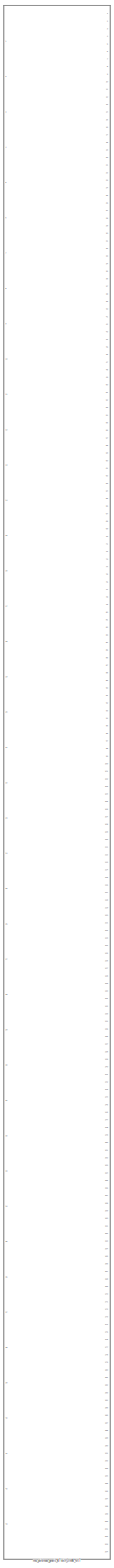
[diagram: root canvas - part 1/1, most of the canvas]
MODEL slx_9e87dc0860f8
KIND library
CONFIG AbsTol = auto
CONFIG FixedStep = auto
CONFIG MaxStep = auto
CONFIG MinStep = auto
CONFIG RelTol = 1e-3
CONFIG SampleTimeConstraint = Unconstrained
CONFIG Solver = ode45
CONFIG SolverMode = SingleTasking
CONFIG SolverName = ode45
CONFIG StartTime = 0.0
CONFIG StopTime = 10.0
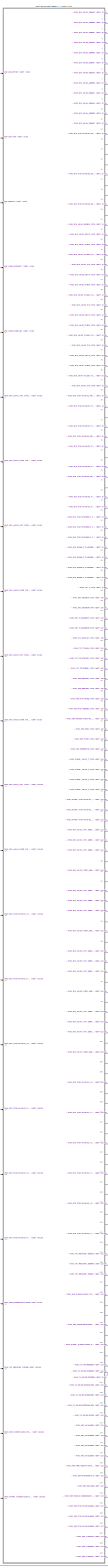
[diagram: mec_pointmass_generic_ATvoith_DIWA_NXT  - part 1/18, right side, full height]
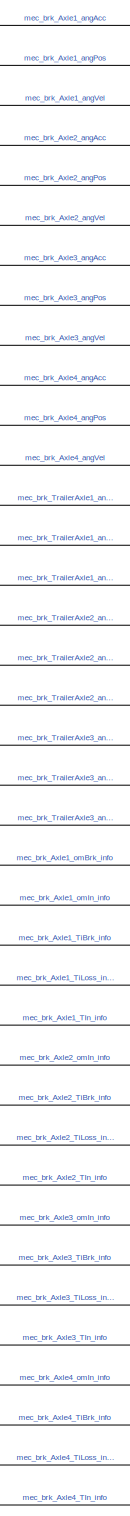
[diagram: mec_pointmass_generic_ATvoith_DIWA_NXT  - part 2/18, top right region]
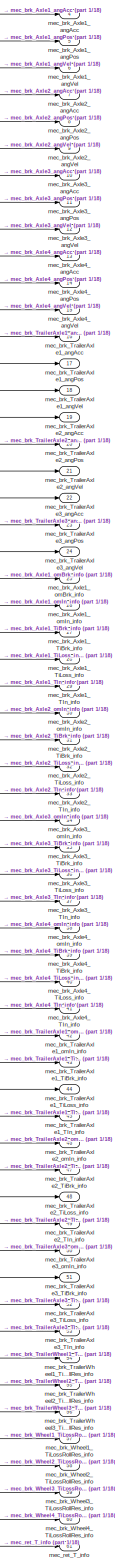
[diagram: mec_pointmass_generic_ATvoith_DIWA_NXT  - part 3/18, top right region]
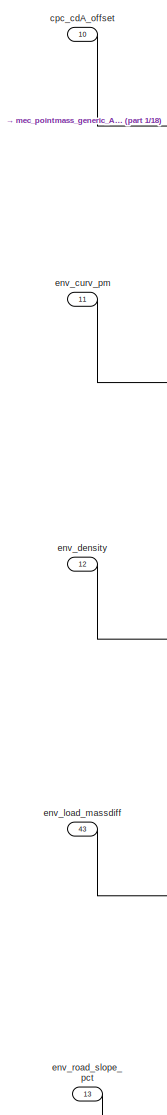
[diagram: mec_pointmass_generic_ATvoith_DIWA_NXT  - part 4/18, top center region]
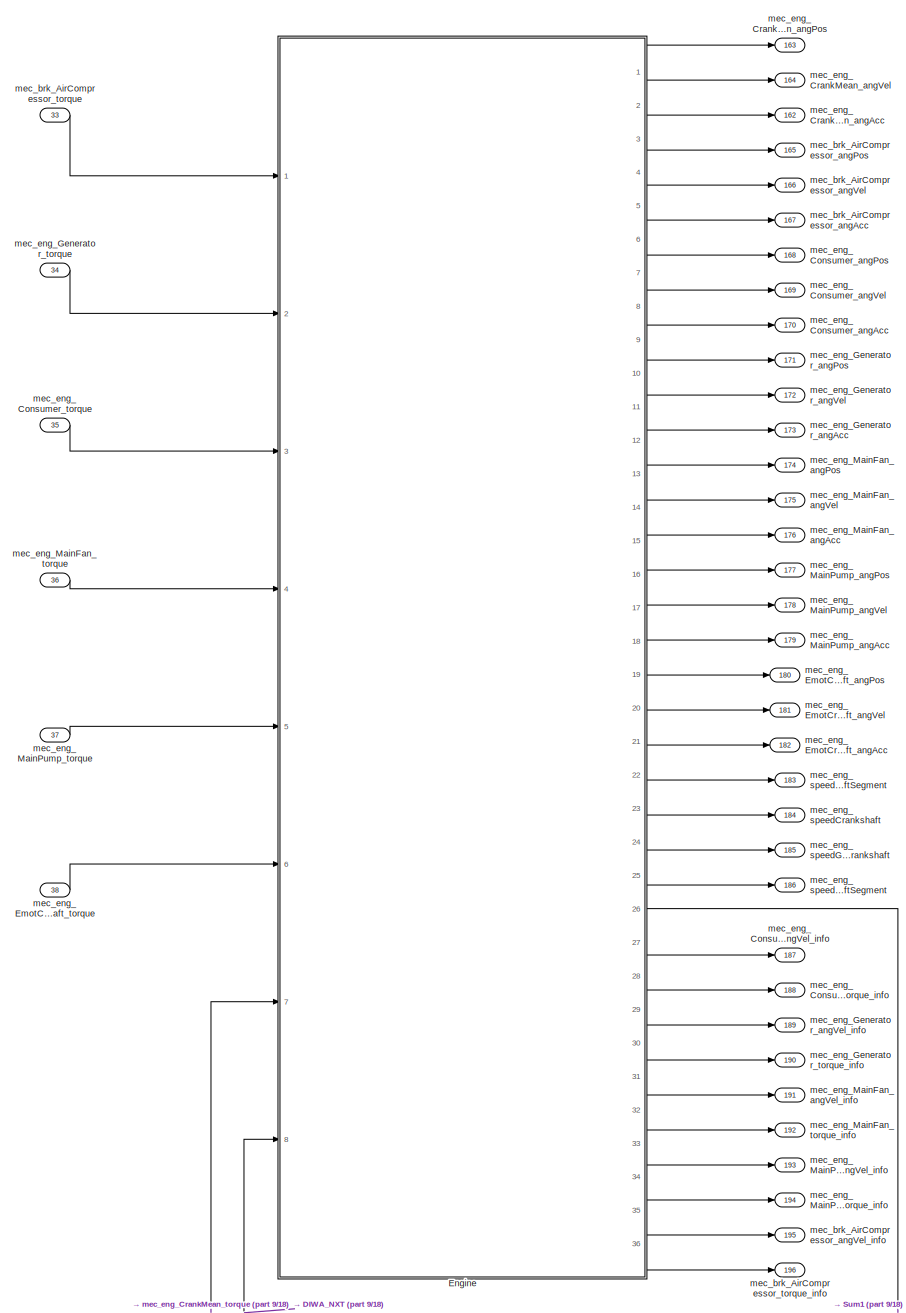
[diagram: mec_pointmass_generic_ATvoith_DIWA_NXT  - part 5/18, top center region]
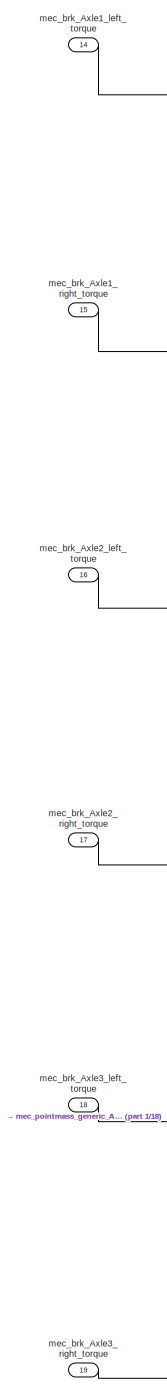
[diagram: mec_pointmass_generic_ATvoith_DIWA_NXT  - part 6/18, central region]
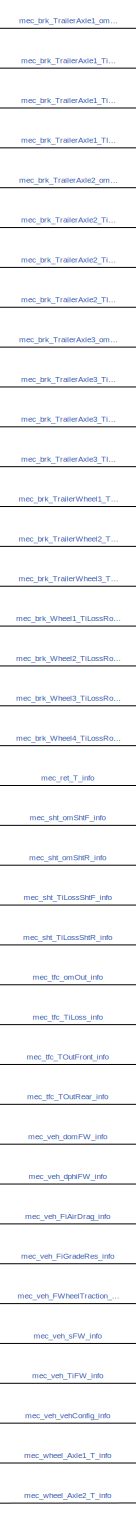
[diagram: mec_pointmass_generic_ATvoith_DIWA_NXT  - part 7/18, middle right region]
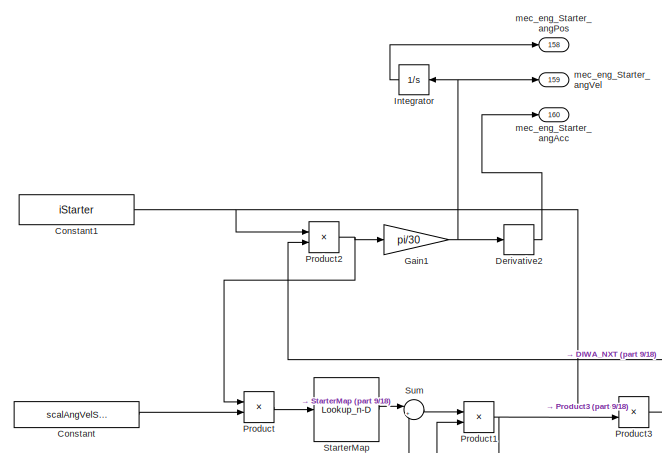
[diagram: mec_pointmass_generic_ATvoith_DIWA_NXT  - part 8/18, middle left region]
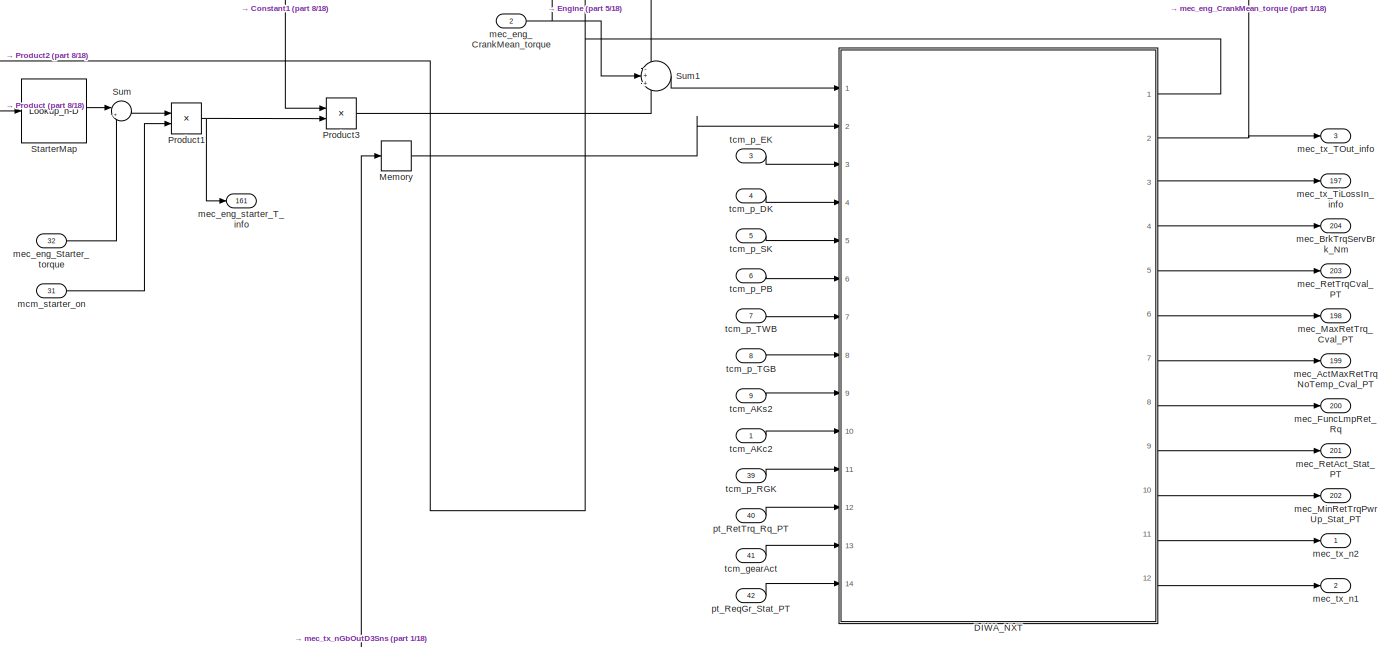
[diagram: mec_pointmass_generic_ATvoith_DIWA_NXT  - part 9/18, middle left region]
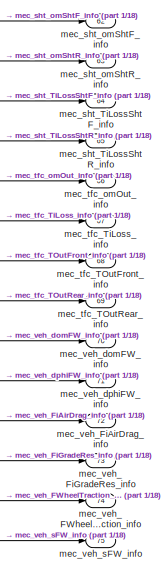
[diagram: mec_pointmass_generic_ATvoith_DIWA_NXT  - part 10/18, middle right region]
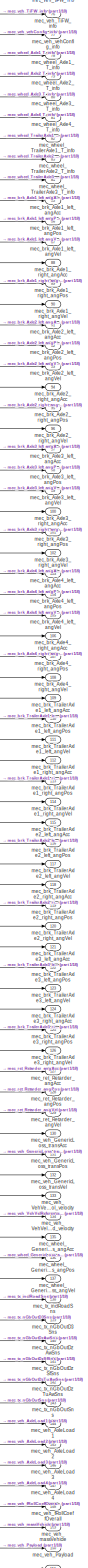
[diagram: mec_pointmass_generic_ATvoith_DIWA_NXT  - part 11/18, bottom right region]
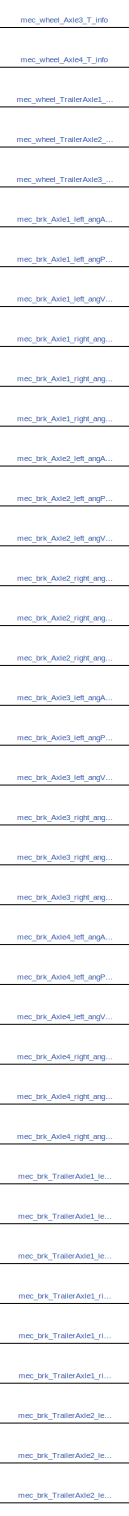
[diagram: mec_pointmass_generic_ATvoith_DIWA_NXT  - part 12/18, middle right region]
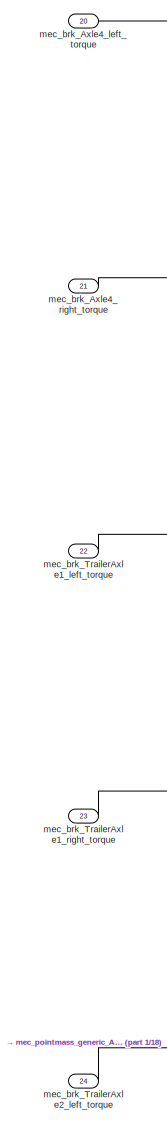
[diagram: mec_pointmass_generic_ATvoith_DIWA_NXT  - part 13/18, central region]
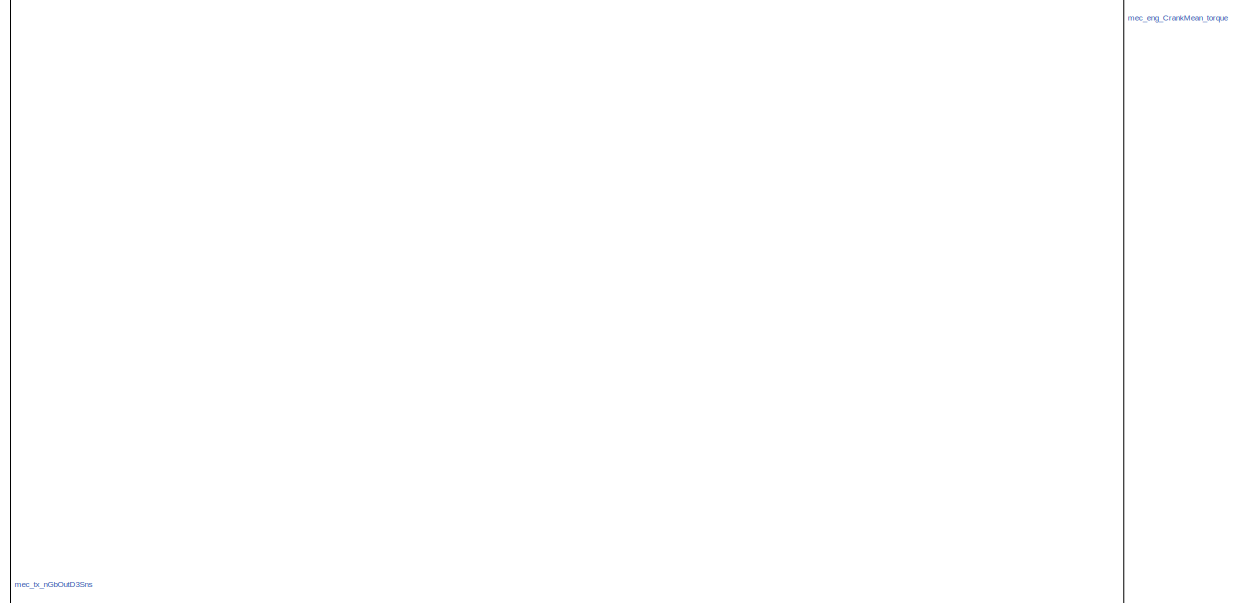
[diagram: mec_pointmass_generic_ATvoith_DIWA_NXT  - part 14/18, central region]
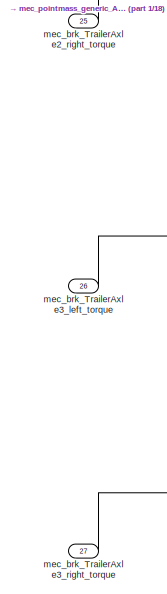
[diagram: mec_pointmass_generic_ATvoith_DIWA_NXT  - part 15/18, bottom center region]
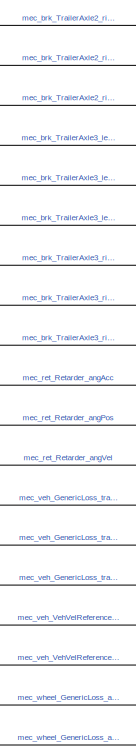
[diagram: mec_pointmass_generic_ATvoith_DIWA_NXT  - part 16/18, bottom right region]
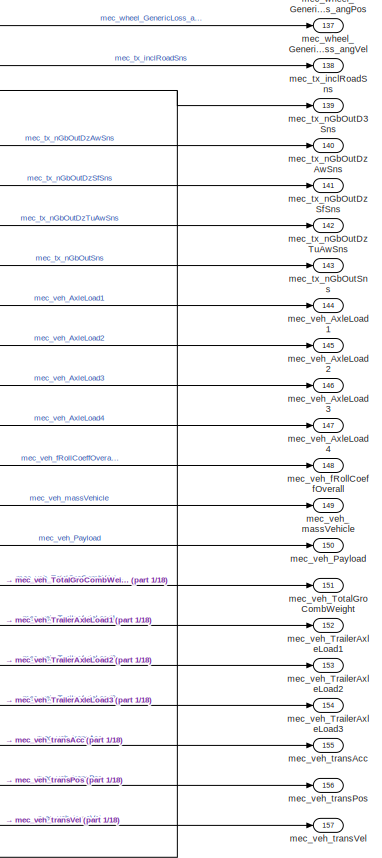
[diagram: mec_pointmass_generic_ATvoith_DIWA_NXT  - part 17/18, bottom right region]
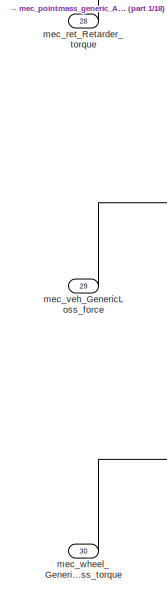
[diagram: mec_pointmass_generic_ATvoith_DIWA_NXT  - part 18/18, bottom center region]
BLOCK [SubSystem] mec_pointmass_generic_ATvoith_DIWA_NXT 
  Ports = [43, 204]
  RequestExecContextInheritance = off
  Variant = off
BLOCK [Constant] mec_pointmass_generic_ATvoith_DIWA_NXT /Constant
  Value = scalAngVelStarter
BLOCK [Constant] mec_pointmass_generic_ATvoith_DIWA_NXT /Constant1
  Value = iStarter
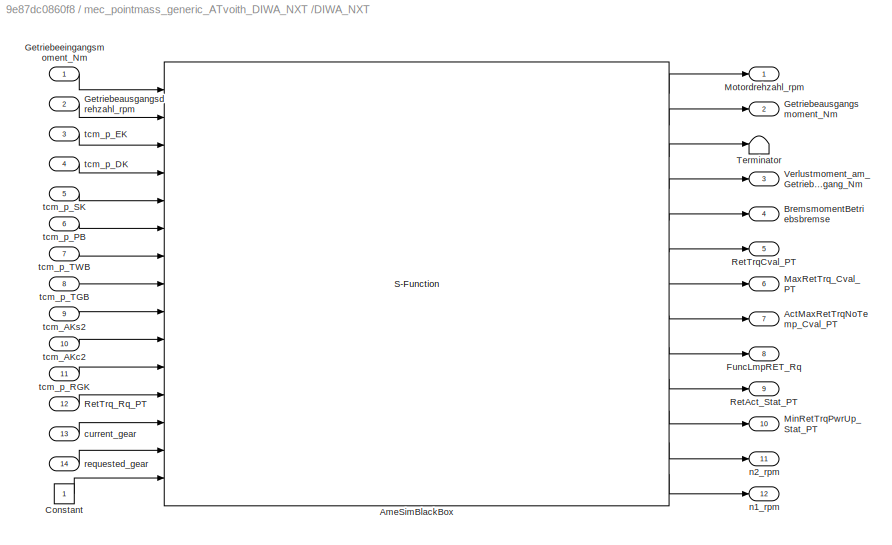
BLOCK [SubSystem] mec_pointmass_generic_ATvoith_DIWA_NXT /DIWA_NXT
  Ports = [14, 12]
  RequestExecContextInheritance = off
  Variant = off
BLOCK [Outport] mec_pointmass_generic_ATvoith_DIWA_NXT /DIWA_NXT/ActMaxRetTrqNoTemp_Cval_PT
  IconDisplay = Port number
  Port = 7
BLOCK [S-Function] mec_pointmass_generic_ATvoith_DIWA_NXT /DIWA_NXT/AmeSimBlackBox
  EnableBusSupport = off
  FunctionName = BB_DIWA_NXT_Mech_Daimler_2024_09_17
  Parameters = [1 0.01],DIWA_BB_ParNames,DIWA_BB_ParValues
  Ports = [15, 13]
  SFunctionDeploymentMode = off
BLOCK [Outport] mec_pointmass_generic_ATvoith_DIWA_NXT /DIWA_NXT/BremsmomentBetriebsbremse
  IconDisplay = Port number
  Port = 4
BLOCK [Constant] mec_pointmass_generic_ATvoith_DIWA_NXT /DIWA_NXT/Constant
BLOCK [Outport] mec_pointmass_generic_ATvoith_DIWA_NXT /DIWA_NXT/FuncLmpRET_Rq
  IconDisplay = Port number
  Port = 8
BLOCK [Inport] mec_pointmass_generic_ATvoith_DIWA_NXT /DIWA_NXT/Getriebeausgangsdrehzahl_rpm
  IconDisplay = Port number
  Port = 2
BLOCK [Outport] mec_pointmass_generic_ATvoith_DIWA_NXT /DIWA_NXT/Getriebeausgangsmoment_Nm
  IconDisplay = Port number
  Port = 2
BLOCK [Inport] mec_pointmass_generic_ATvoith_DIWA_NXT /DIWA_NXT/Getriebeeingangsmoment_Nm
  IconDisplay = Port number
BLOCK [Outport] mec_pointmass_generic_ATvoith_DIWA_NXT /DIWA_NXT/MaxRetTrq_Cval_PT
  IconDisplay = Port number
  Port = 6
BLOCK [Outport] mec_pointmass_generic_ATvoith_DIWA_NXT /DIWA_NXT/MinRetTrqPwrUp_Stat_PT
  IconDisplay = Port number
  Port = 10
BLOCK [Outport] mec_pointmass_generic_ATvoith_DIWA_NXT /DIWA_NXT/Motordrehzahl_rpm
  IconDisplay = Port number
BLOCK [Outport] mec_pointmass_generic_ATvoith_DIWA_NXT /DIWA_NXT/RetAct_Stat_PT
  IconDisplay = Port number
  Port = 9
BLOCK [Outport] mec_pointmass_generic_ATvoith_DIWA_NXT /DIWA_NXT/RetTrqCval_PT
  IconDisplay = Port number
  Port = 5
BLOCK [Inport] mec_pointmass_generic_ATvoith_DIWA_NXT /DIWA_NXT/RetTrq_Rq_PT
  IconDisplay = Port number
  Port = 12
BLOCK [Terminator] mec_pointmass_generic_ATvoith_DIWA_NXT /DIWA_NXT/Terminator
BLOCK [Outport] mec_pointmass_generic_ATvoith_DIWA_NXT /DIWA_NXT/Verlustmoment_am_Getriebeeingang_Nm
  IconDisplay = Port number
  Port = 3
BLOCK [Inport] mec_pointmass_generic_ATvoith_DIWA_NXT /DIWA_NXT/current_gear
  IconDisplay = Port number
  Port = 13
BLOCK [Outport] mec_pointmass_generic_ATvoith_DIWA_NXT /DIWA_NXT/n1_rpm
  IconDisplay = Port number
  Port = 12
BLOCK [Outport] mec_pointmass_generic_ATvoith_DIWA_NXT /DIWA_NXT/n2_rpm
  IconDisplay = Port number
  Port = 11
BLOCK [Inport] mec_pointmass_generic_ATvoith_DIWA_NXT /DIWA_NXT/requested_gear
  IconDisplay = Port number
  Port = 14
BLOCK [Inport] mec_pointmass_generic_ATvoith_DIWA_NXT /DIWA_NXT/tcm_AKc2
  IconDisplay = Port number
  Port = 10
BLOCK [Inport] mec_pointmass_generic_ATvoith_DIWA_NXT /DIWA_NXT/tcm_AKs2
  IconDisplay = Port number
  Port = 9
BLOCK [Inport] mec_pointmass_generic_ATvoith_DIWA_NXT /DIWA_NXT/tcm_p_DK
  IconDisplay = Port number
  Port = 4
BLOCK [Inport] mec_pointmass_generic_ATvoith_DIWA_NXT /DIWA_NXT/tcm_p_EK
  IconDisplay = Port number
  Port = 3
BLOCK [Inport] mec_pointmass_generic_ATvoith_DIWA_NXT /DIWA_NXT/tcm_p_PB
  IconDisplay = Port number
  Port = 6
BLOCK [Inport] mec_pointmass_generic_ATvoith_DIWA_NXT /DIWA_NXT/tcm_p_RGK
  IconDisplay = Port number
  Port = 11
BLOCK [Inport] mec_pointmass_generic_ATvoith_DIWA_NXT /DIWA_NXT/tcm_p_SK
  IconDisplay = Port number
  Port = 5
BLOCK [Inport] mec_pointmass_generic_ATvoith_DIWA_NXT /DIWA_NXT/tcm_p_TGB
  IconDisplay = Port number
  Port = 8
BLOCK [Inport] mec_pointmass_generic_ATvoith_DIWA_NXT /DIWA_NXT/tcm_p_TWB
  IconDisplay = Port number
  Port = 7
BLOCK [Derivative] mec_pointmass_generic_ATvoith_DIWA_NXT /Derivative2
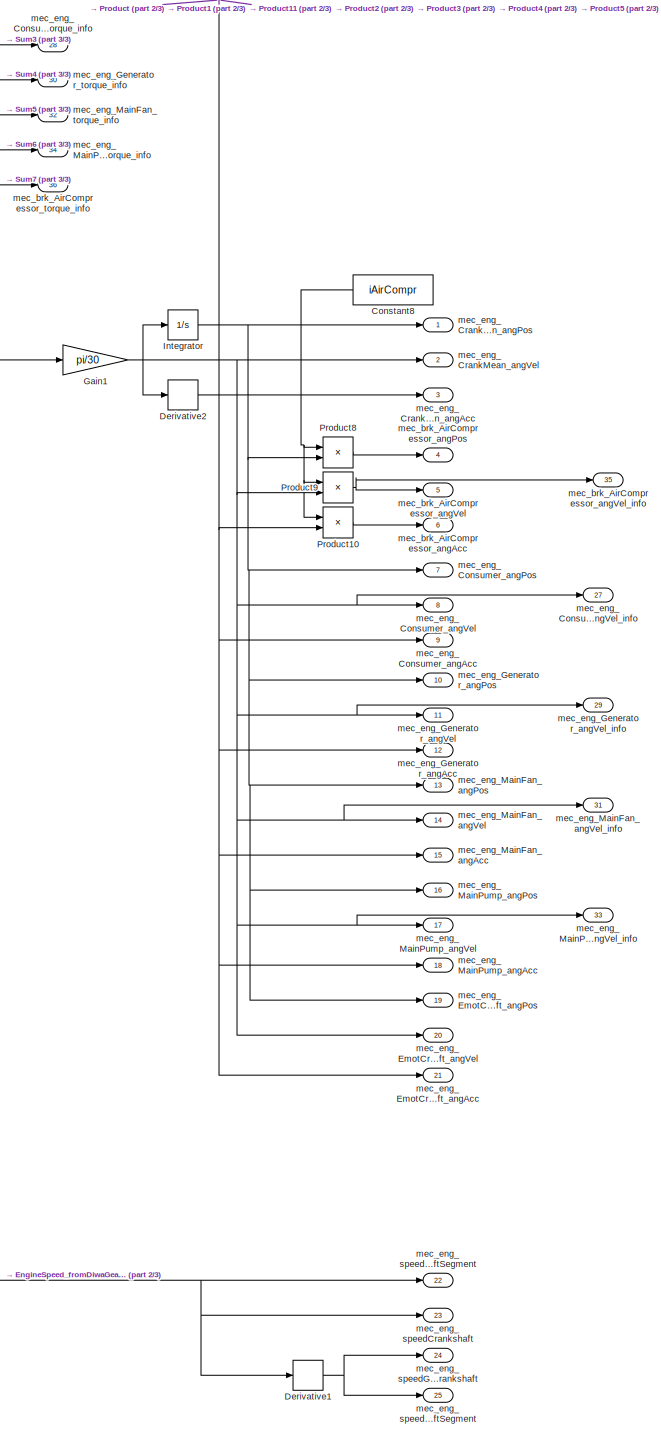
[diagram: mec_pointmass_generic_ATvoith_DIWA_NXT /Engine - part 1/3, right side, full height]
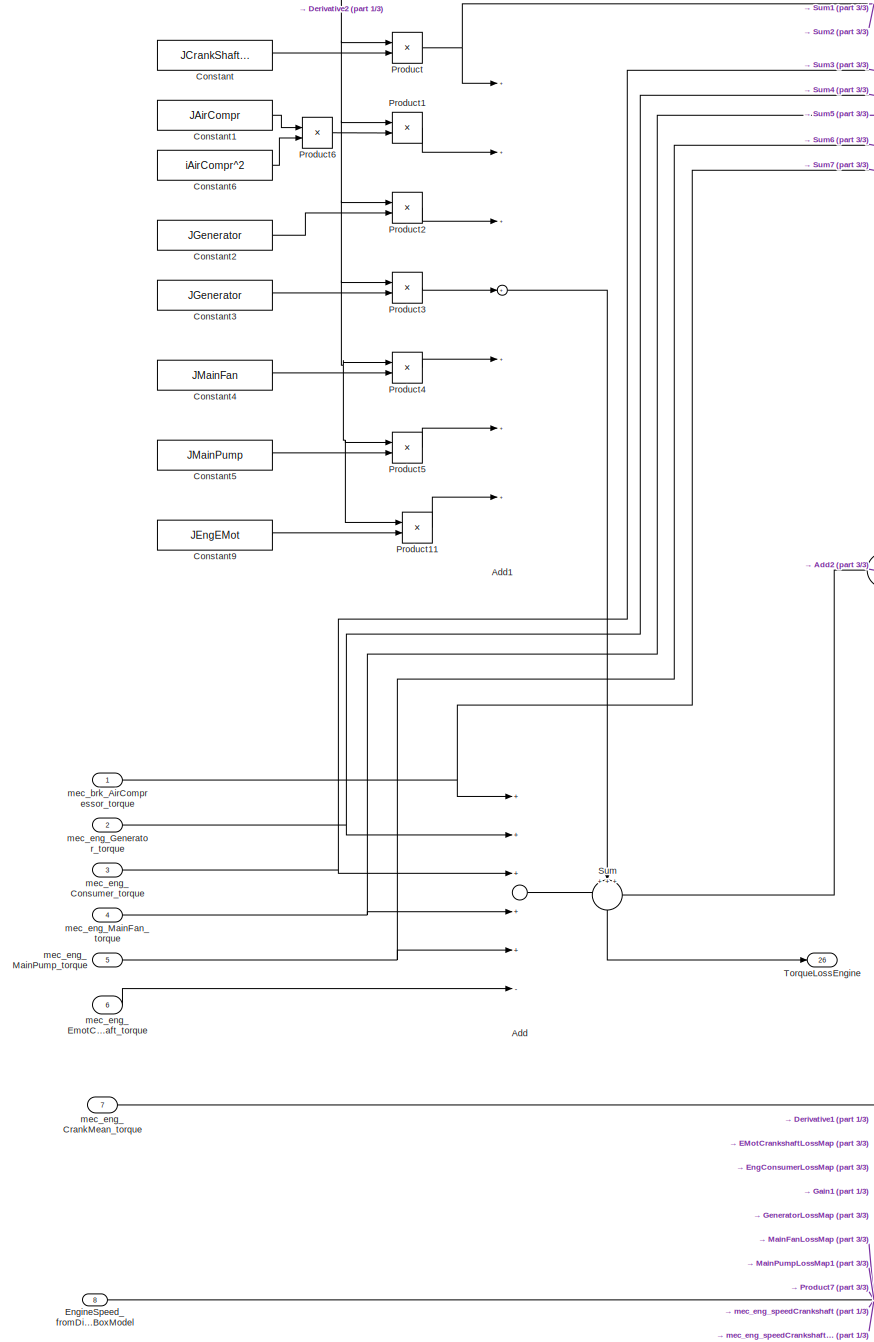
[diagram: mec_pointmass_generic_ATvoith_DIWA_NXT /Engine - part 2/3, left side, full height]
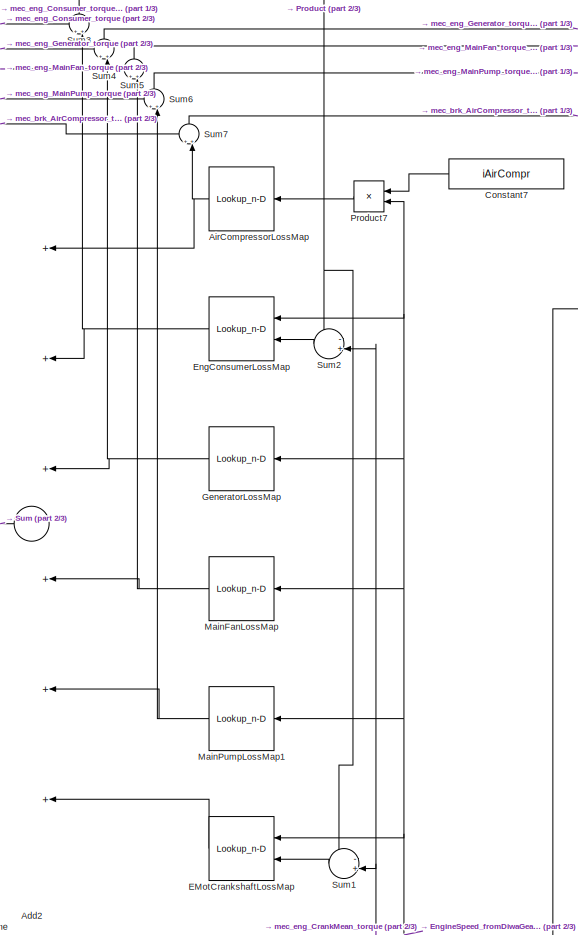
[diagram: mec_pointmass_generic_ATvoith_DIWA_NXT /Engine - part 3/3, central region]
BLOCK [SubSystem] mec_pointmass_generic_ATvoith_DIWA_NXT /Engine
  Ports = [8, 36]
  RequestExecContextInheritance = off
  Variant = off
BLOCK [Sum] mec_pointmass_generic_ATvoith_DIWA_NXT /Engine/Add
  InputSameDT = off
  Inputs = +++++-
  OutDataTypeStr = Inherit: Inherit via internal rule
  Ports = [6, 1]
  SaturateOnIntegerOverflow = off
BLOCK [Sum] mec_pointmass_generic_ATvoith_DIWA_NXT /Engine/Add1
  InputSameDT = off
  Inputs = +++++++
  OutDataTypeStr = Inherit: Inherit via internal rule
  Ports = [7, 1]
  SaturateOnIntegerOverflow = off
BLOCK [Sum] mec_pointmass_generic_ATvoith_DIWA_NXT /Engine/Add2
  InputSameDT = off
  Inputs = ++++++
  OutDataTypeStr = Inherit: Inherit via internal rule
  Ports = [6, 1]
  SaturateOnIntegerOverflow = off
BLOCK [Lookup_n-D] mec_pointmass_generic_ATvoith_DIWA_NXT /Engine/AirCompressorLossMap
  BreakpointsForDimension1 = airComprLoss_x_speed_rpm
  InternalRulePriority = Speed
  NumberOfTableDimensions = 1
  Ports = [1, 1]
  RndMeth = Simplest
  Table = airComprLoss_map_lossTorque_Nm
BLOCK [Constant] mec_pointmass_generic_ATvoith_DIWA_NXT /Engine/Constant
  Value = JCrankShaft_kgm2
BLOCK [Constant] mec_pointmass_generic_ATvoith_DIWA_NXT /Engine/Constant1
  Value = JAirCompr
BLOCK [Constant] mec_pointmass_generic_ATvoith_DIWA_NXT /Engine/Constant2
  Value = JGenerator
BLOCK [Constant] mec_pointmass_generic_ATvoith_DIWA_NXT /Engine/Constant3
  Value = JGenerator
BLOCK [Constant] mec_pointmass_generic_ATvoith_DIWA_NXT /Engine/Constant4
  Value = JMainFan
BLOCK [Constant] mec_pointmass_generic_ATvoith_DIWA_NXT /Engine/Constant5
  Value = JMainPump
BLOCK [Constant] mec_pointmass_generic_ATvoith_DIWA_NXT /Engine/Constant6
  Value = iAirCompr^2
BLOCK [Constant] mec_pointmass_generic_ATvoith_DIWA_NXT /Engine/Constant7
  Value = iAirCompr
BLOCK [Constant] mec_pointmass_generic_ATvoith_DIWA_NXT /Engine/Constant8
  Value = iAirCompr
BLOCK [Constant] mec_pointmass_generic_ATvoith_DIWA_NXT /Engine/Constant9
  Value = JEngEMot
BLOCK [Derivative] mec_pointmass_generic_ATvoith_DIWA_NXT /Engine/Derivative1
BLOCK [Derivative] mec_pointmass_generic_ATvoith_DIWA_NXT /Engine/Derivative2
BLOCK [Lookup_n-D] mec_pointmass_generic_ATvoith_DIWA_NXT /Engine/EMotCrankshaftLossMap
  BreakpointsForDimension1 = engEMotLoss_x_speed_rpm
  BreakpointsForDimension2 = engEMotLoss_y_torque_Nm
  InternalRulePriority = Speed
  Ports = [2, 1]
  RndMeth = Simplest
  Table = engEMotLoss_map_lossTorque_Nm
BLOCK [Lookup_n-D] mec_pointmass_generic_ATvoith_DIWA_NXT /Engine/EngConsumerLossMap
  BreakpointsForDimension1 = engConsumerLoss_x_speed_rpm
  BreakpointsForDimension2 = engConsumerLoss_y_torque_Nm
  InternalRulePriority = Speed
  Ports = [2, 1]
  RndMeth = Simplest
  Table = engConsumerLoss_map_lossTorque_Nm
BLOCK [Inport] mec_pointmass_generic_ATvoith_DIWA_NXT /Engine/EngineSpeed_fromDiwaGearBoxModel
  IconDisplay = Port number
  Port = 8
BLOCK [Gain] mec_pointmass_generic_ATvoith_DIWA_NXT /Engine/Gain1
  Gain = pi/30
  OutDataTypeStr = Inherit: Inherit via internal rule
  ParamDataTypeStr = Inherit: Inherit via internal rule
  SaturateOnIntegerOverflow = off
BLOCK [Lookup_n-D] mec_pointmass_generic_ATvoith_DIWA_NXT /Engine/GeneratorLossMap
  BreakpointsForDimension1 = generatorLoss_x_speed_rpm
  InternalRulePriority = Speed
  NumberOfTableDimensions = 1
  Ports = [1, 1]
  RndMeth = Simplest
  Table = generatorLoss_map_lossTorque_Nm
BLOCK [Integrator] mec_pointmass_generic_ATvoith_DIWA_NXT /Engine/Integrator
  Ports = [1, 1]
BLOCK [Lookup_n-D] mec_pointmass_generic_ATvoith_DIWA_NXT /Engine/MainFanLossMap
  BreakpointsForDimension1 = mainFanLoss_x_speed_rpm
  InternalRulePriority = Speed
  NumberOfTableDimensions = 1
  Ports = [1, 1]
  RndMeth = Simplest
  Table = mainFanLoss_map_lossTorque_Nm
BLOCK [Lookup_n-D] mec_pointmass_generic_ATvoith_DIWA_NXT /Engine/MainPumpLossMap1
  BreakpointsForDimension1 = mainPumpLoss_x_speed_rpm
  InternalRulePriority = Speed
  NumberOfTableDimensions = 1
  Ports = [1, 1]
  RndMeth = Simplest
  Table = mainPumpLoss_map_lossTorque_Nm
BLOCK [Product] mec_pointmass_generic_ATvoith_DIWA_NXT /Engine/Product
  InputSameDT = off
  OutDataTypeStr = Inherit: Inherit via internal rule
  Ports = [2, 1]
  RndMeth = Floor
  SaturateOnIntegerOverflow = off
BLOCK [Product] mec_pointmass_generic_ATvoith_DIWA_NXT /Engine/Product1
  InputSameDT = off
  OutDataTypeStr = Inherit: Inherit via internal rule
  Ports = [2, 1]
  RndMeth = Floor
  SaturateOnIntegerOverflow = off
BLOCK [Product] mec_pointmass_generic_ATvoith_DIWA_NXT /Engine/Product10
  InputSameDT = off
  OutDataTypeStr = Inherit: Inherit via internal rule
  Ports = [2, 1]
  RndMeth = Floor
  SaturateOnIntegerOverflow = off
BLOCK [Product] mec_pointmass_generic_ATvoith_DIWA_NXT /Engine/Product11
  InputSameDT = off
  OutDataTypeStr = Inherit: Inherit via internal rule
  Ports = [2, 1]
  RndMeth = Floor
  SaturateOnIntegerOverflow = off
BLOCK [Product] mec_pointmass_generic_ATvoith_DIWA_NXT /Engine/Product2
  InputSameDT = off
  OutDataTypeStr = Inherit: Inherit via internal rule
  Ports = [2, 1]
  RndMeth = Floor
  SaturateOnIntegerOverflow = off
BLOCK [Product] mec_pointmass_generic_ATvoith_DIWA_NXT /Engine/Product3
  InputSameDT = off
  OutDataTypeStr = Inherit: Inherit via internal rule
  Ports = [2, 1]
  RndMeth = Floor
  SaturateOnIntegerOverflow = off
BLOCK [Product] mec_pointmass_generic_ATvoith_DIWA_NXT /Engine/Product4
  InputSameDT = off
  OutDataTypeStr = Inherit: Inherit via internal rule
  Ports = [2, 1]
  RndMeth = Floor
  SaturateOnIntegerOverflow = off
BLOCK [Product] mec_pointmass_generic_ATvoith_DIWA_NXT /Engine/Product5
  InputSameDT = off
  OutDataTypeStr = Inherit: Inherit via internal rule
  Ports = [2, 1]
  RndMeth = Floor
  SaturateOnIntegerOverflow = off
BLOCK [Product] mec_pointmass_generic_ATvoith_DIWA_NXT /Engine/Product6
  InputSameDT = off
  OutDataTypeStr = Inherit: Inherit via internal rule
  Ports = [2, 1]
  RndMeth = Floor
  SaturateOnIntegerOverflow = off
BLOCK [Product] mec_pointmass_generic_ATvoith_DIWA_NXT /Engine/Product7
  InputSameDT = off
  OutDataTypeStr = Inherit: Inherit via internal rule
  Ports = [2, 1]
  RndMeth = Floor
  SaturateOnIntegerOverflow = off
BLOCK [Product] mec_pointmass_generic_ATvoith_DIWA_NXT /Engine/Product8
  InputSameDT = off
  OutDataTypeStr = Inherit: Inherit via internal rule
  Ports = [2, 1]
  RndMeth = Floor
  SaturateOnIntegerOverflow = off
BLOCK [Product] mec_pointmass_generic_ATvoith_DIWA_NXT /Engine/Product9
  InputSameDT = off
  OutDataTypeStr = Inherit: Inherit via internal rule
  Ports = [2, 1]
  RndMeth = Floor
  SaturateOnIntegerOverflow = off
BLOCK [Sum] mec_pointmass_generic_ATvoith_DIWA_NXT /Engine/Sum
  IconShape = round
  InputSameDT = off
  Inputs = +++
  OutDataTypeStr = Inherit: Inherit via internal rule
  Ports = [3, 1]
  SaturateOnIntegerOverflow = off
BLOCK [Sum] mec_pointmass_generic_ATvoith_DIWA_NXT /Engine/Sum1
  IconShape = round
  InputSameDT = off
  Inputs = -+|
  OutDataTypeStr = Inherit: Inherit via internal rule
  Ports = [2, 1]
  SaturateOnIntegerOverflow = off
BLOCK [Sum] mec_pointmass_generic_ATvoith_DIWA_NXT /Engine/Sum2
  IconShape = round
  InputSameDT = off
  Inputs = -+|
  OutDataTypeStr = Inherit: Inherit via internal rule
  Ports = [2, 1]
  SaturateOnIntegerOverflow = off
BLOCK [Sum] mec_pointmass_generic_ATvoith_DIWA_NXT /Engine/Sum3
  IconShape = round
  InputSameDT = off
  Inputs = ++|
  OutDataTypeStr = Inherit: Inherit via internal rule
  Ports = [2, 1]
  SaturateOnIntegerOverflow = off
BLOCK [Sum] mec_pointmass_generic_ATvoith_DIWA_NXT /Engine/Sum4
  IconShape = round
  InputSameDT = off
  Inputs = ++|
  OutDataTypeStr = Inherit: Inherit via internal rule
  Ports = [2, 1]
  SaturateOnIntegerOverflow = off
BLOCK [Sum] mec_pointmass_generic_ATvoith_DIWA_NXT /Engine/Sum5
  IconShape = round
  InputSameDT = off
  Inputs = ++|
  OutDataTypeStr = Inherit: Inherit via internal rule
  Ports = [2, 1]
  SaturateOnIntegerOverflow = off
BLOCK [Sum] mec_pointmass_generic_ATvoith_DIWA_NXT /Engine/Sum6
  IconShape = round
  InputSameDT = off
  Inputs = ++|
  OutDataTypeStr = Inherit: Inherit via internal rule
  Ports = [2, 1]
  SaturateOnIntegerOverflow = off
BLOCK [Sum] mec_pointmass_generic_ATvoith_DIWA_NXT /Engine/Sum7
  IconShape = round
  InputSameDT = off
  Inputs = ++|
  OutDataTypeStr = Inherit: Inherit via internal rule
  Ports = [2, 1]
  SaturateOnIntegerOverflow = off
BLOCK [Outport] mec_pointmass_generic_ATvoith_DIWA_NXT /Engine/TorqueLossEngine
  IconDisplay = Port number
  Port = 26
BLOCK [Outport] mec_pointmass_generic_ATvoith_DIWA_NXT /Engine/mec_brk_AirCompressor_angAcc
  IconDisplay = Port number
  Port = 6
BLOCK [Outport] mec_pointmass_generic_ATvoith_DIWA_NXT /Engine/mec_brk_AirCompressor_angPos
  IconDisplay = Port number
  Port = 4
BLOCK [Outport] mec_pointmass_generic_ATvoith_DIWA_NXT /Engine/mec_brk_AirCompressor_angVel
  IconDisplay = Port number
  Port = 5
BLOCK [Outport] mec_pointmass_generic_ATvoith_DIWA_NXT /Engine/mec_brk_AirCompressor_angVel_info
  IconDisplay = Port number
  Port = 35
BLOCK [Inport] mec_pointmass_generic_ATvoith_DIWA_NXT /Engine/mec_brk_AirCompressor_torque
  IconDisplay = Port number
BLOCK [Outport] mec_pointmass_generic_ATvoith_DIWA_NXT /Engine/mec_brk_AirCompressor_torque_info
  IconDisplay = Port number
  Port = 36
BLOCK [Outport] mec_pointmass_generic_ATvoith_DIWA_NXT /Engine/mec_eng_Consumer_angAcc
  IconDisplay = Port number
  Port = 9
BLOCK [Outport] mec_pointmass_generic_ATvoith_DIWA_NXT /Engine/mec_eng_Consumer_angPos
  IconDisplay = Port number
  Port = 7
BLOCK [Outport] mec_pointmass_generic_ATvoith_DIWA_NXT /Engine/mec_eng_Consumer_angVel
  IconDisplay = Port number
  Port = 8
BLOCK [Outport] mec_pointmass_generic_ATvoith_DIWA_NXT /Engine/mec_eng_Consumer_angVel_info
  IconDisplay = Port number
  Port = 27
BLOCK [Inport] mec_pointmass_generic_ATvoith_DIWA_NXT /Engine/mec_eng_Consumer_torque
  IconDisplay = Port number
  Port = 3
BLOCK [Outport] mec_pointmass_generic_ATvoith_DIWA_NXT /Engine/mec_eng_Consumer_torque_info
  IconDisplay = Port number
  Port = 28
BLOCK [Outport] mec_pointmass_generic_ATvoith_DIWA_NXT /Engine/mec_eng_CrankMean_angAcc
  IconDisplay = Port number
  Port = 3
BLOCK [Outport] mec_pointmass_generic_ATvoith_DIWA_NXT /Engine/mec_eng_CrankMean_angPos
  IconDisplay = Port number
BLOCK [Outport] mec_pointmass_generic_ATvoith_DIWA_NXT /Engine/mec_eng_CrankMean_angVel
  IconDisplay = Port number
  Port = 2
BLOCK [Inport] mec_pointmass_generic_ATvoith_DIWA_NXT /Engine/mec_eng_CrankMean_torque
  IconDisplay = Port number
  Port = 7
BLOCK [Outport] mec_pointmass_generic_ATvoith_DIWA_NXT /Engine/mec_eng_EmotCrankshaft_angAcc
  IconDisplay = Port number
  Port = 21
BLOCK [Outport] mec_pointmass_generic_ATvoith_DIWA_NXT /Engine/mec_eng_EmotCrankshaft_angPos
  IconDisplay = Port number
  Port = 19
BLOCK [Outport] mec_pointmass_generic_ATvoith_DIWA_NXT /Engine/mec_eng_EmotCrankshaft_angVel
  IconDisplay = Port number
  Port = 20
BLOCK [Inport] mec_pointmass_generic_ATvoith_DIWA_NXT /Engine/mec_eng_EmotCrankshaft_torque
  IconDisplay = Port number
  Port = 6
BLOCK [Outport] mec_pointmass_generic_ATvoith_DIWA_NXT /Engine/mec_eng_Generator_angAcc
  IconDisplay = Port number
  Port = 12
BLOCK [Outport] mec_pointmass_generic_ATvoith_DIWA_NXT /Engine/mec_eng_Generator_angPos
  IconDisplay = Port number
  Port = 10
BLOCK [Outport] mec_pointmass_generic_ATvoith_DIWA_NXT /Engine/mec_eng_Generator_angVel
  IconDisplay = Port number
  Port = 11
BLOCK [Outport] mec_pointmass_generic_ATvoith_DIWA_NXT /Engine/mec_eng_Generator_angVel_info
  IconDisplay = Port number
  Port = 29
BLOCK [Inport] mec_pointmass_generic_ATvoith_DIWA_NXT /Engine/mec_eng_Generator_torque
  IconDisplay = Port number
  Port = 2
BLOCK [Outport] mec_pointmass_generic_ATvoith_DIWA_NXT /Engine/mec_eng_Generator_torque_info
  IconDisplay = Port number
  Port = 30
BLOCK [Outport] mec_pointmass_generic_ATvoith_DIWA_NXT /Engine/mec_eng_MainFan_angAcc
  IconDisplay = Port number
  Port = 15
BLOCK [Outport] mec_pointmass_generic_ATvoith_DIWA_NXT /Engine/mec_eng_MainFan_angPos
  IconDisplay = Port number
  Port = 13
BLOCK [Outport] mec_pointmass_generic_ATvoith_DIWA_NXT /Engine/mec_eng_MainFan_angVel
  IconDisplay = Port number
  Port = 14
BLOCK [Outport] mec_pointmass_generic_ATvoith_DIWA_NXT /Engine/mec_eng_MainFan_angVel_info
  IconDisplay = Port number
  Port = 31
BLOCK [Inport] mec_pointmass_generic_ATvoith_DIWA_NXT /Engine/mec_eng_MainFan_torque
  IconDisplay = Port number
  Port = 4
BLOCK [Outport] mec_pointmass_generic_ATvoith_DIWA_NXT /Engine/mec_eng_MainFan_torque_info
  IconDisplay = Port number
  Port = 32
BLOCK [Outport] mec_pointmass_generic_ATvoith_DIWA_NXT /Engine/mec_eng_MainPump_angAcc
  IconDisplay = Port number
  Port = 18
BLOCK [Outport] mec_pointmass_generic_ATvoith_DIWA_NXT /Engine/mec_eng_MainPump_angPos
  IconDisplay = Port number
  Port = 16
BLOCK [Outport] mec_pointmass_generic_ATvoith_DIWA_NXT /Engine/mec_eng_MainPump_angVel
  IconDisplay = Port number
  Port = 17
BLOCK [Outport] mec_pointmass_generic_ATvoith_DIWA_NXT /Engine/mec_eng_MainPump_angVel_info
  IconDisplay = Port number
  Port = 33
BLOCK [Inport] mec_pointmass_generic_ATvoith_DIWA_NXT /Engine/mec_eng_MainPump_torque
  IconDisplay = Port number
  Port = 5
BLOCK [Outport] mec_pointmass_generic_ATvoith_DIWA_NXT /Engine/mec_eng_MainPump_torque_info
  IconDisplay = Port number
  Port = 34
BLOCK [Outport] mec_pointmass_generic_ATvoith_DIWA_NXT /Engine/mec_eng_speedCrankshaft
  IconDisplay = Port number
  Port = 23
BLOCK [Outport] mec_pointmass_generic_ATvoith_DIWA_NXT /Engine/mec_eng_speedCrankshaftSegment
  IconDisplay = Port number
  Port = 22
BLOCK [Outport] mec_pointmass_generic_ATvoith_DIWA_NXT /Engine/mec_eng_speedGradCrankshaft
  IconDisplay = Port number
  Port = 24
BLOCK [Outport] mec_pointmass_generic_ATvoith_DIWA_NXT /Engine/mec_eng_speedGradCrankshaftSegment
  IconDisplay = Port number
  Port = 25
BLOCK [Gain] mec_pointmass_generic_ATvoith_DIWA_NXT /Gain1
  Gain = pi/30
  OutDataTypeStr = Inherit: Inherit via internal rule
  ParamDataTypeStr = Inherit: Inherit via internal rule
  SaturateOnIntegerOverflow = off
BLOCK [Integrator] mec_pointmass_generic_ATvoith_DIWA_NXT /Integrator
  Ports = [1, 1]
BLOCK [Memory] mec_pointmass_generic_ATvoith_DIWA_NXT /Memory
BLOCK [Product] mec_pointmass_generic_ATvoith_DIWA_NXT /Product
  InputSameDT = off
  OutDataTypeStr = Inherit: Inherit via internal rule
  Ports = [2, 1]
  RndMeth = Floor
  SaturateOnIntegerOverflow = off
BLOCK [Product] mec_pointmass_generic_ATvoith_DIWA_NXT /Product1
  InputSameDT = off
  OutDataTypeStr = Inherit: Inherit via internal rule
  Ports = [2, 1]
  RndMeth = Floor
  SaturateOnIntegerOverflow = off
BLOCK [Product] mec_pointmass_generic_ATvoith_DIWA_NXT /Product2
  InputSameDT = off
  OutDataTypeStr = Inherit: Inherit via internal rule
  Ports = [2, 1]
  RndMeth = Floor
  SaturateOnIntegerOverflow = off
BLOCK [Product] mec_pointmass_generic_ATvoith_DIWA_NXT /Product3
  InputSameDT = off
  OutDataTypeStr = Inherit: Inherit via internal rule
  Ports = [2, 1]
  RndMeth = Floor
  SaturateOnIntegerOverflow = off
BLOCK [Lookup_n-D] mec_pointmass_generic_ATvoith_DIWA_NXT /StarterMap
  BreakpointsForDimension1 = [0,2.7027,64.8648,150.4214,260.724,378.378,520.398,657.98,819.858,982.04,1178.378,1286.486,1430.18,1578.378,1789.894,2054.06,2177.6,2616.22,3124.32,3697.3,3757.62]
  InternalRulePriority = Speed
  NumberOfTableDimensions = 1
  Ports = [1, 1]
  RndMeth = Simplest
  Table = [319.835,318.919,297.838,271.351,244.364,217.585,191.073,165.144,136.757,109.189,82.9584,69.8576,56.7568,44.1906,32.1593,19.8695,15.6757,7.2814,3.27928,0,0]
BLOCK [Sum] mec_pointmass_generic_ATvoith_DIWA_NXT /Sum
  IconShape = round
  InputSameDT = off
  Inputs = |++
  OutDataTypeStr = Inherit: Inherit via internal rule
  Ports = [2, 1]
  SaturateOnIntegerOverflow = off
BLOCK [Sum] mec_pointmass_generic_ATvoith_DIWA_NXT /Sum1
  IconShape = round
  InputSameDT = off
  Inputs = -++
  OutDataTypeStr = Inherit: Inherit via internal rule
  Ports = [3, 1]
  SaturateOnIntegerOverflow = off
BLOCK [Inport] mec_pointmass_generic_ATvoith_DIWA_NXT /cpc_cdA_offset
  IconDisplay = Port number
  Port = 10
BLOCK [Inport] mec_pointmass_generic_ATvoith_DIWA_NXT /env_curv_pm
  IconDisplay = Port number
  Port = 11
BLOCK [Inport] mec_pointmass_generic_ATvoith_DIWA_NXT /env_density
  IconDisplay = Port number
  Port = 12
BLOCK [Inport] mec_pointmass_generic_ATvoith_DIWA_NXT /env_load_massdiff
  IconDisplay = Port number
  Port = 43
BLOCK [Inport] mec_pointmass_generic_ATvoith_DIWA_NXT /env_road_slope_pct
  IconDisplay = Port number
  Port = 13
BLOCK [Inport] mec_pointmass_generic_ATvoith_DIWA_NXT /mcm_starter_on
  IconDisplay = Port number
  Port = 31
BLOCK [Outport] mec_pointmass_generic_ATvoith_DIWA_NXT /mec_ActMaxRetTrqNoTemp_Cval_PT
  IconDisplay = Port number
  Port = 199
BLOCK [Outport] mec_pointmass_generic_ATvoith_DIWA_NXT /mec_BrkTrqServBrk_Nm
  IconDisplay = Port number
  Port = 204
BLOCK [Outport] mec_pointmass_generic_ATvoith_DIWA_NXT /mec_FuncLmpRet_Rq
  IconDisplay = Port number
  Port = 200
BLOCK [Outport] mec_pointmass_generic_ATvoith_DIWA_NXT /mec_MaxRetTrq_Cval_PT
  IconDisplay = Port number
  Port = 198
BLOCK [Outport] mec_pointmass_generic_ATvoith_DIWA_NXT /mec_MinRetTrqPwrUp_Stat_PT
  IconDisplay = Port number
  Port = 202
BLOCK [Outport] mec_pointmass_generic_ATvoith_DIWA_NXT /mec_RetAct_Stat_PT
  IconDisplay = Port number
  Port = 201
BLOCK [Outport] mec_pointmass_generic_ATvoith_DIWA_NXT /mec_RetTrqCval_PT
  IconDisplay = Port number
  Port = 203
BLOCK [Outport] mec_pointmass_generic_ATvoith_DIWA_NXT /mec_brk_AirCompressor_angAcc
  IconDisplay = Port number
  Port = 167
BLOCK [Outport] mec_pointmass_generic_ATvoith_DIWA_NXT /mec_brk_AirCompressor_angPos
  IconDisplay = Port number
  Port = 165
BLOCK [Outport] mec_pointmass_generic_ATvoith_DIWA_NXT /mec_brk_AirCompressor_angVel
  IconDisplay = Port number
  Port = 166
BLOCK [Outport] mec_pointmass_generic_ATvoith_DIWA_NXT /mec_brk_AirCompressor_angVel_info
  IconDisplay = Port number
  Port = 195
BLOCK [Inport] mec_pointmass_generic_ATvoith_DIWA_NXT /mec_brk_AirCompressor_torque
  IconDisplay = Port number
  Port = 33
BLOCK [Outport] mec_pointmass_generic_ATvoith_DIWA_NXT /mec_brk_AirCompressor_torque_info
  IconDisplay = Port number
  Port = 196
BLOCK [Outport] mec_pointmass_generic_ATvoith_DIWA_NXT /mec_brk_Axle1_TIn_info
  IconDisplay = Port number
  Port = 29
BLOCK [Outport] mec_pointmass_generic_ATvoith_DIWA_NXT /mec_brk_Axle1_TiBrk_info
  IconDisplay = Port number
  Port = 27
BLOCK [Outport] mec_pointmass_generic_ATvoith_DIWA_NXT /mec_brk_Axle1_TiLoss_info
  IconDisplay = Port number
  Port = 28
BLOCK [Outport] mec_pointmass_generic_ATvoith_DIWA_NXT /mec_brk_Axle1_angAcc
  IconDisplay = Port number
  Port = 4
BLOCK [Outport] mec_pointmass_generic_ATvoith_DIWA_NXT /mec_brk_Axle1_angPos
  IconDisplay = Port number
  Port = 5
BLOCK [Outport] mec_pointmass_generic_ATvoith_DIWA_NXT /mec_brk_Axle1_angVel
  IconDisplay = Port number
  Port = 6
BLOCK [Outport] mec_pointmass_generic_ATvoith_DIWA_NXT /mec_brk_Axle1_left_angAcc
  IconDisplay = Port number
  Port = 85
BLOCK [Outport] mec_pointmass_generic_ATvoith_DIWA_NXT /mec_brk_Axle1_left_angPos
  IconDisplay = Port number
  Port = 86
BLOCK [Outport] mec_pointmass_generic_ATvoith_DIWA_NXT /mec_brk_Axle1_left_angVel
  IconDisplay = Port number
  Port = 87
BLOCK [Inport] mec_pointmass_generic_ATvoith_DIWA_NXT /mec_brk_Axle1_left_torque
  IconDisplay = Port number
  Port = 14
BLOCK [Outport] mec_pointmass_generic_ATvoith_DIWA_NXT /mec_brk_Axle1_omBrk_info
  IconDisplay = Port number
  Port = 25
BLOCK [Outport] mec_pointmass_generic_ATvoith_DIWA_NXT /mec_brk_Axle1_omIn_info
  IconDisplay = Port number
  Port = 26
BLOCK [Outport] mec_pointmass_generic_ATvoith_DIWA_NXT /mec_brk_Axle1_right_angAcc
  IconDisplay = Port number
  Port = 88
BLOCK [Outport] mec_pointmass_generic_ATvoith_DIWA_NXT /mec_brk_Axle1_right_angPos
  IconDisplay = Port number
  Port = 89
BLOCK [Outport] mec_pointmass_generic_ATvoith_DIWA_NXT /mec_brk_Axle1_right_angVel
  IconDisplay = Port number
  Port = 90
BLOCK [Inport] mec_pointmass_generic_ATvoith_DIWA_NXT /mec_brk_Axle1_right_torque
  IconDisplay = Port number
  Port = 15
BLOCK [Outport] mec_pointmass_generic_ATvoith_DIWA_NXT /mec_brk_Axle2_TIn_info
  IconDisplay = Port number
  Port = 33
BLOCK [Outport] mec_pointmass_generic_ATvoith_DIWA_NXT /mec_brk_Axle2_TiBrk_info
  IconDisplay = Port number
  Port = 31
BLOCK [Outport] mec_pointmass_generic_ATvoith_DIWA_NXT /mec_brk_Axle2_TiLoss_info
  IconDisplay = Port number
  Port = 32
BLOCK [Outport] mec_pointmass_generic_ATvoith_DIWA_NXT /mec_brk_Axle2_angAcc
  IconDisplay = Port number
  Port = 7
BLOCK [Outport] mec_pointmass_generic_ATvoith_DIWA_NXT /mec_brk_Axle2_angPos
  IconDisplay = Port number
  Port = 8
BLOCK [Outport] mec_pointmass_generic_ATvoith_DIWA_NXT /mec_brk_Axle2_angVel
  IconDisplay = Port number
  Port = 9
BLOCK [Outport] mec_pointmass_generic_ATvoith_DIWA_NXT /mec_brk_Axle2_left_angAcc
  IconDisplay = Port number
  Port = 91
BLOCK [Outport] mec_pointmass_generic_ATvoith_DIWA_NXT /mec_brk_Axle2_left_angPos
  IconDisplay = Port number
  Port = 92
BLOCK [Outport] mec_pointmass_generic_ATvoith_DIWA_NXT /mec_brk_Axle2_left_angVel
  IconDisplay = Port number
  Port = 93
BLOCK [Inport] mec_pointmass_generic_ATvoith_DIWA_NXT /mec_brk_Axle2_left_torque
  IconDisplay = Port number
  Port = 16
BLOCK [Outport] mec_pointmass_generic_ATvoith_DIWA_NXT /mec_brk_Axle2_omIn_info
  IconDisplay = Port number
  Port = 30
BLOCK [Outport] mec_pointmass_generic_ATvoith_DIWA_NXT /mec_brk_Axle2_right_angAcc
  IconDisplay = Port number
  Port = 94
BLOCK [Outport] mec_pointmass_generic_ATvoith_DIWA_NXT /mec_brk_Axle2_right_angPos
  IconDisplay = Port number
  Port = 95
BLOCK [Outport] mec_pointmass_generic_ATvoith_DIWA_NXT /mec_brk_Axle2_right_angVel
  IconDisplay = Port number
  Port = 96
BLOCK [Inport] mec_pointmass_generic_ATvoith_DIWA_NXT /mec_brk_Axle2_right_torque
  IconDisplay = Port number
  Port = 17
BLOCK [Outport] mec_pointmass_generic_ATvoith_DIWA_NXT /mec_brk_Axle3_TIn_info
  IconDisplay = Port number
  Port = 37
BLOCK [Outport] mec_pointmass_generic_ATvoith_DIWA_NXT /mec_brk_Axle3_TiBrk_info
  IconDisplay = Port number
  Port = 35
BLOCK [Outport] mec_pointmass_generic_ATvoith_DIWA_NXT /mec_brk_Axle3_TiLoss_info
  IconDisplay = Port number
  Port = 36
BLOCK [Outport] mec_pointmass_generic_ATvoith_DIWA_NXT /mec_brk_Axle3_angAcc
  IconDisplay = Port number
  Port = 10
BLOCK [Outport] mec_pointmass_generic_ATvoith_DIWA_NXT /mec_brk_Axle3_angPos
  IconDisplay = Port number
  Port = 11
BLOCK [Outport] mec_pointmass_generic_ATvoith_DIWA_NXT /mec_brk_Axle3_angVel
  IconDisplay = Port number
  Port = 12
BLOCK [Outport] mec_pointmass_generic_ATvoith_DIWA_NXT /mec_brk_Axle3_left_angAcc
  IconDisplay = Port number
  Port = 97
BLOCK [Outport] mec_pointmass_generic_ATvoith_DIWA_NXT /mec_brk_Axle3_left_angPos
  IconDisplay = Port number
  Port = 98
BLOCK [Outport] mec_pointmass_generic_ATvoith_DIWA_NXT /mec_brk_Axle3_left_angVel
  IconDisplay = Port number
  Port = 99
BLOCK [Inport] mec_pointmass_generic_ATvoith_DIWA_NXT /mec_brk_Axle3_left_torque
  IconDisplay = Port number
  Port = 18
BLOCK [Outport] mec_pointmass_generic_ATvoith_DIWA_NXT /mec_brk_Axle3_omIn_info
  IconDisplay = Port number
  Port = 34
BLOCK [Outport] mec_pointmass_generic_ATvoith_DIWA_NXT /mec_brk_Axle3_right_angAcc
  IconDisplay = Port number
  Port = 100
BLOCK [Outport] mec_pointmass_generic_ATvoith_DIWA_NXT /mec_brk_Axle3_right_angPos
  IconDisplay = Port number
  Port = 101
BLOCK [Outport] mec_pointmass_generic_ATvoith_DIWA_NXT /mec_brk_Axle3_right_angVel
  IconDisplay = Port number
  Port = 102
BLOCK [Inport] mec_pointmass_generic_ATvoith_DIWA_NXT /mec_brk_Axle3_right_torque
  IconDisplay = Port number
  Port = 19
BLOCK [Outport] mec_pointmass_generic_ATvoith_DIWA_NXT /mec_brk_Axle4_TIn_info
  IconDisplay = Port number
  Port = 41
BLOCK [Outport] mec_pointmass_generic_ATvoith_DIWA_NXT /mec_brk_Axle4_TiBrk_info
  IconDisplay = Port number
  Port = 39
BLOCK [Outport] mec_pointmass_generic_ATvoith_DIWA_NXT /mec_brk_Axle4_TiLoss_info
  IconDisplay = Port number
  Port = 40
BLOCK [Outport] mec_pointmass_generic_ATvoith_DIWA_NXT /mec_brk_Axle4_angAcc
  IconDisplay = Port number
  Port = 13
BLOCK [Outport] mec_pointmass_generic_ATvoith_DIWA_NXT /mec_brk_Axle4_angPos
  IconDisplay = Port number
  Port = 14
BLOCK [Outport] mec_pointmass_generic_ATvoith_DIWA_NXT /mec_brk_Axle4_angVel
  IconDisplay = Port number
  Port = 15
BLOCK [Outport] mec_pointmass_generic_ATvoith_DIWA_NXT /mec_brk_Axle4_left_angAcc
  IconDisplay = Port number
  Port = 103
BLOCK [Outport] mec_pointmass_generic_ATvoith_DIWA_NXT /mec_brk_Axle4_left_angPos
  IconDisplay = Port number
  Port = 104
BLOCK [Outport] mec_pointmass_generic_ATvoith_DIWA_NXT /mec_brk_Axle4_left_angVel
  IconDisplay = Port number
  Port = 105
BLOCK [Inport] mec_pointmass_generic_ATvoith_DIWA_NXT /mec_brk_Axle4_left_torque
  IconDisplay = Port number
  Port = 20
BLOCK [Outport] mec_pointmass_generic_ATvoith_DIWA_NXT /mec_brk_Axle4_omIn_info
  IconDisplay = Port number
  Port = 38
BLOCK [Outport] mec_pointmass_generic_ATvoith_DIWA_NXT /mec_brk_Axle4_right_angAcc
  IconDisplay = Port number
  Port = 106
BLOCK [Outport] mec_pointmass_generic_ATvoith_DIWA_NXT /mec_brk_Axle4_right_angPos
  IconDisplay = Port number
  Port = 107
BLOCK [Outport] mec_pointmass_generic_ATvoith_DIWA_NXT /mec_brk_Axle4_right_angVel
  IconDisplay = Port number
  Port = 108
BLOCK [Inport] mec_pointmass_generic_ATvoith_DIWA_NXT /mec_brk_Axle4_right_torque
  IconDisplay = Port number
  Port = 21
BLOCK [Outport] mec_pointmass_generic_ATvoith_DIWA_NXT /mec_brk_TrailerAxle1_TIn_info
  IconDisplay = Port number
  Port = 45
BLOCK [Outport] mec_pointmass_generic_ATvoith_DIWA_NXT /mec_brk_TrailerAxle1_TiBrk_info
  IconDisplay = Port number
  Port = 43
BLOCK [Outport] mec_pointmass_generic_ATvoith_DIWA_NXT /mec_brk_TrailerAxle1_TiLoss_info
  IconDisplay = Port number
  Port = 44
BLOCK [Outport] mec_pointmass_generic_ATvoith_DIWA_NXT /mec_brk_TrailerAxle1_angAcc
  IconDisplay = Port number
  Port = 16
BLOCK [Outport] mec_pointmass_generic_ATvoith_DIWA_NXT /mec_brk_TrailerAxle1_angPos
  IconDisplay = Port number
  Port = 17
BLOCK [Outport] mec_pointmass_generic_ATvoith_DIWA_NXT /mec_brk_TrailerAxle1_angVel
  IconDisplay = Port number
  Port = 18
BLOCK [Outport] mec_pointmass_generic_ATvoith_DIWA_NXT /mec_brk_TrailerAxle1_left_angAcc
  IconDisplay = Port number
  Port = 109
BLOCK [Outport] mec_pointmass_generic_ATvoith_DIWA_NXT /mec_brk_TrailerAxle1_left_angPos
  IconDisplay = Port number
  Port = 110
BLOCK [Outport] mec_pointmass_generic_ATvoith_DIWA_NXT /mec_brk_TrailerAxle1_left_angVel
  IconDisplay = Port number
  Port = 111
BLOCK [Inport] mec_pointmass_generic_ATvoith_DIWA_NXT /mec_brk_TrailerAxle1_left_torque
  IconDisplay = Port number
  Port = 22
BLOCK [Outport] mec_pointmass_generic_ATvoith_DIWA_NXT /mec_brk_TrailerAxle1_omIn_info
  IconDisplay = Port number
  Port = 42
BLOCK [Outport] mec_pointmass_generic_ATvoith_DIWA_NXT /mec_brk_TrailerAxle1_right_angAcc
  IconDisplay = Port number
  Port = 112
BLOCK [Outport] mec_pointmass_generic_ATvoith_DIWA_NXT /mec_brk_TrailerAxle1_right_angPos
  IconDisplay = Port number
  Port = 113
BLOCK [Outport] mec_pointmass_generic_ATvoith_DIWA_NXT /mec_brk_TrailerAxle1_right_angVel
  IconDisplay = Port number
  Port = 114
BLOCK [Inport] mec_pointmass_generic_ATvoith_DIWA_NXT /mec_brk_TrailerAxle1_right_torque
  IconDisplay = Port number
  Port = 23
BLOCK [Outport] mec_pointmass_generic_ATvoith_DIWA_NXT /mec_brk_TrailerAxle2_TIn_info
  IconDisplay = Port number
  Port = 49
BLOCK [Outport] mec_pointmass_generic_ATvoith_DIWA_NXT /mec_brk_TrailerAxle2_TiBrk_info
  IconDisplay = Port number
  Port = 47
BLOCK [Outport] mec_pointmass_generic_ATvoith_DIWA_NXT /mec_brk_TrailerAxle2_TiLoss_info
  IconDisplay = Port number
  Port = 48
BLOCK [Outport] mec_pointmass_generic_ATvoith_DIWA_NXT /mec_brk_TrailerAxle2_angAcc
  IconDisplay = Port number
  Port = 19
BLOCK [Outport] mec_pointmass_generic_ATvoith_DIWA_NXT /mec_brk_TrailerAxle2_angPos
  IconDisplay = Port number
  Port = 20
BLOCK [Outport] mec_pointmass_generic_ATvoith_DIWA_NXT /mec_brk_TrailerAxle2_angVel
  IconDisplay = Port number
  Port = 21
BLOCK [Outport] mec_pointmass_generic_ATvoith_DIWA_NXT /mec_brk_TrailerAxle2_left_angAcc
  IconDisplay = Port number
  Port = 115
BLOCK [Outport] mec_pointmass_generic_ATvoith_DIWA_NXT /mec_brk_TrailerAxle2_left_angPos
  IconDisplay = Port number
  Port = 116
BLOCK [Outport] mec_pointmass_generic_ATvoith_DIWA_NXT /mec_brk_TrailerAxle2_left_angVel
  IconDisplay = Port number
  Port = 117
BLOCK [Inport] mec_pointmass_generic_ATvoith_DIWA_NXT /mec_brk_TrailerAxle2_left_torque
  IconDisplay = Port number
  Port = 24
BLOCK [Outport] mec_pointmass_generic_ATvoith_DIWA_NXT /mec_brk_TrailerAxle2_omIn_info
  IconDisplay = Port number
  Port = 46
BLOCK [Outport] mec_pointmass_generic_ATvoith_DIWA_NXT /mec_brk_TrailerAxle2_right_angAcc
  IconDisplay = Port number
  Port = 118
BLOCK [Outport] mec_pointmass_generic_ATvoith_DIWA_NXT /mec_brk_TrailerAxle2_right_angPos
  IconDisplay = Port number
  Port = 119
BLOCK [Outport] mec_pointmass_generic_ATvoith_DIWA_NXT /mec_brk_TrailerAxle2_right_angVel
  IconDisplay = Port number
  Port = 120
BLOCK [Inport] mec_pointmass_generic_ATvoith_DIWA_NXT /mec_brk_TrailerAxle2_right_torque
  IconDisplay = Port number
  Port = 25
BLOCK [Outport] mec_pointmass_generic_ATvoith_DIWA_NXT /mec_brk_TrailerAxle3_TIn_info
  IconDisplay = Port number
  Port = 53
BLOCK [Outport] mec_pointmass_generic_ATvoith_DIWA_NXT /mec_brk_TrailerAxle3_TiBrk_info
  IconDisplay = Port number
  Port = 51
BLOCK [Outport] mec_pointmass_generic_ATvoith_DIWA_NXT /mec_brk_TrailerAxle3_TiLoss_info
  IconDisplay = Port number
  Port = 52
BLOCK [Outport] mec_pointmass_generic_ATvoith_DIWA_NXT /mec_brk_TrailerAxle3_angAcc
  IconDisplay = Port number
  Port = 22
BLOCK [Outport] mec_pointmass_generic_ATvoith_DIWA_NXT /mec_brk_TrailerAxle3_angPos
  IconDisplay = Port number
  Port = 23
BLOCK [Outport] mec_pointmass_generic_ATvoith_DIWA_NXT /mec_brk_TrailerAxle3_angVel
  IconDisplay = Port number
  Port = 24
BLOCK [Outport] mec_pointmass_generic_ATvoith_DIWA_NXT /mec_brk_TrailerAxle3_left_angAcc
  IconDisplay = Port number
  Port = 121
BLOCK [Outport] mec_pointmass_generic_ATvoith_DIWA_NXT /mec_brk_TrailerAxle3_left_angPos
  IconDisplay = Port number
  Port = 122
BLOCK [Outport] mec_pointmass_generic_ATvoith_DIWA_NXT /mec_brk_TrailerAxle3_left_angVel
  IconDisplay = Port number
  Port = 123
BLOCK [Inport] mec_pointmass_generic_ATvoith_DIWA_NXT /mec_brk_TrailerAxle3_left_torque
  IconDisplay = Port number
  Port = 26
BLOCK [Outport] mec_pointmass_generic_ATvoith_DIWA_NXT /mec_brk_TrailerAxle3_omIn_info
  IconDisplay = Port number
  Port = 50
BLOCK [Outport] mec_pointmass_generic_ATvoith_DIWA_NXT /mec_brk_TrailerAxle3_right_angAcc
  IconDisplay = Port number
  Port = 124
BLOCK [Outport] mec_pointmass_generic_ATvoith_DIWA_NXT /mec_brk_TrailerAxle3_right_angPos
  IconDisplay = Port number
  Port = 125
BLOCK [Outport] mec_pointmass_generic_ATvoith_DIWA_NXT /mec_brk_TrailerAxle3_right_angVel
  IconDisplay = Port number
  Port = 126
BLOCK [Inport] mec_pointmass_generic_ATvoith_DIWA_NXT /mec_brk_TrailerAxle3_right_torque
  IconDisplay = Port number
  Port = 27
BLOCK [Outport] mec_pointmass_generic_ATvoith_DIWA_NXT /mec_brk_TrailerWheel1_TiLossRollRes_info
  IconDisplay = Port number
  Port = 54
BLOCK [Outport] mec_pointmass_generic_ATvoith_DIWA_NXT /mec_brk_TrailerWheel2_TiLossRollRes_info
  IconDisplay = Port number
  Port = 55
BLOCK [Outport] mec_pointmass_generic_ATvoith_DIWA_NXT /mec_brk_TrailerWheel3_TiLossRollRes_info
  IconDisplay = Port number
  Port = 56
BLOCK [Outport] mec_pointmass_generic_ATvoith_DIWA_NXT /mec_brk_Wheel1_TiLossRollRes_info
  IconDisplay = Port number
  Port = 57
BLOCK [Outport] mec_pointmass_generic_ATvoith_DIWA_NXT /mec_brk_Wheel2_TiLossRollRes_info
  IconDisplay = Port number
  Port = 58
BLOCK [Outport] mec_pointmass_generic_ATvoith_DIWA_NXT /mec_brk_Wheel3_TiLossRollRes_info
  IconDisplay = Port number
  Port = 59
BLOCK [Outport] mec_pointmass_generic_ATvoith_DIWA_NXT /mec_brk_Wheel4_TiLossRollRes_info
  IconDisplay = Port number
  Port = 60
BLOCK [Outport] mec_pointmass_generic_ATvoith_DIWA_NXT /mec_eng_Consumer_angAcc
  IconDisplay = Port number
  Port = 170
BLOCK [Outport] mec_pointmass_generic_ATvoith_DIWA_NXT /mec_eng_Consumer_angPos
  IconDisplay = Port number
  Port = 168
BLOCK [Outport] mec_pointmass_generic_ATvoith_DIWA_NXT /mec_eng_Consumer_angVel
  IconDisplay = Port number
  Port = 169
BLOCK [Outport] mec_pointmass_generic_ATvoith_DIWA_NXT /mec_eng_Consumer_angVel_info
  IconDisplay = Port number
  Port = 187
BLOCK [Inport] mec_pointmass_generic_ATvoith_DIWA_NXT /mec_eng_Consumer_torque
  IconDisplay = Port number
  Port = 35
BLOCK [Outport] mec_pointmass_generic_ATvoith_DIWA_NXT /mec_eng_Consumer_torque_info
  IconDisplay = Port number
  Port = 188
BLOCK [Outport] mec_pointmass_generic_ATvoith_DIWA_NXT /mec_eng_CrankMean_angAcc
  IconDisplay = Port number
  Port = 162
BLOCK [Outport] mec_pointmass_generic_ATvoith_DIWA_NXT /mec_eng_CrankMean_angPos
  IconDisplay = Port number
  Port = 163
BLOCK [Outport] mec_pointmass_generic_ATvoith_DIWA_NXT /mec_eng_CrankMean_angVel
  IconDisplay = Port number
  Port = 164
BLOCK [Inport] mec_pointmass_generic_ATvoith_DIWA_NXT /mec_eng_CrankMean_torque
  IconDisplay = Port number
  Port = 2
BLOCK [Outport] mec_pointmass_generic_ATvoith_DIWA_NXT /mec_eng_EmotCrankshaft_angAcc
  IconDisplay = Port number
  Port = 182
BLOCK [Outport] mec_pointmass_generic_ATvoith_DIWA_NXT /mec_eng_EmotCrankshaft_angPos
  IconDisplay = Port number
  Port = 180
BLOCK [Outport] mec_pointmass_generic_ATvoith_DIWA_NXT /mec_eng_EmotCrankshaft_angVel
  IconDisplay = Port number
  Port = 181
BLOCK [Inport] mec_pointmass_generic_ATvoith_DIWA_NXT /mec_eng_EmotCrankshaft_torque
  IconDisplay = Port number
  Port = 38
BLOCK [Outport] mec_pointmass_generic_ATvoith_DIWA_NXT /mec_eng_Generator_angAcc
  IconDisplay = Port number
  Port = 173
BLOCK [Outport] mec_pointmass_generic_ATvoith_DIWA_NXT /mec_eng_Generator_angPos
  IconDisplay = Port number
  Port = 171
BLOCK [Outport] mec_pointmass_generic_ATvoith_DIWA_NXT /mec_eng_Generator_angVel
  IconDisplay = Port number
  Port = 172
BLOCK [Outport] mec_pointmass_generic_ATvoith_DIWA_NXT /mec_eng_Generator_angVel_info
  IconDisplay = Port number
  Port = 189
BLOCK [Inport] mec_pointmass_generic_ATvoith_DIWA_NXT /mec_eng_Generator_torque
  IconDisplay = Port number
  Port = 34
BLOCK [Outport] mec_pointmass_generic_ATvoith_DIWA_NXT /mec_eng_Generator_torque_info
  IconDisplay = Port number
  Port = 190
BLOCK [Outport] mec_pointmass_generic_ATvoith_DIWA_NXT /mec_eng_MainFan_angAcc
  IconDisplay = Port number
  Port = 176
BLOCK [Outport] mec_pointmass_generic_ATvoith_DIWA_NXT /mec_eng_MainFan_angPos
  IconDisplay = Port number
  Port = 174
BLOCK [Outport] mec_pointmass_generic_ATvoith_DIWA_NXT /mec_eng_MainFan_angVel
  IconDisplay = Port number
  Port = 175
BLOCK [Outport] mec_pointmass_generic_ATvoith_DIWA_NXT /mec_eng_MainFan_angVel_info
  IconDisplay = Port number
  Port = 191
BLOCK [Inport] mec_pointmass_generic_ATvoith_DIWA_NXT /mec_eng_MainFan_torque
  IconDisplay = Port number
  Port = 36
BLOCK [Outport] mec_pointmass_generic_ATvoith_DIWA_NXT /mec_eng_MainFan_torque_info
  IconDisplay = Port number
  Port = 192
BLOCK [Outport] mec_pointmass_generic_ATvoith_DIWA_NXT /mec_eng_MainPump_angAcc
  IconDisplay = Port number
  Port = 179
BLOCK [Outport] mec_pointmass_generic_ATvoith_DIWA_NXT /mec_eng_MainPump_angPos
  IconDisplay = Port number
  Port = 177
BLOCK [Outport] mec_pointmass_generic_ATvoith_DIWA_NXT /mec_eng_MainPump_angVel
  IconDisplay = Port number
  Port = 178
BLOCK [Outport] mec_pointmass_generic_ATvoith_DIWA_NXT /mec_eng_MainPump_angVel_info
  IconDisplay = Port number
  Port = 193
BLOCK [Inport] mec_pointmass_generic_ATvoith_DIWA_NXT /mec_eng_MainPump_torque
  IconDisplay = Port number
  Port = 37
BLOCK [Outport] mec_pointmass_generic_ATvoith_DIWA_NXT /mec_eng_MainPump_torque_info
  IconDisplay = Port number
  Port = 194
BLOCK [Outport] mec_pointmass_generic_ATvoith_DIWA_NXT /mec_eng_Starter_angAcc
  IconDisplay = Port number
  Port = 160
BLOCK [Outport] mec_pointmass_generic_ATvoith_DIWA_NXT /mec_eng_Starter_angPos
  IconDisplay = Port number
  Port = 158
BLOCK [Outport] mec_pointmass_generic_ATvoith_DIWA_NXT /mec_eng_Starter_angVel
  IconDisplay = Port number
  Port = 159
BLOCK [Inport] mec_pointmass_generic_ATvoith_DIWA_NXT /mec_eng_Starter_torque
  IconDisplay = Port number
  Port = 32
BLOCK [Outport] mec_pointmass_generic_ATvoith_DIWA_NXT /mec_eng_speedCrankshaft
  IconDisplay = Port number
  Port = 184
BLOCK [Outport] mec_pointmass_generic_ATvoith_DIWA_NXT /mec_eng_speedCrankshaftSegment
  IconDisplay = Port number
  Port = 183
BLOCK [Outport] mec_pointmass_generic_ATvoith_DIWA_NXT /mec_eng_speedGradCrankshaft
  IconDisplay = Port number
  Port = 185
BLOCK [Outport] mec_pointmass_generic_ATvoith_DIWA_NXT /mec_eng_speedGradCrankshaftSegment
  IconDisplay = Port number
  Port = 186
BLOCK [Outport] mec_pointmass_generic_ATvoith_DIWA_NXT /mec_eng_starter_T_info
  IconDisplay = Port number
  Port = 161
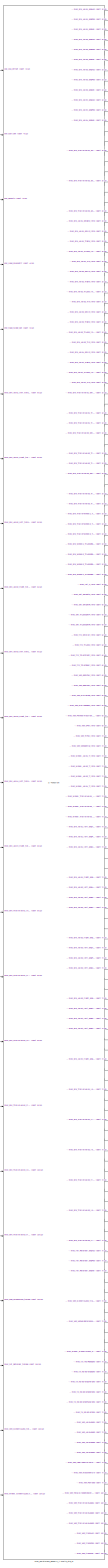
[diagram: mec_pointmass_generic_ATvoith_DIWA_NXT /mec_pointmass_generic_ATvoith_std - part 1/12, center side, full height]
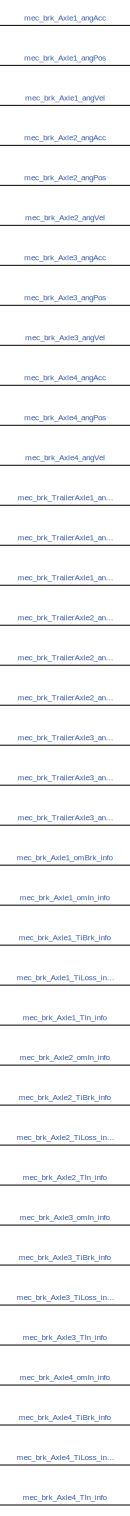
[diagram: mec_pointmass_generic_ATvoith_DIWA_NXT /mec_pointmass_generic_ATvoith_std - part 2/12, top right region]
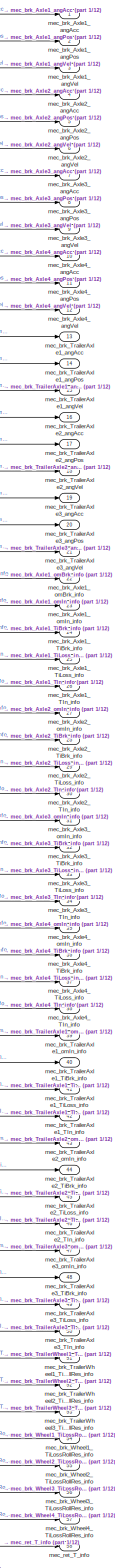
[diagram: mec_pointmass_generic_ATvoith_DIWA_NXT /mec_pointmass_generic_ATvoith_std - part 3/12, top right region]
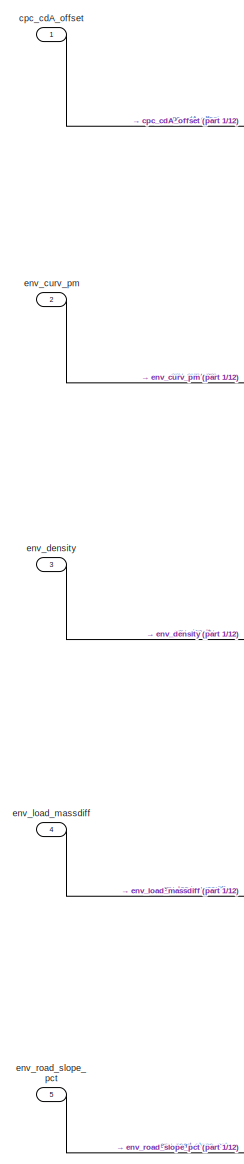
[diagram: mec_pointmass_generic_ATvoith_DIWA_NXT /mec_pointmass_generic_ATvoith_std - part 4/12, top left region]
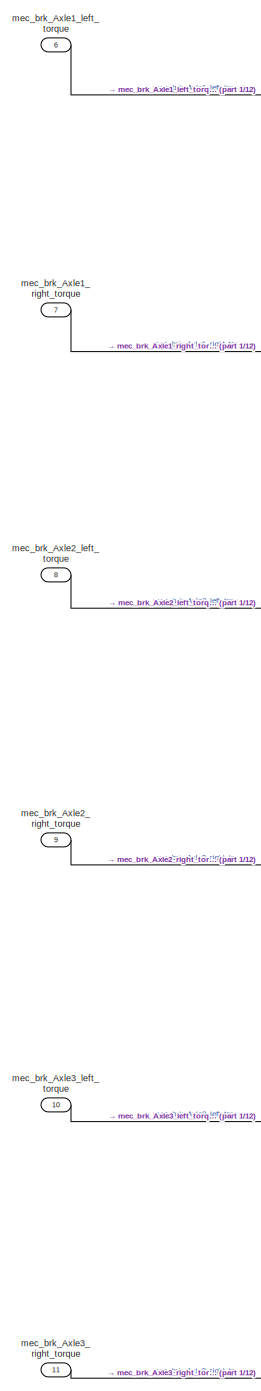
[diagram: mec_pointmass_generic_ATvoith_DIWA_NXT /mec_pointmass_generic_ATvoith_std - part 5/12, middle left region]
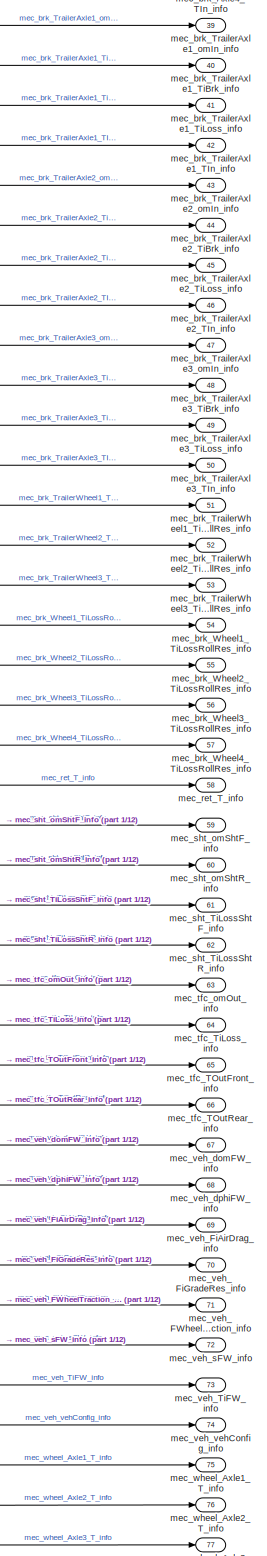
[diagram: mec_pointmass_generic_ATvoith_DIWA_NXT /mec_pointmass_generic_ATvoith_std - part 6/12, middle right region]
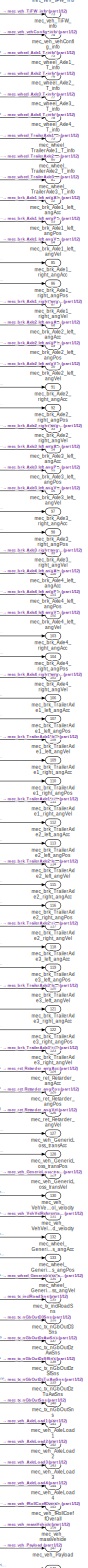
[diagram: mec_pointmass_generic_ATvoith_DIWA_NXT /mec_pointmass_generic_ATvoith_std - part 7/12, bottom right region]
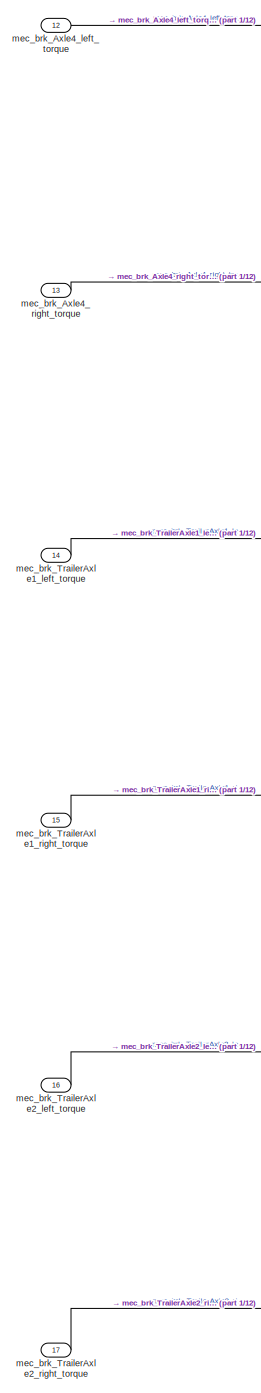
[diagram: mec_pointmass_generic_ATvoith_DIWA_NXT /mec_pointmass_generic_ATvoith_std - part 8/12, middle left region]
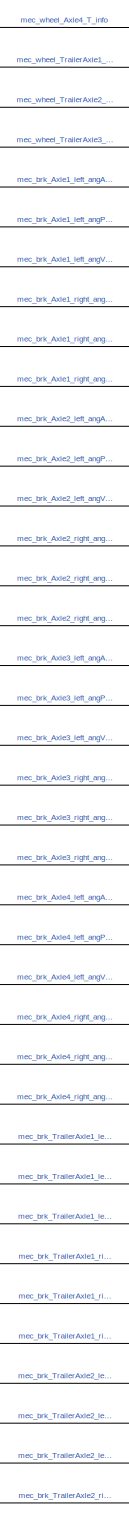
[diagram: mec_pointmass_generic_ATvoith_DIWA_NXT /mec_pointmass_generic_ATvoith_std - part 9/12, middle right region]
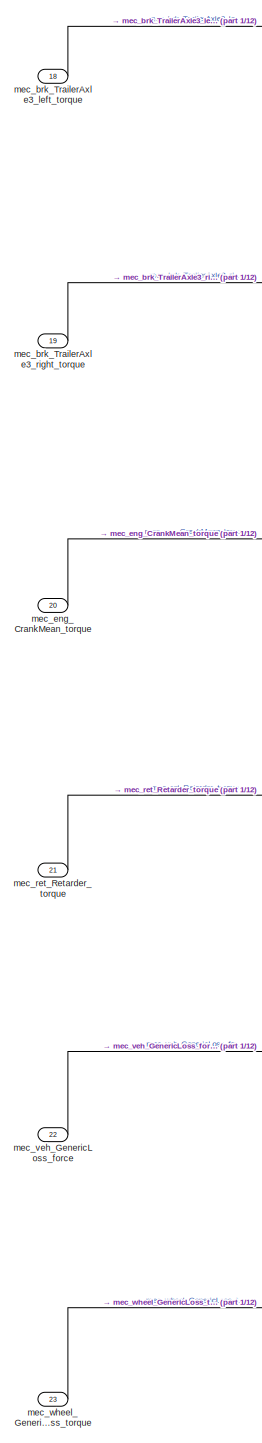
[diagram: mec_pointmass_generic_ATvoith_DIWA_NXT /mec_pointmass_generic_ATvoith_std - part 10/12, bottom left region]
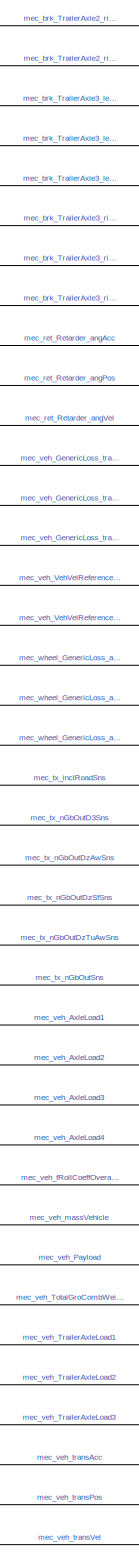
[diagram: mec_pointmass_generic_ATvoith_DIWA_NXT /mec_pointmass_generic_ATvoith_std - part 11/12, bottom right region]
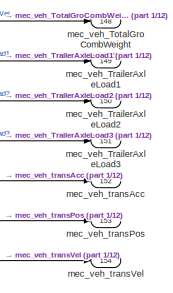
[diagram: mec_pointmass_generic_ATvoith_DIWA_NXT /mec_pointmass_generic_ATvoith_std - part 12/12, bottom right region]
BLOCK [SubSystem] mec_pointmass_generic_ATvoith_DIWA_NXT /mec_pointmass_generic_ATvoith_std
  Ports = [23, 154]
  RequestExecContextInheritance = off
  Variant = off
BLOCK [Inport] mec_pointmass_generic_ATvoith_DIWA_NXT /mec_pointmass_generic_ATvoith_std/cpc_cdA_offset
  IconDisplay = Port number
BLOCK [Inport] mec_pointmass_generic_ATvoith_DIWA_NXT /mec_pointmass_generic_ATvoith_std/env_curv_pm
  IconDisplay = Port number
  Port = 2
BLOCK [Inport] mec_pointmass_generic_ATvoith_DIWA_NXT /mec_pointmass_generic_ATvoith_std/env_density
  IconDisplay = Port number
  Port = 3
BLOCK [Inport] mec_pointmass_generic_ATvoith_DIWA_NXT /mec_pointmass_generic_ATvoith_std/env_load_massdiff
  IconDisplay = Port number
  Port = 4
BLOCK [Inport] mec_pointmass_generic_ATvoith_DIWA_NXT /mec_pointmass_generic_ATvoith_std/env_road_slope_pct
  IconDisplay = Port number
  Port = 5
BLOCK [Outport] mec_pointmass_generic_ATvoith_DIWA_NXT /mec_pointmass_generic_ATvoith_std/mec_brk_Axle1_TIn_info
  IconDisplay = Port number
  Port = 26
BLOCK [Outport] mec_pointmass_generic_ATvoith_DIWA_NXT /mec_pointmass_generic_ATvoith_std/mec_brk_Axle1_TiBrk_info
  IconDisplay = Port number
  Port = 24
BLOCK [Outport] mec_pointmass_generic_ATvoith_DIWA_NXT /mec_pointmass_generic_ATvoith_std/mec_brk_Axle1_TiLoss_info
  IconDisplay = Port number
  Port = 25
BLOCK [Outport] mec_pointmass_generic_ATvoith_DIWA_NXT /mec_pointmass_generic_ATvoith_std/mec_brk_Axle1_angAcc
  IconDisplay = Port number
BLOCK [Outport] mec_pointmass_generic_ATvoith_DIWA_NXT /mec_pointmass_generic_ATvoith_std/mec_brk_Axle1_angPos
  IconDisplay = Port number
  Port = 2
BLOCK [Outport] mec_pointmass_generic_ATvoith_DIWA_NXT /mec_pointmass_generic_ATvoith_std/mec_brk_Axle1_angVel
  IconDisplay = Port number
  Port = 3
BLOCK [Outport] mec_pointmass_generic_ATvoith_DIWA_NXT /mec_pointmass_generic_ATvoith_std/mec_brk_Axle1_left_angAcc
  IconDisplay = Port number
  Port = 82
BLOCK [Outport] mec_pointmass_generic_ATvoith_DIWA_NXT /mec_pointmass_generic_ATvoith_std/mec_brk_Axle1_left_angPos
  IconDisplay = Port number
  Port = 83
BLOCK [Outport] mec_pointmass_generic_ATvoith_DIWA_NXT /mec_pointmass_generic_ATvoith_std/mec_brk_Axle1_left_angVel
  IconDisplay = Port number
  Port = 84
BLOCK [Inport] mec_pointmass_generic_ATvoith_DIWA_NXT /mec_pointmass_generic_ATvoith_std/mec_brk_Axle1_left_torque
  IconDisplay = Port number
  Port = 6
BLOCK [Outport] mec_pointmass_generic_ATvoith_DIWA_NXT /mec_pointmass_generic_ATvoith_std/mec_brk_Axle1_omBrk_info
  IconDisplay = Port number
  Port = 22
BLOCK [Outport] mec_pointmass_generic_ATvoith_DIWA_NXT /mec_pointmass_generic_ATvoith_std/mec_brk_Axle1_omIn_info
  IconDisplay = Port number
  Port = 23
BLOCK [Outport] mec_pointmass_generic_ATvoith_DIWA_NXT /mec_pointmass_generic_ATvoith_std/mec_brk_Axle1_right_angAcc
  IconDisplay = Port number
  Port = 85
BLOCK [Outport] mec_pointmass_generic_ATvoith_DIWA_NXT /mec_pointmass_generic_ATvoith_std/mec_brk_Axle1_right_angPos
  IconDisplay = Port number
  Port = 86
BLOCK [Outport] mec_pointmass_generic_ATvoith_DIWA_NXT /mec_pointmass_generic_ATvoith_std/mec_brk_Axle1_right_angVel
  IconDisplay = Port number
  Port = 87
BLOCK [Inport] mec_pointmass_generic_ATvoith_DIWA_NXT /mec_pointmass_generic_ATvoith_std/mec_brk_Axle1_right_torque
  IconDisplay = Port number
  Port = 7
BLOCK [Outport] mec_pointmass_generic_ATvoith_DIWA_NXT /mec_pointmass_generic_ATvoith_std/mec_brk_Axle2_TIn_info
  IconDisplay = Port number
  Port = 30
BLOCK [Outport] mec_pointmass_generic_ATvoith_DIWA_NXT /mec_pointmass_generic_ATvoith_std/mec_brk_Axle2_TiBrk_info
  IconDisplay = Port number
  Port = 28
BLOCK [Outport] mec_pointmass_generic_ATvoith_DIWA_NXT /mec_pointmass_generic_ATvoith_std/mec_brk_Axle2_TiLoss_info
  IconDisplay = Port number
  Port = 29
BLOCK [Outport] mec_pointmass_generic_ATvoith_DIWA_NXT /mec_pointmass_generic_ATvoith_std/mec_brk_Axle2_angAcc
  IconDisplay = Port number
  Port = 4
BLOCK [Outport] mec_pointmass_generic_ATvoith_DIWA_NXT /mec_pointmass_generic_ATvoith_std/mec_brk_Axle2_angPos
  IconDisplay = Port number
  Port = 5
BLOCK [Outport] mec_pointmass_generic_ATvoith_DIWA_NXT /mec_pointmass_generic_ATvoith_std/mec_brk_Axle2_angVel
  IconDisplay = Port number
  Port = 6
BLOCK [Outport] mec_pointmass_generic_ATvoith_DIWA_NXT /mec_pointmass_generic_ATvoith_std/mec_brk_Axle2_left_angAcc
  IconDisplay = Port number
  Port = 88
BLOCK [Outport] mec_pointmass_generic_ATvoith_DIWA_NXT /mec_pointmass_generic_ATvoith_std/mec_brk_Axle2_left_angPos
  IconDisplay = Port number
  Port = 89
BLOCK [Outport] mec_pointmass_generic_ATvoith_DIWA_NXT /mec_pointmass_generic_ATvoith_std/mec_brk_Axle2_left_angVel
  IconDisplay = Port number
  Port = 90
BLOCK [Inport] mec_pointmass_generic_ATvoith_DIWA_NXT /mec_pointmass_generic_ATvoith_std/mec_brk_Axle2_left_torque
  IconDisplay = Port number
  Port = 8
BLOCK [Outport] mec_pointmass_generic_ATvoith_DIWA_NXT /mec_pointmass_generic_ATvoith_std/mec_brk_Axle2_omIn_info
  IconDisplay = Port number
  Port = 27
BLOCK [Outport] mec_pointmass_generic_ATvoith_DIWA_NXT /mec_pointmass_generic_ATvoith_std/mec_brk_Axle2_right_angAcc
  IconDisplay = Port number
  Port = 91
BLOCK [Outport] mec_pointmass_generic_ATvoith_DIWA_NXT /mec_pointmass_generic_ATvoith_std/mec_brk_Axle2_right_angPos
  IconDisplay = Port number
  Port = 92
BLOCK [Outport] mec_pointmass_generic_ATvoith_DIWA_NXT /mec_pointmass_generic_ATvoith_std/mec_brk_Axle2_right_angVel
  IconDisplay = Port number
  Port = 93
BLOCK [Inport] mec_pointmass_generic_ATvoith_DIWA_NXT /mec_pointmass_generic_ATvoith_std/mec_brk_Axle2_right_torque
  IconDisplay = Port number
  Port = 9
BLOCK [Outport] mec_pointmass_generic_ATvoith_DIWA_NXT /mec_pointmass_generic_ATvoith_std/mec_brk_Axle3_TIn_info
  IconDisplay = Port number
  Port = 34
BLOCK [Outport] mec_pointmass_generic_ATvoith_DIWA_NXT /mec_pointmass_generic_ATvoith_std/mec_brk_Axle3_TiBrk_info
  IconDisplay = Port number
  Port = 32
BLOCK [Outport] mec_pointmass_generic_ATvoith_DIWA_NXT /mec_pointmass_generic_ATvoith_std/mec_brk_Axle3_TiLoss_info
  IconDisplay = Port number
  Port = 33
BLOCK [Outport] mec_pointmass_generic_ATvoith_DIWA_NXT /mec_pointmass_generic_ATvoith_std/mec_brk_Axle3_angAcc
  IconDisplay = Port number
  Port = 7
BLOCK [Outport] mec_pointmass_generic_ATvoith_DIWA_NXT /mec_pointmass_generic_ATvoith_std/mec_brk_Axle3_angPos
  IconDisplay = Port number
  Port = 8
BLOCK [Outport] mec_pointmass_generic_ATvoith_DIWA_NXT /mec_pointmass_generic_ATvoith_std/mec_brk_Axle3_angVel
  IconDisplay = Port number
  Port = 9
BLOCK [Outport] mec_pointmass_generic_ATvoith_DIWA_NXT /mec_pointmass_generic_ATvoith_std/mec_brk_Axle3_left_angAcc
  IconDisplay = Port number
  Port = 94
BLOCK [Outport] mec_pointmass_generic_ATvoith_DIWA_NXT /mec_pointmass_generic_ATvoith_std/mec_brk_Axle3_left_angPos
  IconDisplay = Port number
  Port = 95
BLOCK [Outport] mec_pointmass_generic_ATvoith_DIWA_NXT /mec_pointmass_generic_ATvoith_std/mec_brk_Axle3_left_angVel
  IconDisplay = Port number
  Port = 96
BLOCK [Inport] mec_pointmass_generic_ATvoith_DIWA_NXT /mec_pointmass_generic_ATvoith_std/mec_brk_Axle3_left_torque
  IconDisplay = Port number
  Port = 10
BLOCK [Outport] mec_pointmass_generic_ATvoith_DIWA_NXT /mec_pointmass_generic_ATvoith_std/mec_brk_Axle3_omIn_info
  IconDisplay = Port number
  Port = 31
BLOCK [Outport] mec_pointmass_generic_ATvoith_DIWA_NXT /mec_pointmass_generic_ATvoith_std/mec_brk_Axle3_right_angAcc
  IconDisplay = Port number
  Port = 97
BLOCK [Outport] mec_pointmass_generic_ATvoith_DIWA_NXT /mec_pointmass_generic_ATvoith_std/mec_brk_Axle3_right_angPos
  IconDisplay = Port number
  Port = 98
BLOCK [Outport] mec_pointmass_generic_ATvoith_DIWA_NXT /mec_pointmass_generic_ATvoith_std/mec_brk_Axle3_right_angVel
  IconDisplay = Port number
  Port = 99
BLOCK [Inport] mec_pointmass_generic_ATvoith_DIWA_NXT /mec_pointmass_generic_ATvoith_std/mec_brk_Axle3_right_torque
  IconDisplay = Port number
  Port = 11
BLOCK [Outport] mec_pointmass_generic_ATvoith_DIWA_NXT /mec_pointmass_generic_ATvoith_std/mec_brk_Axle4_TIn_info
  IconDisplay = Port number
  Port = 38
BLOCK [Outport] mec_pointmass_generic_ATvoith_DIWA_NXT /mec_pointmass_generic_ATvoith_std/mec_brk_Axle4_TiBrk_info
  IconDisplay = Port number
  Port = 36
BLOCK [Outport] mec_pointmass_generic_ATvoith_DIWA_NXT /mec_pointmass_generic_ATvoith_std/mec_brk_Axle4_TiLoss_info
  IconDisplay = Port number
  Port = 37
BLOCK [Outport] mec_pointmass_generic_ATvoith_DIWA_NXT /mec_pointmass_generic_ATvoith_std/mec_brk_Axle4_angAcc
  IconDisplay = Port number
  Port = 10
BLOCK [Outport] mec_pointmass_generic_ATvoith_DIWA_NXT /mec_pointmass_generic_ATvoith_std/mec_brk_Axle4_angPos
  IconDisplay = Port number
  Port = 11
BLOCK [Outport] mec_pointmass_generic_ATvoith_DIWA_NXT /mec_pointmass_generic_ATvoith_std/mec_brk_Axle4_angVel
  IconDisplay = Port number
  Port = 12
BLOCK [Outport] mec_pointmass_generic_ATvoith_DIWA_NXT /mec_pointmass_generic_ATvoith_std/mec_brk_Axle4_left_angAcc
  IconDisplay = Port number
  Port = 100
BLOCK [Outport] mec_pointmass_generic_ATvoith_DIWA_NXT /mec_pointmass_generic_ATvoith_std/mec_brk_Axle4_left_angPos
  IconDisplay = Port number
  Port = 101
BLOCK [Outport] mec_pointmass_generic_ATvoith_DIWA_NXT /mec_pointmass_generic_ATvoith_std/mec_brk_Axle4_left_angVel
  IconDisplay = Port number
  Port = 102
BLOCK [Inport] mec_pointmass_generic_ATvoith_DIWA_NXT /mec_pointmass_generic_ATvoith_std/mec_brk_Axle4_left_torque
  IconDisplay = Port number
  Port = 12
BLOCK [Outport] mec_pointmass_generic_ATvoith_DIWA_NXT /mec_pointmass_generic_ATvoith_std/mec_brk_Axle4_omIn_info
  IconDisplay = Port number
  Port = 35
BLOCK [Outport] mec_pointmass_generic_ATvoith_DIWA_NXT /mec_pointmass_generic_ATvoith_std/mec_brk_Axle4_right_angAcc
  IconDisplay = Port number
  Port = 103
BLOCK [Outport] mec_pointmass_generic_ATvoith_DIWA_NXT /mec_pointmass_generic_ATvoith_std/mec_brk_Axle4_right_angPos
  IconDisplay = Port number
  Port = 104
BLOCK [Outport] mec_pointmass_generic_ATvoith_DIWA_NXT /mec_pointmass_generic_ATvoith_std/mec_brk_Axle4_right_angVel
  IconDisplay = Port number
  Port = 105
BLOCK [Inport] mec_pointmass_generic_ATvoith_DIWA_NXT /mec_pointmass_generic_ATvoith_std/mec_brk_Axle4_right_torque
  IconDisplay = Port number
  Port = 13
BLOCK [Outport] mec_pointmass_generic_ATvoith_DIWA_NXT /mec_pointmass_generic_ATvoith_std/mec_brk_TrailerAxle1_TIn_info
  IconDisplay = Port number
  Port = 42
BLOCK [Outport] mec_pointmass_generic_ATvoith_DIWA_NXT /mec_pointmass_generic_ATvoith_std/mec_brk_TrailerAxle1_TiBrk_info
  IconDisplay = Port number
  Port = 40
BLOCK [Outport] mec_pointmass_generic_ATvoith_DIWA_NXT /mec_pointmass_generic_ATvoith_std/mec_brk_TrailerAxle1_TiLoss_info
  IconDisplay = Port number
  Port = 41
BLOCK [Outport] mec_pointmass_generic_ATvoith_DIWA_NXT /mec_pointmass_generic_ATvoith_std/mec_brk_TrailerAxle1_angAcc
  IconDisplay = Port number
  Port = 13
BLOCK [Outport] mec_pointmass_generic_ATvoith_DIWA_NXT /mec_pointmass_generic_ATvoith_std/mec_brk_TrailerAxle1_angPos
  IconDisplay = Port number
  Port = 14
BLOCK [Outport] mec_pointmass_generic_ATvoith_DIWA_NXT /mec_pointmass_generic_ATvoith_std/mec_brk_TrailerAxle1_angVel
  IconDisplay = Port number
  Port = 15
BLOCK [Outport] mec_pointmass_generic_ATvoith_DIWA_NXT /mec_pointmass_generic_ATvoith_std/mec_brk_TrailerAxle1_left_angAcc
  IconDisplay = Port number
  Port = 106
BLOCK [Outport] mec_pointmass_generic_ATvoith_DIWA_NXT /mec_pointmass_generic_ATvoith_std/mec_brk_TrailerAxle1_left_angPos
  IconDisplay = Port number
  Port = 107
BLOCK [Outport] mec_pointmass_generic_ATvoith_DIWA_NXT /mec_pointmass_generic_ATvoith_std/mec_brk_TrailerAxle1_left_angVel
  IconDisplay = Port number
  Port = 108
BLOCK [Inport] mec_pointmass_generic_ATvoith_DIWA_NXT /mec_pointmass_generic_ATvoith_std/mec_brk_TrailerAxle1_left_torque
  IconDisplay = Port number
  Port = 14
BLOCK [Outport] mec_pointmass_generic_ATvoith_DIWA_NXT /mec_pointmass_generic_ATvoith_std/mec_brk_TrailerAxle1_omIn_info
  IconDisplay = Port number
  Port = 39
BLOCK [Outport] mec_pointmass_generic_ATvoith_DIWA_NXT /mec_pointmass_generic_ATvoith_std/mec_brk_TrailerAxle1_right_angAcc
  IconDisplay = Port number
  Port = 109
BLOCK [Outport] mec_pointmass_generic_ATvoith_DIWA_NXT /mec_pointmass_generic_ATvoith_std/mec_brk_TrailerAxle1_right_angPos
  IconDisplay = Port number
  Port = 110
BLOCK [Outport] mec_pointmass_generic_ATvoith_DIWA_NXT /mec_pointmass_generic_ATvoith_std/mec_brk_TrailerAxle1_right_angVel
  IconDisplay = Port number
  Port = 111
BLOCK [Inport] mec_pointmass_generic_ATvoith_DIWA_NXT /mec_pointmass_generic_ATvoith_std/mec_brk_TrailerAxle1_right_torque
  IconDisplay = Port number
  Port = 15
BLOCK [Outport] mec_pointmass_generic_ATvoith_DIWA_NXT /mec_pointmass_generic_ATvoith_std/mec_brk_TrailerAxle2_TIn_info
  IconDisplay = Port number
  Port = 46
BLOCK [Outport] mec_pointmass_generic_ATvoith_DIWA_NXT /mec_pointmass_generic_ATvoith_std/mec_brk_TrailerAxle2_TiBrk_info
  IconDisplay = Port number
  Port = 44
BLOCK [Outport] mec_pointmass_generic_ATvoith_DIWA_NXT /mec_pointmass_generic_ATvoith_std/mec_brk_TrailerAxle2_TiLoss_info
  IconDisplay = Port number
  Port = 45
BLOCK [Outport] mec_pointmass_generic_ATvoith_DIWA_NXT /mec_pointmass_generic_ATvoith_std/mec_brk_TrailerAxle2_angAcc
  IconDisplay = Port number
  Port = 16
BLOCK [Outport] mec_pointmass_generic_ATvoith_DIWA_NXT /mec_pointmass_generic_ATvoith_std/mec_brk_TrailerAxle2_angPos
  IconDisplay = Port number
  Port = 17
BLOCK [Outport] mec_pointmass_generic_ATvoith_DIWA_NXT /mec_pointmass_generic_ATvoith_std/mec_brk_TrailerAxle2_angVel
  IconDisplay = Port number
  Port = 18
BLOCK [Outport] mec_pointmass_generic_ATvoith_DIWA_NXT /mec_pointmass_generic_ATvoith_std/mec_brk_TrailerAxle2_left_angAcc
  IconDisplay = Port number
  Port = 112
BLOCK [Outport] mec_pointmass_generic_ATvoith_DIWA_NXT /mec_pointmass_generic_ATvoith_std/mec_brk_TrailerAxle2_left_angPos
  IconDisplay = Port number
  Port = 113
BLOCK [Outport] mec_pointmass_generic_ATvoith_DIWA_NXT /mec_pointmass_generic_ATvoith_std/mec_brk_TrailerAxle2_left_angVel
  IconDisplay = Port number
  Port = 114
BLOCK [Inport] mec_pointmass_generic_ATvoith_DIWA_NXT /mec_pointmass_generic_ATvoith_std/mec_brk_TrailerAxle2_left_torque
  IconDisplay = Port number
  Port = 16
BLOCK [Outport] mec_pointmass_generic_ATvoith_DIWA_NXT /mec_pointmass_generic_ATvoith_std/mec_brk_TrailerAxle2_omIn_info
  IconDisplay = Port number
  Port = 43
BLOCK [Outport] mec_pointmass_generic_ATvoith_DIWA_NXT /mec_pointmass_generic_ATvoith_std/mec_brk_TrailerAxle2_right_angAcc
  IconDisplay = Port number
  Port = 115
BLOCK [Outport] mec_pointmass_generic_ATvoith_DIWA_NXT /mec_pointmass_generic_ATvoith_std/mec_brk_TrailerAxle2_right_angPos
  IconDisplay = Port number
  Port = 116
BLOCK [Outport] mec_pointmass_generic_ATvoith_DIWA_NXT /mec_pointmass_generic_ATvoith_std/mec_brk_TrailerAxle2_right_angVel
  IconDisplay = Port number
  Port = 117
BLOCK [Inport] mec_pointmass_generic_ATvoith_DIWA_NXT /mec_pointmass_generic_ATvoith_std/mec_brk_TrailerAxle2_right_torque
  IconDisplay = Port number
  Port = 17
BLOCK [Outport] mec_pointmass_generic_ATvoith_DIWA_NXT /mec_pointmass_generic_ATvoith_std/mec_brk_TrailerAxle3_TIn_info
  IconDisplay = Port number
  Port = 50
BLOCK [Outport] mec_pointmass_generic_ATvoith_DIWA_NXT /mec_pointmass_generic_ATvoith_std/mec_brk_TrailerAxle3_TiBrk_info
  IconDisplay = Port number
  Port = 48
BLOCK [Outport] mec_pointmass_generic_ATvoith_DIWA_NXT /mec_pointmass_generic_ATvoith_std/mec_brk_TrailerAxle3_TiLoss_info
  IconDisplay = Port number
  Port = 49
BLOCK [Outport] mec_pointmass_generic_ATvoith_DIWA_NXT /mec_pointmass_generic_ATvoith_std/mec_brk_TrailerAxle3_angAcc
  IconDisplay = Port number
  Port = 19
BLOCK [Outport] mec_pointmass_generic_ATvoith_DIWA_NXT /mec_pointmass_generic_ATvoith_std/mec_brk_TrailerAxle3_angPos
  IconDisplay = Port number
  Port = 20
BLOCK [Outport] mec_pointmass_generic_ATvoith_DIWA_NXT /mec_pointmass_generic_ATvoith_std/mec_brk_TrailerAxle3_angVel
  IconDisplay = Port number
  Port = 21
BLOCK [Outport] mec_pointmass_generic_ATvoith_DIWA_NXT /mec_pointmass_generic_ATvoith_std/mec_brk_TrailerAxle3_left_angAcc
  IconDisplay = Port number
  Port = 118
BLOCK [Outport] mec_pointmass_generic_ATvoith_DIWA_NXT /mec_pointmass_generic_ATvoith_std/mec_brk_TrailerAxle3_left_angPos
  IconDisplay = Port number
  Port = 119
BLOCK [Outport] mec_pointmass_generic_ATvoith_DIWA_NXT /mec_pointmass_generic_ATvoith_std/mec_brk_TrailerAxle3_left_angVel
  IconDisplay = Port number
  Port = 120
BLOCK [Inport] mec_pointmass_generic_ATvoith_DIWA_NXT /mec_pointmass_generic_ATvoith_std/mec_brk_TrailerAxle3_left_torque
  IconDisplay = Port number
  Port = 18
BLOCK [Outport] mec_pointmass_generic_ATvoith_DIWA_NXT /mec_pointmass_generic_ATvoith_std/mec_brk_TrailerAxle3_omIn_info
  IconDisplay = Port number
  Port = 47
BLOCK [Outport] mec_pointmass_generic_ATvoith_DIWA_NXT /mec_pointmass_generic_ATvoith_std/mec_brk_TrailerAxle3_right_angAcc
  IconDisplay = Port number
  Port = 121
BLOCK [Outport] mec_pointmass_generic_ATvoith_DIWA_NXT /mec_pointmass_generic_ATvoith_std/mec_brk_TrailerAxle3_right_angPos
  IconDisplay = Port number
  Port = 122
BLOCK [Outport] mec_pointmass_generic_ATvoith_DIWA_NXT /mec_pointmass_generic_ATvoith_std/mec_brk_TrailerAxle3_right_angVel
  IconDisplay = Port number
  Port = 123
BLOCK [Inport] mec_pointmass_generic_ATvoith_DIWA_NXT /mec_pointmass_generic_ATvoith_std/mec_brk_TrailerAxle3_right_torque
  IconDisplay = Port number
  Port = 19
BLOCK [Outport] mec_pointmass_generic_ATvoith_DIWA_NXT /mec_pointmass_generic_ATvoith_std/mec_brk_TrailerWheel1_TiLossRollRes_info
  IconDisplay = Port number
  Port = 51
BLOCK [Outport] mec_pointmass_generic_ATvoith_DIWA_NXT /mec_pointmass_generic_ATvoith_std/mec_brk_TrailerWheel2_TiLossRollRes_info
  IconDisplay = Port number
  Port = 52
BLOCK [Outport] mec_pointmass_generic_ATvoith_DIWA_NXT /mec_pointmass_generic_ATvoith_std/mec_brk_TrailerWheel3_TiLossRollRes_info
  IconDisplay = Port number
  Port = 53
BLOCK [Outport] mec_pointmass_generic_ATvoith_DIWA_NXT /mec_pointmass_generic_ATvoith_std/mec_brk_Wheel1_TiLossRollRes_info
  IconDisplay = Port number
  Port = 54
BLOCK [Outport] mec_pointmass_generic_ATvoith_DIWA_NXT /mec_pointmass_generic_ATvoith_std/mec_brk_Wheel2_TiLossRollRes_info
  IconDisplay = Port number
  Port = 55
BLOCK [Outport] mec_pointmass_generic_ATvoith_DIWA_NXT /mec_pointmass_generic_ATvoith_std/mec_brk_Wheel3_TiLossRollRes_info
  IconDisplay = Port number
  Port = 56
BLOCK [Outport] mec_pointmass_generic_ATvoith_DIWA_NXT /mec_pointmass_generic_ATvoith_std/mec_brk_Wheel4_TiLossRollRes_info
  IconDisplay = Port number
  Port = 57
BLOCK [Inport] mec_pointmass_generic_ATvoith_DIWA_NXT /mec_pointmass_generic_ATvoith_std/mec_eng_CrankMean_torque
  IconDisplay = Port number
  Port = 20
BLOCK [S-Function] mec_pointmass_generic_ATvoith_DIWA_NXT /mec_pointmass_generic_ATvoith_std/mec_pointmass_generic_ATvoith_std_sf
  EnableBusSupport = off
  FunctionName = mec_pointmass_generic_ATvoith_std_sf
  Parameters = s1 s2 p1 p2 p3 p4 p5 p6 p7 p8 p9 p10 p11 p12 p13 p14 p15 p16 p17 p18 p19 p20 p21 p22 p23 p24 p25 p26 p27 p28 p29 p30 p31 p32 p33 p34 p35 p36 p37 p38 p39 p40 p41 p42 p43 p44 p45 p46 p47 p48 p49 p50 p51 p52 p53 p54 p55 p56 p57 p58 p59 p60 p61 p62 p63 p64 p65 p66 p67 p68 p69 p70 p71 p72 p73 p74 p75 p76 p77 p78 p79 p80 p81 p82 p83 p84 p85 p86 p87 p88 p89 p90 p91 p92 p93 p94 p95 p96 p97 p98 p99 p100 p1...<+997ch>
  Ports = [23, 154]
  SFunctionDeploymentMode = off
  SFunctionModules = cg_mec_pointmass_generic_ATvoith_std_sf_decl cg_mec_pointmass_generic_ATvoith_std_sf_functions cg_mec_pointmass_generic_ATvoith_std_sf_init cg_mec_pointmass_generic_ATvoith_std_sf_initjac cg_mec_pointmass_generic_ATvoith_std_sf_jac ITI_ArrayFunctions ITI_big_uint ITI_SFuncFixStepSolver_mec_pointmass_generic_ATvoith_std_sf ITI_AllocClockInference ITI_SFuncHelper ITI_Functions ITI_FunctionsAlloc ITI...<+419ch>
BLOCK [Outport] mec_pointmass_generic_ATvoith_DIWA_NXT /mec_pointmass_generic_ATvoith_std/mec_ret_Retarder_angAcc
  IconDisplay = Port number
  Port = 124
BLOCK [Outport] mec_pointmass_generic_ATvoith_DIWA_NXT /mec_pointmass_generic_ATvoith_std/mec_ret_Retarder_angPos
  IconDisplay = Port number
  Port = 125
BLOCK [Outport] mec_pointmass_generic_ATvoith_DIWA_NXT /mec_pointmass_generic_ATvoith_std/mec_ret_Retarder_angVel
  IconDisplay = Port number
  Port = 126
BLOCK [Inport] mec_pointmass_generic_ATvoith_DIWA_NXT /mec_pointmass_generic_ATvoith_std/mec_ret_Retarder_torque
  IconDisplay = Port number
  Port = 21
BLOCK [Outport] mec_pointmass_generic_ATvoith_DIWA_NXT /mec_pointmass_generic_ATvoith_std/mec_ret_T_info
  IconDisplay = Port number
  Port = 58
BLOCK [Outport] mec_pointmass_generic_ATvoith_DIWA_NXT /mec_pointmass_generic_ATvoith_std/mec_sht_TiLossShtF_info
  IconDisplay = Port number
  Port = 61
BLOCK [Outport] mec_pointmass_generic_ATvoith_DIWA_NXT /mec_pointmass_generic_ATvoith_std/mec_sht_TiLossShtR_info
  IconDisplay = Port number
  Port = 62
BLOCK [Outport] mec_pointmass_generic_ATvoith_DIWA_NXT /mec_pointmass_generic_ATvoith_std/mec_sht_omShtF_info
  IconDisplay = Port number
  Port = 59
BLOCK [Outport] mec_pointmass_generic_ATvoith_DIWA_NXT /mec_pointmass_generic_ATvoith_std/mec_sht_omShtR_info
  IconDisplay = Port number
  Port = 60
BLOCK [Outport] mec_pointmass_generic_ATvoith_DIWA_NXT /mec_pointmass_generic_ATvoith_std/mec_tfc_TOutFront_info
  IconDisplay = Port number
  Port = 65
BLOCK [Outport] mec_pointmass_generic_ATvoith_DIWA_NXT /mec_pointmass_generic_ATvoith_std/mec_tfc_TOutRear_info
  IconDisplay = Port number
  Port = 66
BLOCK [Outport] mec_pointmass_generic_ATvoith_DIWA_NXT /mec_pointmass_generic_ATvoith_std/mec_tfc_TiLoss_info
  IconDisplay = Port number
  Port = 64
BLOCK [Outport] mec_pointmass_generic_ATvoith_DIWA_NXT /mec_pointmass_generic_ATvoith_std/mec_tfc_omOut_info
  IconDisplay = Port number
  Port = 63
BLOCK [Outport] mec_pointmass_generic_ATvoith_DIWA_NXT /mec_pointmass_generic_ATvoith_std/mec_tx_inclRoadSns
  IconDisplay = Port number
  Port = 135
BLOCK [Outport] mec_pointmass_generic_ATvoith_DIWA_NXT /mec_pointmass_generic_ATvoith_std/mec_tx_nGbOutD3Sns
  IconDisplay = Port number
  Port = 136
BLOCK [Outport] mec_pointmass_generic_ATvoith_DIWA_NXT /mec_pointmass_generic_ATvoith_std/mec_tx_nGbOutDzAwSns
  IconDisplay = Port number
  Port = 137
BLOCK [Outport] mec_pointmass_generic_ATvoith_DIWA_NXT /mec_pointmass_generic_ATvoith_std/mec_tx_nGbOutDzSfSns
  IconDisplay = Port number
  Port = 138
BLOCK [Outport] mec_pointmass_generic_ATvoith_DIWA_NXT /mec_pointmass_generic_ATvoith_std/mec_tx_nGbOutDzTuAwSns
  IconDisplay = Port number
  Port = 139
BLOCK [Outport] mec_pointmass_generic_ATvoith_DIWA_NXT /mec_pointmass_generic_ATvoith_std/mec_tx_nGbOutSns
  IconDisplay = Port number
  Port = 140
BLOCK [Outport] mec_pointmass_generic_ATvoith_DIWA_NXT /mec_pointmass_generic_ATvoith_std/mec_veh_AxleLoad1
  IconDisplay = Port number
  Port = 141
BLOCK [Outport] mec_pointmass_generic_ATvoith_DIWA_NXT /mec_pointmass_generic_ATvoith_std/mec_veh_AxleLoad2
  IconDisplay = Port number
  Port = 142
BLOCK [Outport] mec_pointmass_generic_ATvoith_DIWA_NXT /mec_pointmass_generic_ATvoith_std/mec_veh_AxleLoad3
  IconDisplay = Port number
  Port = 143
BLOCK [Outport] mec_pointmass_generic_ATvoith_DIWA_NXT /mec_pointmass_generic_ATvoith_std/mec_veh_AxleLoad4
  IconDisplay = Port number
  Port = 144
BLOCK [Outport] mec_pointmass_generic_ATvoith_DIWA_NXT /mec_pointmass_generic_ATvoith_std/mec_veh_FWheelTraction_info
  IconDisplay = Port number
  Port = 71
BLOCK [Outport] mec_pointmass_generic_ATvoith_DIWA_NXT /mec_pointmass_generic_ATvoith_std/mec_veh_FiAirDrag_info
  IconDisplay = Port number
  Port = 69
BLOCK [Outport] mec_pointmass_generic_ATvoith_DIWA_NXT /mec_pointmass_generic_ATvoith_std/mec_veh_FiGradeRes_info
  IconDisplay = Port number
  Port = 70
BLOCK [Inport] mec_pointmass_generic_ATvoith_DIWA_NXT /mec_pointmass_generic_ATvoith_std/mec_veh_GenericLoss_force
  IconDisplay = Port number
  Port = 22
BLOCK [Outport] mec_pointmass_generic_ATvoith_DIWA_NXT /mec_pointmass_generic_ATvoith_std/mec_veh_GenericLoss_transAcc
  IconDisplay = Port number
  Port = 127
BLOCK [Outport] mec_pointmass_generic_ATvoith_DIWA_NXT /mec_pointmass_generic_ATvoith_std/mec_veh_GenericLoss_transPos
  IconDisplay = Port number
  Port = 128
BLOCK [Outport] mec_pointmass_generic_ATvoith_DIWA_NXT /mec_pointmass_generic_ATvoith_std/mec_veh_GenericLoss_transVel
  IconDisplay = Port number
  Port = 129
BLOCK [Outport] mec_pointmass_generic_ATvoith_DIWA_NXT /mec_pointmass_generic_ATvoith_std/mec_veh_Payload
  IconDisplay = Port number
  Port = 147
BLOCK [Outport] mec_pointmass_generic_ATvoith_DIWA_NXT /mec_pointmass_generic_ATvoith_std/mec_veh_TiFW_info
  IconDisplay = Port number
  Port = 73
BLOCK [Outport] mec_pointmass_generic_ATvoith_DIWA_NXT /mec_pointmass_generic_ATvoith_std/mec_veh_TotalGroCombWeight
  IconDisplay = Port number
  Port = 148
BLOCK [Outport] mec_pointmass_generic_ATvoith_DIWA_NXT /mec_pointmass_generic_ATvoith_std/mec_veh_TrailerAxleLoad1
  IconDisplay = Port number
  Port = 149
BLOCK [Outport] mec_pointmass_generic_ATvoith_DIWA_NXT /mec_pointmass_generic_ATvoith_std/mec_veh_TrailerAxleLoad2
  IconDisplay = Port number
  Port = 150
BLOCK [Outport] mec_pointmass_generic_ATvoith_DIWA_NXT /mec_pointmass_generic_ATvoith_std/mec_veh_TrailerAxleLoad3
  IconDisplay = Port number
  Port = 151
BLOCK [Outport] mec_pointmass_generic_ATvoith_DIWA_NXT /mec_pointmass_generic_ATvoith_std/mec_veh_VehVelReferenceCool_velocity
  IconDisplay = Port number
  Port = 130
BLOCK [Outport] mec_pointmass_generic_ATvoith_DIWA_NXT /mec_pointmass_generic_ATvoith_std/mec_veh_VehVelReferenceUhood_velocity
  IconDisplay = Port number
  Port = 131
BLOCK [Outport] mec_pointmass_generic_ATvoith_DIWA_NXT /mec_pointmass_generic_ATvoith_std/mec_veh_domFW_info
  IconDisplay = Port number
  Port = 67
BLOCK [Outport] mec_pointmass_generic_ATvoith_DIWA_NXT /mec_pointmass_generic_ATvoith_std/mec_veh_dphiFW_info
  IconDisplay = Port number
  Port = 68
BLOCK [Outport] mec_pointmass_generic_ATvoith_DIWA_NXT /mec_pointmass_generic_ATvoith_std/mec_veh_fRollCoeffOverall
  IconDisplay = Port number
  Port = 145
BLOCK [Outport] mec_pointmass_generic_ATvoith_DIWA_NXT /mec_pointmass_generic_ATvoith_std/mec_veh_massVehicle
  IconDisplay = Port number
  Port = 146
BLOCK [Outport] mec_pointmass_generic_ATvoith_DIWA_NXT /mec_pointmass_generic_ATvoith_std/mec_veh_sFW_info
  IconDisplay = Port number
  Port = 72
BLOCK [Outport] mec_pointmass_generic_ATvoith_DIWA_NXT /mec_pointmass_generic_ATvoith_std/mec_veh_transAcc
  IconDisplay = Port number
  Port = 152
BLOCK [Outport] mec_pointmass_generic_ATvoith_DIWA_NXT /mec_pointmass_generic_ATvoith_std/mec_veh_transPos
  IconDisplay = Port number
  Port = 153
BLOCK [Outport] mec_pointmass_generic_ATvoith_DIWA_NXT /mec_pointmass_generic_ATvoith_std/mec_veh_transVel
  IconDisplay = Port number
  Port = 154
BLOCK [Outport] mec_pointmass_generic_ATvoith_DIWA_NXT /mec_pointmass_generic_ATvoith_std/mec_veh_vehConfig_info
  IconDisplay = Port number
  Port = 74
BLOCK [Outport] mec_pointmass_generic_ATvoith_DIWA_NXT /mec_pointmass_generic_ATvoith_std/mec_wheel_Axle1_T_info
  IconDisplay = Port number
  Port = 75
BLOCK [Outport] mec_pointmass_generic_ATvoith_DIWA_NXT /mec_pointmass_generic_ATvoith_std/mec_wheel_Axle2_T_info
  IconDisplay = Port number
  Port = 76
BLOCK [Outport] mec_pointmass_generic_ATvoith_DIWA_NXT /mec_pointmass_generic_ATvoith_std/mec_wheel_Axle3_T_info
  IconDisplay = Port number
  Port = 77
BLOCK [Outport] mec_pointmass_generic_ATvoith_DIWA_NXT /mec_pointmass_generic_ATvoith_std/mec_wheel_Axle4_T_info
  IconDisplay = Port number
  Port = 78
BLOCK [Outport] mec_pointmass_generic_ATvoith_DIWA_NXT /mec_pointmass_generic_ATvoith_std/mec_wheel_GenericLoss_angAcc
  IconDisplay = Port number
  Port = 132
BLOCK [Outport] mec_pointmass_generic_ATvoith_DIWA_NXT /mec_pointmass_generic_ATvoith_std/mec_wheel_GenericLoss_angPos
  IconDisplay = Port number
  Port = 133
BLOCK [Outport] mec_pointmass_generic_ATvoith_DIWA_NXT /mec_pointmass_generic_ATvoith_std/mec_wheel_GenericLoss_angVel
  IconDisplay = Port number
  Port = 134
BLOCK [Inport] mec_pointmass_generic_ATvoith_DIWA_NXT /mec_pointmass_generic_ATvoith_std/mec_wheel_GenericLoss_torque
  IconDisplay = Port number
  Port = 23
BLOCK [Outport] mec_pointmass_generic_ATvoith_DIWA_NXT /mec_pointmass_generic_ATvoith_std/mec_wheel_TrailerAxle1_T_info
  IconDisplay = Port number
  Port = 79
BLOCK [Outport] mec_pointmass_generic_ATvoith_DIWA_NXT /mec_pointmass_generic_ATvoith_std/mec_wheel_TrailerAxle2_T_info
  IconDisplay = Port number
  Port = 80
BLOCK [Outport] mec_pointmass_generic_ATvoith_DIWA_NXT /mec_pointmass_generic_ATvoith_std/mec_wheel_TrailerAxle3_T_info
  IconDisplay = Port number
  Port = 81
BLOCK [Outport] mec_pointmass_generic_ATvoith_DIWA_NXT /mec_ret_Retarder_angAcc
  IconDisplay = Port number
  Port = 127
BLOCK [Outport] mec_pointmass_generic_ATvoith_DIWA_NXT /mec_ret_Retarder_angPos
  IconDisplay = Port number
  Port = 128
BLOCK [Outport] mec_pointmass_generic_ATvoith_DIWA_NXT /mec_ret_Retarder_angVel
  IconDisplay = Port number
  Port = 129
BLOCK [Inport] mec_pointmass_generic_ATvoith_DIWA_NXT /mec_ret_Retarder_torque
  IconDisplay = Port number
  Port = 28
BLOCK [Outport] mec_pointmass_generic_ATvoith_DIWA_NXT /mec_ret_T_info
  IconDisplay = Port number
  Port = 61
BLOCK [Outport] mec_pointmass_generic_ATvoith_DIWA_NXT /mec_sht_TiLossShtF_info
  IconDisplay = Port number
  Port = 64
BLOCK [Outport] mec_pointmass_generic_ATvoith_DIWA_NXT /mec_sht_TiLossShtR_info
  IconDisplay = Port number
  Port = 65
BLOCK [Outport] mec_pointmass_generic_ATvoith_DIWA_NXT /mec_sht_omShtF_info
  IconDisplay = Port number
  Port = 62
BLOCK [Outport] mec_pointmass_generic_ATvoith_DIWA_NXT /mec_sht_omShtR_info
  IconDisplay = Port number
  Port = 63
BLOCK [Outport] mec_pointmass_generic_ATvoith_DIWA_NXT /mec_tfc_TOutFront_info
  IconDisplay = Port number
  Port = 68
BLOCK [Outport] mec_pointmass_generic_ATvoith_DIWA_NXT /mec_tfc_TOutRear_info
  IconDisplay = Port number
  Port = 69
BLOCK [Outport] mec_pointmass_generic_ATvoith_DIWA_NXT /mec_tfc_TiLoss_info
  IconDisplay = Port number
  Port = 67
BLOCK [Outport] mec_pointmass_generic_ATvoith_DIWA_NXT /mec_tfc_omOut_info
  IconDisplay = Port number
  Port = 66
BLOCK [Outport] mec_pointmass_generic_ATvoith_DIWA_NXT /mec_tx_TOut_info
  IconDisplay = Port number
  Port = 3
BLOCK [Outport] mec_pointmass_generic_ATvoith_DIWA_NXT /mec_tx_TiLossIn_info
  IconDisplay = Port number
  Port = 197
BLOCK [Outport] mec_pointmass_generic_ATvoith_DIWA_NXT /mec_tx_inclRoadSns
  IconDisplay = Port number
  Port = 138
BLOCK [Outport] mec_pointmass_generic_ATvoith_DIWA_NXT /mec_tx_n1
  IconDisplay = Port number
  Port = 2
BLOCK [Outport] mec_pointmass_generic_ATvoith_DIWA_NXT /mec_tx_n2
  IconDisplay = Port number
BLOCK [Outport] mec_pointmass_generic_ATvoith_DIWA_NXT /mec_tx_nGbOutD3Sns
  IconDisplay = Port number
  Port = 139
BLOCK [Outport] mec_pointmass_generic_ATvoith_DIWA_NXT /mec_tx_nGbOutDzAwSns
  IconDisplay = Port number
  Port = 140
BLOCK [Outport] mec_pointmass_generic_ATvoith_DIWA_NXT /mec_tx_nGbOutDzSfSns
  IconDisplay = Port number
  Port = 141
BLOCK [Outport] mec_pointmass_generic_ATvoith_DIWA_NXT /mec_tx_nGbOutDzTuAwSns
  IconDisplay = Port number
  Port = 142
BLOCK [Outport] mec_pointmass_generic_ATvoith_DIWA_NXT /mec_tx_nGbOutSns
  IconDisplay = Port number
  Port = 143
BLOCK [Outport] mec_pointmass_generic_ATvoith_DIWA_NXT /mec_veh_AxleLoad1
  IconDisplay = Port number
  Port = 144
BLOCK [Outport] mec_pointmass_generic_ATvoith_DIWA_NXT /mec_veh_AxleLoad2
  IconDisplay = Port number
  Port = 145
BLOCK [Outport] mec_pointmass_generic_ATvoith_DIWA_NXT /mec_veh_AxleLoad3
  IconDisplay = Port number
  Port = 146
BLOCK [Outport] mec_pointmass_generic_ATvoith_DIWA_NXT /mec_veh_AxleLoad4
  IconDisplay = Port number
  Port = 147
BLOCK [Outport] mec_pointmass_generic_ATvoith_DIWA_NXT /mec_veh_FWheelTraction_info
  IconDisplay = Port number
  Port = 74
BLOCK [Outport] mec_pointmass_generic_ATvoith_DIWA_NXT /mec_veh_FiAirDrag_info
  IconDisplay = Port number
  Port = 72
BLOCK [Outport] mec_pointmass_generic_ATvoith_DIWA_NXT /mec_veh_FiGradeRes_info
  IconDisplay = Port number
  Port = 73
BLOCK [Inport] mec_pointmass_generic_ATvoith_DIWA_NXT /mec_veh_GenericLoss_force
  IconDisplay = Port number
  Port = 29
BLOCK [Outport] mec_pointmass_generic_ATvoith_DIWA_NXT /mec_veh_GenericLoss_transAcc
  IconDisplay = Port number
  Port = 130
BLOCK [Outport] mec_pointmass_generic_ATvoith_DIWA_NXT /mec_veh_GenericLoss_transPos
  IconDisplay = Port number
  Port = 131
BLOCK [Outport] mec_pointmass_generic_ATvoith_DIWA_NXT /mec_veh_GenericLoss_transVel
  IconDisplay = Port number
  Port = 132
BLOCK [Outport] mec_pointmass_generic_ATvoith_DIWA_NXT /mec_veh_Payload
  IconDisplay = Port number
  Port = 150
BLOCK [Outport] mec_pointmass_generic_ATvoith_DIWA_NXT /mec_veh_TiFW_info
  IconDisplay = Port number
  Port = 76
BLOCK [Outport] mec_pointmass_generic_ATvoith_DIWA_NXT /mec_veh_TotalGroCombWeight
  IconDisplay = Port number
  Port = 151
BLOCK [Outport] mec_pointmass_generic_ATvoith_DIWA_NXT /mec_veh_TrailerAxleLoad1
  IconDisplay = Port number
  Port = 152
BLOCK [Outport] mec_pointmass_generic_ATvoith_DIWA_NXT /mec_veh_TrailerAxleLoad2
  IconDisplay = Port number
  Port = 153
BLOCK [Outport] mec_pointmass_generic_ATvoith_DIWA_NXT /mec_veh_TrailerAxleLoad3
  IconDisplay = Port number
  Port = 154
BLOCK [Outport] mec_pointmass_generic_ATvoith_DIWA_NXT /mec_veh_VehVelReferenceCool_velocity
  IconDisplay = Port number
  Port = 133
BLOCK [Outport] mec_pointmass_generic_ATvoith_DIWA_NXT /mec_veh_VehVelReferenceUhood_velocity
  IconDisplay = Port number
  Port = 134
BLOCK [Outport] mec_pointmass_generic_ATvoith_DIWA_NXT /mec_veh_domFW_info
  IconDisplay = Port number
  Port = 70
BLOCK [Outport] mec_pointmass_generic_ATvoith_DIWA_NXT /mec_veh_dphiFW_info
  IconDisplay = Port number
  Port = 71
BLOCK [Outport] mec_pointmass_generic_ATvoith_DIWA_NXT /mec_veh_fRollCoeffOverall
  IconDisplay = Port number
  Port = 148
BLOCK [Outport] mec_pointmass_generic_ATvoith_DIWA_NXT /mec_veh_massVehicle
  IconDisplay = Port number
  Port = 149
BLOCK [Outport] mec_pointmass_generic_ATvoith_DIWA_NXT /mec_veh_sFW_info
  IconDisplay = Port number
  Port = 75
BLOCK [Outport] mec_pointmass_generic_ATvoith_DIWA_NXT /mec_veh_transAcc
  IconDisplay = Port number
  Port = 155
BLOCK [Outport] mec_pointmass_generic_ATvoith_DIWA_NXT /mec_veh_transPos
  IconDisplay = Port number
  Port = 156
BLOCK [Outport] mec_pointmass_generic_ATvoith_DIWA_NXT /mec_veh_transVel
  IconDisplay = Port number
  Port = 157
BLOCK [Outport] mec_pointmass_generic_ATvoith_DIWA_NXT /mec_veh_vehConfig_info
  IconDisplay = Port number
  Port = 77
BLOCK [Outport] mec_pointmass_generic_ATvoith_DIWA_NXT /mec_wheel_Axle1_T_info
  IconDisplay = Port number
  Port = 78
BLOCK [Outport] mec_pointmass_generic_ATvoith_DIWA_NXT /mec_wheel_Axle2_T_info
  IconDisplay = Port number
  Port = 79
BLOCK [Outport] mec_pointmass_generic_ATvoith_DIWA_NXT /mec_wheel_Axle3_T_info
  IconDisplay = Port number
  Port = 80
BLOCK [Outport] mec_pointmass_generic_ATvoith_DIWA_NXT /mec_wheel_Axle4_T_info
  IconDisplay = Port number
  Port = 81
BLOCK [Outport] mec_pointmass_generic_ATvoith_DIWA_NXT /mec_wheel_GenericLoss_angAcc
  IconDisplay = Port number
  Port = 135
BLOCK [Outport] mec_pointmass_generic_ATvoith_DIWA_NXT /mec_wheel_GenericLoss_angPos
  IconDisplay = Port number
  Port = 136
BLOCK [Outport] mec_pointmass_generic_ATvoith_DIWA_NXT /mec_wheel_GenericLoss_angVel
  IconDisplay = Port number
  Port = 137
BLOCK [Inport] mec_pointmass_generic_ATvoith_DIWA_NXT /mec_wheel_GenericLoss_torque
  IconDisplay = Port number
  Port = 30
BLOCK [Outport] mec_pointmass_generic_ATvoith_DIWA_NXT /mec_wheel_TrailerAxle1_T_info
  IconDisplay = Port number
  Port = 82
BLOCK [Outport] mec_pointmass_generic_ATvoith_DIWA_NXT /mec_wheel_TrailerAxle2_T_info
  IconDisplay = Port number
  Port = 83
BLOCK [Outport] mec_pointmass_generic_ATvoith_DIWA_NXT /mec_wheel_TrailerAxle3_T_info
  IconDisplay = Port number
  Port = 84
BLOCK [Inport] mec_pointmass_generic_ATvoith_DIWA_NXT /pt_ReqGr_Stat_PT
  IconDisplay = Port number
  Port = 42
BLOCK [Inport] mec_pointmass_generic_ATvoith_DIWA_NXT /pt_RetTrq_Rq_PT
  IconDisplay = Port number
  Port = 40
BLOCK [Inport] mec_pointmass_generic_ATvoith_DIWA_NXT /tcm_AKc2
  IconDisplay = Port number
BLOCK [Inport] mec_pointmass_generic_ATvoith_DIWA_NXT /tcm_AKs2
  IconDisplay = Port number
  Port = 9
BLOCK [Inport] mec_pointmass_generic_ATvoith_DIWA_NXT /tcm_gearAct
  IconDisplay = Port number
  Port = 41
BLOCK [Inport] mec_pointmass_generic_ATvoith_DIWA_NXT /tcm_p_DK
  IconDisplay = Port number
  Port = 4
BLOCK [Inport] mec_pointmass_generic_ATvoith_DIWA_NXT /tcm_p_EK
  IconDisplay = Port number
  Port = 3
BLOCK [Inport] mec_pointmass_generic_ATvoith_DIWA_NXT /tcm_p_PB
  IconDisplay = Port number
  Port = 6
BLOCK [Inport] mec_pointmass_generic_ATvoith_DIWA_NXT /tcm_p_RGK
  IconDisplay = Port number
  Port = 39
BLOCK [Inport] mec_pointmass_generic_ATvoith_DIWA_NXT /tcm_p_SK
  IconDisplay = Port number
  Port = 5
BLOCK [Inport] mec_pointmass_generic_ATvoith_DIWA_NXT /tcm_p_TGB
  IconDisplay = Port number
  Port = 8
BLOCK [Inport] mec_pointmass_generic_ATvoith_DIWA_NXT /tcm_p_TWB
  IconDisplay = Port number
  Port = 7
NET mec_pointmass_generic_ATvoith_DIWA_NXT /Constant1:1 -> mec_pointmass_generic_ATvoith_DIWA_NXT /Product2:1, mec_pointmass_generic_ATvoith_DIWA_NXT /Product3:1
LINE mec_pointmass_generic_ATvoith_DIWA_NXT /Constant:1 -> mec_pointmass_generic_ATvoith_DIWA_NXT /Product:2
LINE mec_pointmass_generic_ATvoith_DIWA_NXT /DIWA_NXT/AmeSimBlackBox:1 -> mec_pointmass_generic_ATvoith_DIWA_NXT /DIWA_NXT/Motordrehzahl_rpm:1
LINE mec_pointmass_generic_ATvoith_DIWA_NXT /DIWA_NXT/AmeSimBlackBox:10 -> mec_pointmass_generic_ATvoith_DIWA_NXT /DIWA_NXT/RetAct_Stat_PT:1
LINE mec_pointmass_generic_ATvoith_DIWA_NXT /DIWA_NXT/AmeSimBlackBox:11 -> mec_pointmass_generic_ATvoith_DIWA_NXT /DIWA_NXT/MinRetTrqPwrUp_Stat_PT:1
LINE mec_pointmass_generic_ATvoith_DIWA_NXT /DIWA_NXT/AmeSimBlackBox:12 -> mec_pointmass_generic_ATvoith_DIWA_NXT /DIWA_NXT/n2_rpm:1
LINE mec_pointmass_generic_ATvoith_DIWA_NXT /DIWA_NXT/AmeSimBlackBox:13 -> mec_pointmass_generic_ATvoith_DIWA_NXT /DIWA_NXT/n1_rpm:1
LINE mec_pointmass_generic_ATvoith_DIWA_NXT /DIWA_NXT/AmeSimBlackBox:2 -> mec_pointmass_generic_ATvoith_DIWA_NXT /DIWA_NXT/Getriebeausgangsmoment_Nm:1
LINE mec_pointmass_generic_ATvoith_DIWA_NXT /DIWA_NXT/AmeSimBlackBox:3 -> mec_pointmass_generic_ATvoith_DIWA_NXT /DIWA_NXT/Terminator:1
LINE mec_pointmass_generic_ATvoith_DIWA_NXT /DIWA_NXT/AmeSimBlackBox:4 -> mec_pointmass_generic_ATvoith_DIWA_NXT /DIWA_NXT/Verlustmoment_am_Getriebeeingang_Nm:1
LINE mec_pointmass_generic_ATvoith_DIWA_NXT /DIWA_NXT/AmeSimBlackBox:5 -> mec_pointmass_generic_ATvoith_DIWA_NXT /DIWA_NXT/BremsmomentBetriebsbremse:1
LINE mec_pointmass_generic_ATvoith_DIWA_NXT /DIWA_NXT/AmeSimBlackBox:6 -> mec_pointmass_generic_ATvoith_DIWA_NXT /DIWA_NXT/RetTrqCval_PT:1
LINE mec_pointmass_generic_ATvoith_DIWA_NXT /DIWA_NXT/AmeSimBlackBox:7 -> mec_pointmass_generic_ATvoith_DIWA_NXT /DIWA_NXT/MaxRetTrq_Cval_PT:1
LINE mec_pointmass_generic_ATvoith_DIWA_NXT /DIWA_NXT/AmeSimBlackBox:8 -> mec_pointmass_generic_ATvoith_DIWA_NXT /DIWA_NXT/ActMaxRetTrqNoTemp_Cval_PT:1
LINE mec_pointmass_generic_ATvoith_DIWA_NXT /DIWA_NXT/AmeSimBlackBox:9 -> mec_pointmass_generic_ATvoith_DIWA_NXT /DIWA_NXT/FuncLmpRET_Rq:1
LINE mec_pointmass_generic_ATvoith_DIWA_NXT /DIWA_NXT/Constant:1 -> mec_pointmass_generic_ATvoith_DIWA_NXT /DIWA_NXT/AmeSimBlackBox:15
LINE mec_pointmass_generic_ATvoith_DIWA_NXT /DIWA_NXT/Getriebeausgangsdrehzahl_rpm:1 -> mec_pointmass_generic_ATvoith_DIWA_NXT /DIWA_NXT/AmeSimBlackBox:2
LINE mec_pointmass_generic_ATvoith_DIWA_NXT /DIWA_NXT/Getriebeeingangsmoment_Nm:1 -> mec_pointmass_generic_ATvoith_DIWA_NXT /DIWA_NXT/AmeSimBlackBox:1
LINE mec_pointmass_generic_ATvoith_DIWA_NXT /DIWA_NXT/RetTrq_Rq_PT:1 -> mec_pointmass_generic_ATvoith_DIWA_NXT /DIWA_NXT/AmeSimBlackBox:12
LINE mec_pointmass_generic_ATvoith_DIWA_NXT /DIWA_NXT/current_gear:1 -> mec_pointmass_generic_ATvoith_DIWA_NXT /DIWA_NXT/AmeSimBlackBox:13
LINE mec_pointmass_generic_ATvoith_DIWA_NXT /DIWA_NXT/requested_gear:1 -> mec_pointmass_generic_ATvoith_DIWA_NXT /DIWA_NXT/AmeSimBlackBox:14
LINE mec_pointmass_generic_ATvoith_DIWA_NXT /DIWA_NXT/tcm_AKc2:1 -> mec_pointmass_generic_ATvoith_DIWA_NXT /DIWA_NXT/AmeSimBlackBox:10
LINE mec_pointmass_generic_ATvoith_DIWA_NXT /DIWA_NXT/tcm_AKs2:1 -> mec_pointmass_generic_ATvoith_DIWA_NXT /DIWA_NXT/AmeSimBlackBox:9
LINE mec_pointmass_generic_ATvoith_DIWA_NXT /DIWA_NXT/tcm_p_DK:1 -> mec_pointmass_generic_ATvoith_DIWA_NXT /DIWA_NXT/AmeSimBlackBox:4
LINE mec_pointmass_generic_ATvoith_DIWA_NXT /DIWA_NXT/tcm_p_EK:1 -> mec_pointmass_generic_ATvoith_DIWA_NXT /DIWA_NXT/AmeSimBlackBox:3
LINE mec_pointmass_generic_ATvoith_DIWA_NXT /DIWA_NXT/tcm_p_PB:1 -> mec_pointmass_generic_ATvoith_DIWA_NXT /DIWA_NXT/AmeSimBlackBox:6
LINE mec_pointmass_generic_ATvoith_DIWA_NXT /DIWA_NXT/tcm_p_RGK:1 -> mec_pointmass_generic_ATvoith_DIWA_NXT /DIWA_NXT/AmeSimBlackBox:11
LINE mec_pointmass_generic_ATvoith_DIWA_NXT /DIWA_NXT/tcm_p_SK:1 -> mec_pointmass_generic_ATvoith_DIWA_NXT /DIWA_NXT/AmeSimBlackBox:5
LINE mec_pointmass_generic_ATvoith_DIWA_NXT /DIWA_NXT/tcm_p_TGB:1 -> mec_pointmass_generic_ATvoith_DIWA_NXT /DIWA_NXT/AmeSimBlackBox:8
LINE mec_pointmass_generic_ATvoith_DIWA_NXT /DIWA_NXT/tcm_p_TWB:1 -> mec_pointmass_generic_ATvoith_DIWA_NXT /DIWA_NXT/AmeSimBlackBox:7
NET mec_pointmass_generic_ATvoith_DIWA_NXT /DIWA_NXT:1 -> mec_pointmass_generic_ATvoith_DIWA_NXT /Engine:8, mec_pointmass_generic_ATvoith_DIWA_NXT /Product2:2
LINE mec_pointmass_generic_ATvoith_DIWA_NXT /DIWA_NXT:10 -> mec_pointmass_generic_ATvoith_DIWA_NXT /mec_MinRetTrqPwrUp_Stat_PT:1
LINE mec_pointmass_generic_ATvoith_DIWA_NXT /DIWA_NXT:11 -> mec_pointmass_generic_ATvoith_DIWA_NXT /mec_tx_n2:1
LINE mec_pointmass_generic_ATvoith_DIWA_NXT /DIWA_NXT:12 -> mec_pointmass_generic_ATvoith_DIWA_NXT /mec_tx_n1:1
NET mec_pointmass_generic_ATvoith_DIWA_NXT /DIWA_NXT:2 -> mec_pointmass_generic_ATvoith_DIWA_NXT /mec_pointmass_generic_ATvoith_std:20, mec_pointmass_generic_ATvoith_DIWA_NXT /mec_tx_TOut_info:1
LINE mec_pointmass_generic_ATvoith_DIWA_NXT /DIWA_NXT:3 -> mec_pointmass_generic_ATvoith_DIWA_NXT /mec_tx_TiLossIn_info:1
LINE mec_pointmass_generic_ATvoith_DIWA_NXT /DIWA_NXT:4 -> mec_pointmass_generic_ATvoith_DIWA_NXT /mec_BrkTrqServBrk_Nm:1
LINE mec_pointmass_generic_ATvoith_DIWA_NXT /DIWA_NXT:5 -> mec_pointmass_generic_ATvoith_DIWA_NXT /mec_RetTrqCval_PT:1
LINE mec_pointmass_generic_ATvoith_DIWA_NXT /DIWA_NXT:6 -> mec_pointmass_generic_ATvoith_DIWA_NXT /mec_MaxRetTrq_Cval_PT:1
LINE mec_pointmass_generic_ATvoith_DIWA_NXT /DIWA_NXT:7 -> mec_pointmass_generic_ATvoith_DIWA_NXT /mec_ActMaxRetTrqNoTemp_Cval_PT:1
LINE mec_pointmass_generic_ATvoith_DIWA_NXT /DIWA_NXT:8 -> mec_pointmass_generic_ATvoith_DIWA_NXT /mec_FuncLmpRet_Rq:1
LINE mec_pointmass_generic_ATvoith_DIWA_NXT /DIWA_NXT:9 -> mec_pointmass_generic_ATvoith_DIWA_NXT /mec_RetAct_Stat_PT:1
LINE mec_pointmass_generic_ATvoith_DIWA_NXT /Derivative2:1 -> mec_pointmass_generic_ATvoith_DIWA_NXT /mec_eng_Starter_angAcc:1
LINE mec_pointmass_generic_ATvoith_DIWA_NXT /Engine/Add1:1 -> mec_pointmass_generic_ATvoith_DIWA_NXT /Engine/Sum:2
LINE mec_pointmass_generic_ATvoith_DIWA_NXT /Engine/Add2:1 -> mec_pointmass_generic_ATvoith_DIWA_NXT /Engine/Sum:3
LINE mec_pointmass_generic_ATvoith_DIWA_NXT /Engine/Add:1 -> mec_pointmass_generic_ATvoith_DIWA_NXT /Engine/Sum:1
NET mec_pointmass_generic_ATvoith_DIWA_NXT /Engine/AirCompressorLossMap:1 -> mec_pointmass_generic_ATvoith_DIWA_NXT /Engine/Add2:1, mec_pointmass_generic_ATvoith_DIWA_NXT /Engine/Sum7:2
LINE mec_pointmass_generic_ATvoith_DIWA_NXT /Engine/Constant1:1 -> mec_pointmass_generic_ATvoith_DIWA_NXT /Engine/Product6:1
LINE mec_pointmass_generic_ATvoith_DIWA_NXT /Engine/Constant2:1 -> mec_pointmass_generic_ATvoith_DIWA_NXT /Engine/Product2:2
LINE mec_pointmass_generic_ATvoith_DIWA_NXT /Engine/Constant3:1 -> mec_pointmass_generic_ATvoith_DIWA_NXT /Engine/Product3:2
LINE mec_pointmass_generic_ATvoith_DIWA_NXT /Engine/Constant4:1 -> mec_pointmass_generic_ATvoith_DIWA_NXT /Engine/Product4:2
LINE mec_pointmass_generic_ATvoith_DIWA_NXT /Engine/Constant5:1 -> mec_pointmass_generic_ATvoith_DIWA_NXT /Engine/Product5:2
LINE mec_pointmass_generic_ATvoith_DIWA_NXT /Engine/Constant6:1 -> mec_pointmass_generic_ATvoith_DIWA_NXT /Engine/Product6:2
LINE mec_pointmass_generic_ATvoith_DIWA_NXT /Engine/Constant7:1 -> mec_pointmass_generic_ATvoith_DIWA_NXT /Engine/Product7:1
NET mec_pointmass_generic_ATvoith_DIWA_NXT /Engine/Constant8:1 -> mec_pointmass_generic_ATvoith_DIWA_NXT /Engine/Product10:1, mec_pointmass_generic_ATvoith_DIWA_NXT /Engine/Product8:1, mec_pointmass_generic_ATvoith_DIWA_NXT /Engine/Product9:1
LINE mec_pointmass_generic_ATvoith_DIWA_NXT /Engine/Constant9:1 -> mec_pointmass_generic_ATvoith_DIWA_NXT /Engine/Product11:2
LINE mec_pointmass_generic_ATvoith_DIWA_NXT /Engine/Constant:1 -> mec_pointmass_generic_ATvoith_DIWA_NXT /Engine/Product:2
NET mec_pointmass_generic_ATvoith_DIWA_NXT /Engine/Derivative1:1 -> mec_pointmass_generic_ATvoith_DIWA_NXT /Engine/mec_eng_speedGradCrankshaft:1, mec_pointmass_generic_ATvoith_DIWA_NXT /Engine/mec_eng_speedGradCrankshaftSegment:1
NET mec_pointmass_generic_ATvoith_DIWA_NXT /Engine/Derivative2:1 -> mec_pointmass_generic_ATvoith_DIWA_NXT /Engine/Product10:2, mec_pointmass_generic_ATvoith_DIWA_NXT /Engine/Product11:1, mec_pointmass_generic_ATvoith_DIWA_NXT /Engine/Product1:1, mec_pointmass_generic_ATvoith_DIWA_NXT /Engine/Product2:1, mec_pointmass_generic_ATvoith_DIWA_NXT /Engine/Product3:1, mec_pointmass_generic_ATvoith_DIWA_NXT /Engine/Product4:1, mec_pointmass_generic_ATvoith_DIWA_NXT /Engine/Product5:1, mec_pointmass_generic_ATvoith_DIWA_NXT /Engine/Product:1, mec_pointmass_generic_ATvoith_DIWA_NXT /Engine/mec_eng_Consumer_angAcc:1, mec_pointmass_generic_ATvoith_DIWA_NXT /Engine/mec_eng_CrankMean_angAcc:1, mec_pointmass_generic_ATvoith_DIWA_NXT /Engine/mec_eng_EmotCrankshaft_angAcc:1, mec_pointmass_generic_ATvoith_DIWA_NXT /Engine/mec_eng_Generator_angAcc:1, mec_pointmass_generic_ATvoith_DIWA_NXT /Engine/mec_eng_MainFan_angAcc:1, mec_pointmass_generic_ATvoith_DIWA_NXT /Engine/mec_eng_MainPump_angAcc:1
LINE mec_pointmass_generic_ATvoith_DIWA_NXT /Engine/EMotCrankshaftLossMap:1 -> mec_pointmass_generic_ATvoith_DIWA_NXT /Engine/Add2:6
NET mec_pointmass_generic_ATvoith_DIWA_NXT /Engine/EngConsumerLossMap:1 -> mec_pointmass_generic_ATvoith_DIWA_NXT /Engine/Add2:2, mec_pointmass_generic_ATvoith_DIWA_NXT /Engine/Sum3:2
NET mec_pointmass_generic_ATvoith_DIWA_NXT /Engine/EngineSpeed_fromDiwaGearBoxModel:1 -> mec_pointmass_generic_ATvoith_DIWA_NXT /Engine/Derivative1:1, mec_pointmass_generic_ATvoith_DIWA_NXT /Engine/EMotCrankshaftLossMap:1, mec_pointmass_generic_ATvoith_DIWA_NXT /Engine/EngConsumerLossMap:1, mec_pointmass_generic_ATvoith_DIWA_NXT /Engine/Gain1:1, mec_pointmass_generic_ATvoith_DIWA_NXT /Engine/GeneratorLossMap:1, mec_pointmass_generic_ATvoith_DIWA_NXT /Engine/MainFanLossMap:1, mec_pointmass_generic_ATvoith_DIWA_NXT /Engine/MainPumpLossMap1:1, mec_pointmass_generic_ATvoith_DIWA_NXT /Engine/Product7:2, mec_pointmass_generic_ATvoith_DIWA_NXT /Engine/mec_eng_speedCrankshaft:1, mec_pointmass_generic_ATvoith_DIWA_NXT /Engine/mec_eng_speedCrankshaftSegment:1
NET mec_pointmass_generic_ATvoith_DIWA_NXT /Engine/Gain1:1 -> mec_pointmass_generic_ATvoith_DIWA_NXT /Engine/Derivative2:1, mec_pointmass_generic_ATvoith_DIWA_NXT /Engine/Integrator:1, mec_pointmass_generic_ATvoith_DIWA_NXT /Engine/Product9:2, mec_pointmass_generic_ATvoith_DIWA_NXT /Engine/mec_eng_Consumer_angVel:1, mec_pointmass_generic_ATvoith_DIWA_NXT /Engine/mec_eng_Consumer_angVel_info:1, mec_pointmass_generic_ATvoith_DIWA_NXT /Engine/mec_eng_CrankMean_angVel:1, mec_pointmass_generic_ATvoith_DIWA_NXT /Engine/mec_eng_EmotCrankshaft_angVel:1, mec_pointmass_generic_ATvoith_DIWA_NXT /Engine/mec_eng_Generator_angVel:1, mec_pointmass_generic_ATvoith_DIWA_NXT /Engine/mec_eng_Generator_angVel_info:1, mec_pointmass_generic_ATvoith_DIWA_NXT /Engine/mec_eng_MainFan_angVel:1, mec_pointmass_generic_ATvoith_DIWA_NXT /Engine/mec_eng_MainFan_angVel_info:1, mec_pointmass_generic_ATvoith_DIWA_NXT /Engine/mec_eng_MainPump_angVel:1, mec_pointmass_generic_ATvoith_DIWA_NXT /Engine/mec_eng_MainPump_angVel_info:1
NET mec_pointmass_generic_ATvoith_DIWA_NXT /Engine/GeneratorLossMap:1 -> mec_pointmass_generic_ATvoith_DIWA_NXT /Engine/Add2:3, mec_pointmass_generic_ATvoith_DIWA_NXT /Engine/Sum4:2
NET mec_pointmass_generic_ATvoith_DIWA_NXT /Engine/Integrator:1 -> mec_pointmass_generic_ATvoith_DIWA_NXT /Engine/Product8:2, mec_pointmass_generic_ATvoith_DIWA_NXT /Engine/mec_eng_Consumer_angPos:1, mec_pointmass_generic_ATvoith_DIWA_NXT /Engine/mec_eng_CrankMean_angPos:1, mec_pointmass_generic_ATvoith_DIWA_NXT /Engine/mec_eng_EmotCrankshaft_angPos:1, mec_pointmass_generic_ATvoith_DIWA_NXT /Engine/mec_eng_Generator_angPos:1, mec_pointmass_generic_ATvoith_DIWA_NXT /Engine/mec_eng_MainFan_angPos:1, mec_pointmass_generic_ATvoith_DIWA_NXT /Engine/mec_eng_MainPump_angPos:1
NET mec_pointmass_generic_ATvoith_DIWA_NXT /Engine/MainFanLossMap:1 -> mec_pointmass_generic_ATvoith_DIWA_NXT /Engine/Add2:4, mec_pointmass_generic_ATvoith_DIWA_NXT /Engine/Sum5:2
NET mec_pointmass_generic_ATvoith_DIWA_NXT /Engine/MainPumpLossMap1:1 -> mec_pointmass_generic_ATvoith_DIWA_NXT /Engine/Add2:5, mec_pointmass_generic_ATvoith_DIWA_NXT /Engine/Sum6:2
LINE mec_pointmass_generic_ATvoith_DIWA_NXT /Engine/Product10:1 -> mec_pointmass_generic_ATvoith_DIWA_NXT /Engine/mec_brk_AirCompressor_angAcc:1
LINE mec_pointmass_generic_ATvoith_DIWA_NXT /Engine/Product11:1 -> mec_pointmass_generic_ATvoith_DIWA_NXT /Engine/Add1:7
LINE mec_pointmass_generic_ATvoith_DIWA_NXT /Engine/Product1:1 -> mec_pointmass_generic_ATvoith_DIWA_NXT /Engine/Add1:2
LINE mec_pointmass_generic_ATvoith_DIWA_NXT /Engine/Product2:1 -> mec_pointmass_generic_ATvoith_DIWA_NXT /Engine/Add1:3
LINE mec_pointmass_generic_ATvoith_DIWA_NXT /Engine/Product3:1 -> mec_pointmass_generic_ATvoith_DIWA_NXT /Engine/Add1:4
LINE mec_pointmass_generic_ATvoith_DIWA_NXT /Engine/Product4:1 -> mec_pointmass_generic_ATvoith_DIWA_NXT /Engine/Add1:5
LINE mec_pointmass_generic_ATvoith_DIWA_NXT /Engine/Product5:1 -> mec_pointmass_generic_ATvoith_DIWA_NXT /Engine/Add1:6
LINE mec_pointmass_generic_ATvoith_DIWA_NXT /Engine/Product6:1 -> mec_pointmass_generic_ATvoith_DIWA_NXT /Engine/Product1:2
LINE mec_pointmass_generic_ATvoith_DIWA_NXT /Engine/Product7:1 -> mec_pointmass_generic_ATvoith_DIWA_NXT /Engine/AirCompressorLossMap:1
LINE mec_pointmass_generic_ATvoith_DIWA_NXT /Engine/Product8:1 -> mec_pointmass_generic_ATvoith_DIWA_NXT /Engine/mec_brk_AirCompressor_angPos:1
NET mec_pointmass_generic_ATvoith_DIWA_NXT /Engine/Product9:1 -> mec_pointmass_generic_ATvoith_DIWA_NXT /Engine/mec_brk_AirCompressor_angVel:1, mec_pointmass_generic_ATvoith_DIWA_NXT /Engine/mec_brk_AirCompressor_angVel_info:1
NET mec_pointmass_generic_ATvoith_DIWA_NXT /Engine/Product:1 -> mec_pointmass_generic_ATvoith_DIWA_NXT /Engine/Add1:1, mec_pointmass_generic_ATvoith_DIWA_NXT /Engine/Sum1:1, mec_pointmass_generic_ATvoith_DIWA_NXT /Engine/Sum2:1
LINE mec_pointmass_generic_ATvoith_DIWA_NXT /Engine/Sum1:1 -> mec_pointmass_generic_ATvoith_DIWA_NXT /Engine/EMotCrankshaftLossMap:2
LINE mec_pointmass_generic_ATvoith_DIWA_NXT /Engine/Sum2:1 -> mec_pointmass_generic_ATvoith_DIWA_NXT /Engine/EngConsumerLossMap:2
LINE mec_pointmass_generic_ATvoith_DIWA_NXT /Engine/Sum3:1 -> mec_pointmass_generic_ATvoith_DIWA_NXT /Engine/mec_eng_Consumer_torque_info:1
LINE mec_pointmass_generic_ATvoith_DIWA_NXT /Engine/Sum4:1 -> mec_pointmass_generic_ATvoith_DIWA_NXT /Engine/mec_eng_Generator_torque_info:1
LINE mec_pointmass_generic_ATvoith_DIWA_NXT /Engine/Sum5:1 -> mec_pointmass_generic_ATvoith_DIWA_NXT /Engine/mec_eng_MainFan_torque_info:1
LINE mec_pointmass_generic_ATvoith_DIWA_NXT /Engine/Sum6:1 -> mec_pointmass_generic_ATvoith_DIWA_NXT /Engine/mec_eng_MainPump_torque_info:1
LINE mec_pointmass_generic_ATvoith_DIWA_NXT /Engine/Sum7:1 -> mec_pointmass_generic_ATvoith_DIWA_NXT /Engine/mec_brk_AirCompressor_torque_info:1
LINE mec_pointmass_generic_ATvoith_DIWA_NXT /Engine/Sum:1 -> mec_pointmass_generic_ATvoith_DIWA_NXT /Engine/TorqueLossEngine:1
NET mec_pointmass_generic_ATvoith_DIWA_NXT /Engine/mec_brk_AirCompressor_torque:1 -> mec_pointmass_generic_ATvoith_DIWA_NXT /Engine/Add:1, mec_pointmass_generic_ATvoith_DIWA_NXT /Engine/Sum7:1
NET mec_pointmass_generic_ATvoith_DIWA_NXT /Engine/mec_eng_Consumer_torque:1 -> mec_pointmass_generic_ATvoith_DIWA_NXT /Engine/Add:3, mec_pointmass_generic_ATvoith_DIWA_NXT /Engine/Sum3:1
NET mec_pointmass_generic_ATvoith_DIWA_NXT /Engine/mec_eng_CrankMean_torque:1 -> mec_pointmass_generic_ATvoith_DIWA_NXT /Engine/Sum1:2, mec_pointmass_generic_ATvoith_DIWA_NXT /Engine/Sum2:2
LINE mec_pointmass_generic_ATvoith_DIWA_NXT /Engine/mec_eng_EmotCrankshaft_torque:1 -> mec_pointmass_generic_ATvoith_DIWA_NXT /Engine/Add:6
NET mec_pointmass_generic_ATvoith_DIWA_NXT /Engine/mec_eng_Generator_torque:1 -> mec_pointmass_generic_ATvoith_DIWA_NXT /Engine/Add:2, mec_pointmass_generic_ATvoith_DIWA_NXT /Engine/Sum4:1
NET mec_pointmass_generic_ATvoith_DIWA_NXT /Engine/mec_eng_MainFan_torque:1 -> mec_pointmass_generic_ATvoith_DIWA_NXT /Engine/Add:4, mec_pointmass_generic_ATvoith_DIWA_NXT /Engine/Sum5:1
NET mec_pointmass_generic_ATvoith_DIWA_NXT /Engine/mec_eng_MainPump_torque:1 -> mec_pointmass_generic_ATvoith_DIWA_NXT /Engine/Add:5, mec_pointmass_generic_ATvoith_DIWA_NXT /Engine/Sum6:1
LINE mec_pointmass_generic_ATvoith_DIWA_NXT /Engine:1 -> mec_pointmass_generic_ATvoith_DIWA_NXT /mec_eng_CrankMean_angPos:1
LINE mec_pointmass_generic_ATvoith_DIWA_NXT /Engine:10 -> mec_pointmass_generic_ATvoith_DIWA_NXT /mec_eng_Generator_angPos:1
LINE mec_pointmass_generic_ATvoith_DIWA_NXT /Engine:11 -> mec_pointmass_generic_ATvoith_DIWA_NXT /mec_eng_Generator_angVel:1
LINE mec_pointmass_generic_ATvoith_DIWA_NXT /Engine:12 -> mec_pointmass_generic_ATvoith_DIWA_NXT /mec_eng_Generator_angAcc:1
LINE mec_pointmass_generic_ATvoith_DIWA_NXT /Engine:13 -> mec_pointmass_generic_ATvoith_DIWA_NXT /mec_eng_MainFan_angPos:1
LINE mec_pointmass_generic_ATvoith_DIWA_NXT /Engine:14 -> mec_pointmass_generic_ATvoith_DIWA_NXT /mec_eng_MainFan_angVel:1
LINE mec_pointmass_generic_ATvoith_DIWA_NXT /Engine:15 -> mec_pointmass_generic_ATvoith_DIWA_NXT /mec_eng_MainFan_angAcc:1
LINE mec_pointmass_generic_ATvoith_DIWA_NXT /Engine:16 -> mec_pointmass_generic_ATvoith_DIWA_NXT /mec_eng_MainPump_angPos:1
LINE mec_pointmass_generic_ATvoith_DIWA_NXT /Engine:17 -> mec_pointmass_generic_ATvoith_DIWA_NXT /mec_eng_MainPump_angVel:1
LINE mec_pointmass_generic_ATvoith_DIWA_NXT /Engine:18 -> mec_pointmass_generic_ATvoith_DIWA_NXT /mec_eng_MainPump_angAcc:1
LINE mec_pointmass_generic_ATvoith_DIWA_NXT /Engine:19 -> mec_pointmass_generic_ATvoith_DIWA_NXT /mec_eng_EmotCrankshaft_angPos:1
LINE mec_pointmass_generic_ATvoith_DIWA_NXT /Engine:2 -> mec_pointmass_generic_ATvoith_DIWA_NXT /mec_eng_CrankMean_angVel:1
LINE mec_pointmass_generic_ATvoith_DIWA_NXT /Engine:20 -> mec_pointmass_generic_ATvoith_DIWA_NXT /mec_eng_EmotCrankshaft_angVel:1
LINE mec_pointmass_generic_ATvoith_DIWA_NXT /Engine:21 -> mec_pointmass_generic_ATvoith_DIWA_NXT /mec_eng_EmotCrankshaft_angAcc:1
LINE mec_pointmass_generic_ATvoith_DIWA_NXT /Engine:22 -> mec_pointmass_generic_ATvoith_DIWA_NXT /mec_eng_speedCrankshaftSegment:1
LINE mec_pointmass_generic_ATvoith_DIWA_NXT /Engine:23 -> mec_pointmass_generic_ATvoith_DIWA_NXT /mec_eng_speedCrankshaft:1
LINE mec_pointmass_generic_ATvoith_DIWA_NXT /Engine:24 -> mec_pointmass_generic_ATvoith_DIWA_NXT /mec_eng_speedGradCrankshaft:1
LINE mec_pointmass_generic_ATvoith_DIWA_NXT /Engine:25 -> mec_pointmass_generic_ATvoith_DIWA_NXT /mec_eng_speedGradCrankshaftSegment:1
LINE mec_pointmass_generic_ATvoith_DIWA_NXT /Engine:26 -> mec_pointmass_generic_ATvoith_DIWA_NXT /Sum1:1
LINE mec_pointmass_generic_ATvoith_DIWA_NXT /Engine:27 -> mec_pointmass_generic_ATvoith_DIWA_NXT /mec_eng_Consumer_angVel_info:1
LINE mec_pointmass_generic_ATvoith_DIWA_NXT /Engine:28 -> mec_pointmass_generic_ATvoith_DIWA_NXT /mec_eng_Consumer_torque_info:1
LINE mec_pointmass_generic_ATvoith_DIWA_NXT /Engine:29 -> mec_pointmass_generic_ATvoith_DIWA_NXT /mec_eng_Generator_angVel_info:1
LINE mec_pointmass_generic_ATvoith_DIWA_NXT /Engine:3 -> mec_pointmass_generic_ATvoith_DIWA_NXT /mec_eng_CrankMean_angAcc:1
LINE mec_pointmass_generic_ATvoith_DIWA_NXT /Engine:30 -> mec_pointmass_generic_ATvoith_DIWA_NXT /mec_eng_Generator_torque_info:1
LINE mec_pointmass_generic_ATvoith_DIWA_NXT /Engine:31 -> mec_pointmass_generic_ATvoith_DIWA_NXT /mec_eng_MainFan_angVel_info:1
LINE mec_pointmass_generic_ATvoith_DIWA_NXT /Engine:32 -> mec_pointmass_generic_ATvoith_DIWA_NXT /mec_eng_MainFan_torque_info:1
LINE mec_pointmass_generic_ATvoith_DIWA_NXT /Engine:33 -> mec_pointmass_generic_ATvoith_DIWA_NXT /mec_eng_MainPump_angVel_info:1
LINE mec_pointmass_generic_ATvoith_DIWA_NXT /Engine:34 -> mec_pointmass_generic_ATvoith_DIWA_NXT /mec_eng_MainPump_torque_info:1
LINE mec_pointmass_generic_ATvoith_DIWA_NXT /Engine:35 -> mec_pointmass_generic_ATvoith_DIWA_NXT /mec_brk_AirCompressor_angVel_info:1
LINE mec_pointmass_generic_ATvoith_DIWA_NXT /Engine:36 -> mec_pointmass_generic_ATvoith_DIWA_NXT /mec_brk_AirCompressor_torque_info:1
LINE mec_pointmass_generic_ATvoith_DIWA_NXT /Engine:4 -> mec_pointmass_generic_ATvoith_DIWA_NXT /mec_brk_AirCompressor_angPos:1
LINE mec_pointmass_generic_ATvoith_DIWA_NXT /Engine:5 -> mec_pointmass_generic_ATvoith_DIWA_NXT /mec_brk_AirCompressor_angVel:1
LINE mec_pointmass_generic_ATvoith_DIWA_NXT /Engine:6 -> mec_pointmass_generic_ATvoith_DIWA_NXT /mec_brk_AirCompressor_angAcc:1
LINE mec_pointmass_generic_ATvoith_DIWA_NXT /Engine:7 -> mec_pointmass_generic_ATvoith_DIWA_NXT /mec_eng_Consumer_angPos:1
LINE mec_pointmass_generic_ATvoith_DIWA_NXT /Engine:8 -> mec_pointmass_generic_ATvoith_DIWA_NXT /mec_eng_Consumer_angVel:1
LINE mec_pointmass_generic_ATvoith_DIWA_NXT /Engine:9 -> mec_pointmass_generic_ATvoith_DIWA_NXT /mec_eng_Consumer_angAcc:1
NET mec_pointmass_generic_ATvoith_DIWA_NXT /Gain1:1 -> mec_pointmass_generic_ATvoith_DIWA_NXT /Derivative2:1, mec_pointmass_generic_ATvoith_DIWA_NXT /Integrator:1, mec_pointmass_generic_ATvoith_DIWA_NXT /mec_eng_Starter_angVel:1
LINE mec_pointmass_generic_ATvoith_DIWA_NXT /Integrator:1 -> mec_pointmass_generic_ATvoith_DIWA_NXT /mec_eng_Starter_angPos:1
LINE mec_pointmass_generic_ATvoith_DIWA_NXT /Memory:1 -> mec_pointmass_generic_ATvoith_DIWA_NXT /DIWA_NXT:2
NET mec_pointmass_generic_ATvoith_DIWA_NXT /Product1:1 -> mec_pointmass_generic_ATvoith_DIWA_NXT /Product3:2, mec_pointmass_generic_ATvoith_DIWA_NXT /mec_eng_starter_T_info:1
NET mec_pointmass_generic_ATvoith_DIWA_NXT /Product2:1 -> mec_pointmass_generic_ATvoith_DIWA_NXT /Gain1:1, mec_pointmass_generic_ATvoith_DIWA_NXT /Product:1
LINE mec_pointmass_generic_ATvoith_DIWA_NXT /Product3:1 -> mec_pointmass_generic_ATvoith_DIWA_NXT /Sum1:3
LINE mec_pointmass_generic_ATvoith_DIWA_NXT /Product:1 -> mec_pointmass_generic_ATvoith_DIWA_NXT /StarterMap:1
LINE mec_pointmass_generic_ATvoith_DIWA_NXT /StarterMap:1 -> mec_pointmass_generic_ATvoith_DIWA_NXT /Sum:1
LINE mec_pointmass_generic_ATvoith_DIWA_NXT /Sum1:1 -> mec_pointmass_generic_ATvoith_DIWA_NXT /DIWA_NXT:1
LINE mec_pointmass_generic_ATvoith_DIWA_NXT /Sum:1 -> mec_pointmass_generic_ATvoith_DIWA_NXT /Product1:1
LINE mec_pointmass_generic_ATvoith_DIWA_NXT /cpc_cdA_offset:1 -> mec_pointmass_generic_ATvoith_DIWA_NXT /mec_pointmass_generic_ATvoith_std:1
LINE mec_pointmass_generic_ATvoith_DIWA_NXT /env_curv_pm:1 -> mec_pointmass_generic_ATvoith_DIWA_NXT /mec_pointmass_generic_ATvoith_std:2
LINE mec_pointmass_generic_ATvoith_DIWA_NXT /env_density:1 -> mec_pointmass_generic_ATvoith_DIWA_NXT /mec_pointmass_generic_ATvoith_std:3
LINE mec_pointmass_generic_ATvoith_DIWA_NXT /env_load_massdiff:1 -> mec_pointmass_generic_ATvoith_DIWA_NXT /mec_pointmass_generic_ATvoith_std:4
LINE mec_pointmass_generic_ATvoith_DIWA_NXT /env_road_slope_pct:1 -> mec_pointmass_generic_ATvoith_DIWA_NXT /mec_pointmass_generic_ATvoith_std:5
LINE mec_pointmass_generic_ATvoith_DIWA_NXT /mcm_starter_on:1 -> mec_pointmass_generic_ATvoith_DIWA_NXT /Product1:2
LINE mec_pointmass_generic_ATvoith_DIWA_NXT /mec_brk_AirCompressor_torque:1 -> mec_pointmass_generic_ATvoith_DIWA_NXT /Engine:1
LINE mec_pointmass_generic_ATvoith_DIWA_NXT /mec_brk_Axle1_left_torque:1 -> mec_pointmass_generic_ATvoith_DIWA_NXT /mec_pointmass_generic_ATvoith_std:6
LINE mec_pointmass_generic_ATvoith_DIWA_NXT /mec_brk_Axle1_right_torque:1 -> mec_pointmass_generic_ATvoith_DIWA_NXT /mec_pointmass_generic_ATvoith_std:7
LINE mec_pointmass_generic_ATvoith_DIWA_NXT /mec_brk_Axle2_left_torque:1 -> mec_pointmass_generic_ATvoith_DIWA_NXT /mec_pointmass_generic_ATvoith_std:8
LINE mec_pointmass_generic_ATvoith_DIWA_NXT /mec_brk_Axle2_right_torque:1 -> mec_pointmass_generic_ATvoith_DIWA_NXT /mec_pointmass_generic_ATvoith_std:9
LINE mec_pointmass_generic_ATvoith_DIWA_NXT /mec_brk_Axle3_left_torque:1 -> mec_pointmass_generic_ATvoith_DIWA_NXT /mec_pointmass_generic_ATvoith_std:10
LINE mec_pointmass_generic_ATvoith_DIWA_NXT /mec_brk_Axle3_right_torque:1 -> mec_pointmass_generic_ATvoith_DIWA_NXT /mec_pointmass_generic_ATvoith_std:11
LINE mec_pointmass_generic_ATvoith_DIWA_NXT /mec_brk_Axle4_left_torque:1 -> mec_pointmass_generic_ATvoith_DIWA_NXT /mec_pointmass_generic_ATvoith_std:12
LINE mec_pointmass_generic_ATvoith_DIWA_NXT /mec_brk_Axle4_right_torque:1 -> mec_pointmass_generic_ATvoith_DIWA_NXT /mec_pointmass_generic_ATvoith_std:13
LINE mec_pointmass_generic_ATvoith_DIWA_NXT /mec_brk_TrailerAxle1_left_torque:1 -> mec_pointmass_generic_ATvoith_DIWA_NXT /mec_pointmass_generic_ATvoith_std:14
LINE mec_pointmass_generic_ATvoith_DIWA_NXT /mec_brk_TrailerAxle1_right_torque:1 -> mec_pointmass_generic_ATvoith_DIWA_NXT /mec_pointmass_generic_ATvoith_std:15
LINE mec_pointmass_generic_ATvoith_DIWA_NXT /mec_brk_TrailerAxle2_left_torque:1 -> mec_pointmass_generic_ATvoith_DIWA_NXT /mec_pointmass_generic_ATvoith_std:16
LINE mec_pointmass_generic_ATvoith_DIWA_NXT /mec_brk_TrailerAxle2_right_torque:1 -> mec_pointmass_generic_ATvoith_DIWA_NXT /mec_pointmass_generic_ATvoith_std:17
LINE mec_pointmass_generic_ATvoith_DIWA_NXT /mec_brk_TrailerAxle3_left_torque:1 -> mec_pointmass_generic_ATvoith_DIWA_NXT /mec_pointmass_generic_ATvoith_std:18
LINE mec_pointmass_generic_ATvoith_DIWA_NXT /mec_brk_TrailerAxle3_right_torque:1 -> mec_pointmass_generic_ATvoith_DIWA_NXT /mec_pointmass_generic_ATvoith_std:19
LINE mec_pointmass_generic_ATvoith_DIWA_NXT /mec_eng_Consumer_torque:1 -> mec_pointmass_generic_ATvoith_DIWA_NXT /Engine:3
NET mec_pointmass_generic_ATvoith_DIWA_NXT /mec_eng_CrankMean_torque:1 -> mec_pointmass_generic_ATvoith_DIWA_NXT /Engine:7, mec_pointmass_generic_ATvoith_DIWA_NXT /Sum1:2
LINE mec_pointmass_generic_ATvoith_DIWA_NXT /mec_eng_EmotCrankshaft_torque:1 -> mec_pointmass_generic_ATvoith_DIWA_NXT /Engine:6
LINE mec_pointmass_generic_ATvoith_DIWA_NXT /mec_eng_Generator_torque:1 -> mec_pointmass_generic_ATvoith_DIWA_NXT /Engine:2
LINE mec_pointmass_generic_ATvoith_DIWA_NXT /mec_eng_MainFan_torque:1 -> mec_pointmass_generic_ATvoith_DIWA_NXT /Engine:4
LINE mec_pointmass_generic_ATvoith_DIWA_NXT /mec_eng_MainPump_torque:1 -> mec_pointmass_generic_ATvoith_DIWA_NXT /Engine:5
LINE mec_pointmass_generic_ATvoith_DIWA_NXT /mec_eng_Starter_torque:1 -> mec_pointmass_generic_ATvoith_DIWA_NXT /Sum:2
LINE mec_pointmass_generic_ATvoith_DIWA_NXT /mec_pointmass_generic_ATvoith_std/cpc_cdA_offset:1 -> mec_pointmass_generic_ATvoith_DIWA_NXT /mec_pointmass_generic_ATvoith_std/mec_pointmass_generic_ATvoith_std_sf:1
LINE mec_pointmass_generic_ATvoith_DIWA_NXT /mec_pointmass_generic_ATvoith_std/env_curv_pm:1 -> mec_pointmass_generic_ATvoith_DIWA_NXT /mec_pointmass_generic_ATvoith_std/mec_pointmass_generic_ATvoith_std_sf:2
LINE mec_pointmass_generic_ATvoith_DIWA_NXT /mec_pointmass_generic_ATvoith_std/env_density:1 -> mec_pointmass_generic_ATvoith_DIWA_NXT /mec_pointmass_generic_ATvoith_std/mec_pointmass_generic_ATvoith_std_sf:3
LINE mec_pointmass_generic_ATvoith_DIWA_NXT /mec_pointmass_generic_ATvoith_std/env_load_massdiff:1 -> mec_pointmass_generic_ATvoith_DIWA_NXT /mec_pointmass_generic_ATvoith_std/mec_pointmass_generic_ATvoith_std_sf:4
LINE mec_pointmass_generic_ATvoith_DIWA_NXT /mec_pointmass_generic_ATvoith_std/env_road_slope_pct:1 -> mec_pointmass_generic_ATvoith_DIWA_NXT /mec_pointmass_generic_ATvoith_std/mec_pointmass_generic_ATvoith_std_sf:5
LINE mec_pointmass_generic_ATvoith_DIWA_NXT /mec_pointmass_generic_ATvoith_std/mec_brk_Axle1_left_torque:1 -> mec_pointmass_generic_ATvoith_DIWA_NXT /mec_pointmass_generic_ATvoith_std/mec_pointmass_generic_ATvoith_std_sf:6
LINE mec_pointmass_generic_ATvoith_DIWA_NXT /mec_pointmass_generic_ATvoith_std/mec_brk_Axle1_right_torque:1 -> mec_pointmass_generic_ATvoith_DIWA_NXT /mec_pointmass_generic_ATvoith_std/mec_pointmass_generic_ATvoith_std_sf:7
LINE mec_pointmass_generic_ATvoith_DIWA_NXT /mec_pointmass_generic_ATvoith_std/mec_brk_Axle2_left_torque:1 -> mec_pointmass_generic_ATvoith_DIWA_NXT /mec_pointmass_generic_ATvoith_std/mec_pointmass_generic_ATvoith_std_sf:8
LINE mec_pointmass_generic_ATvoith_DIWA_NXT /mec_pointmass_generic_ATvoith_std/mec_brk_Axle2_right_torque:1 -> mec_pointmass_generic_ATvoith_DIWA_NXT /mec_pointmass_generic_ATvoith_std/mec_pointmass_generic_ATvoith_std_sf:9
LINE mec_pointmass_generic_ATvoith_DIWA_NXT /mec_pointmass_generic_ATvoith_std/mec_brk_Axle3_left_torque:1 -> mec_pointmass_generic_ATvoith_DIWA_NXT /mec_pointmass_generic_ATvoith_std/mec_pointmass_generic_ATvoith_std_sf:10
LINE mec_pointmass_generic_ATvoith_DIWA_NXT /mec_pointmass_generic_ATvoith_std/mec_brk_Axle3_right_torque:1 -> mec_pointmass_generic_ATvoith_DIWA_NXT /mec_pointmass_generic_ATvoith_std/mec_pointmass_generic_ATvoith_std_sf:11
LINE mec_pointmass_generic_ATvoith_DIWA_NXT /mec_pointmass_generic_ATvoith_std/mec_brk_Axle4_left_torque:1 -> mec_pointmass_generic_ATvoith_DIWA_NXT /mec_pointmass_generic_ATvoith_std/mec_pointmass_generic_ATvoith_std_sf:12
LINE mec_pointmass_generic_ATvoith_DIWA_NXT /mec_pointmass_generic_ATvoith_std/mec_brk_Axle4_right_torque:1 -> mec_pointmass_generic_ATvoith_DIWA_NXT /mec_pointmass_generic_ATvoith_std/mec_pointmass_generic_ATvoith_std_sf:13
LINE mec_pointmass_generic_ATvoith_DIWA_NXT /mec_pointmass_generic_ATvoith_std/mec_brk_TrailerAxle1_left_torque:1 -> mec_pointmass_generic_ATvoith_DIWA_NXT /mec_pointmass_generic_ATvoith_std/mec_pointmass_generic_ATvoith_std_sf:14
LINE mec_pointmass_generic_ATvoith_DIWA_NXT /mec_pointmass_generic_ATvoith_std/mec_brk_TrailerAxle1_right_torque:1 -> mec_pointmass_generic_ATvoith_DIWA_NXT /mec_pointmass_generic_ATvoith_std/mec_pointmass_generic_ATvoith_std_sf:15
LINE mec_pointmass_generic_ATvoith_DIWA_NXT /mec_pointmass_generic_ATvoith_std/mec_brk_TrailerAxle2_left_torque:1 -> mec_pointmass_generic_ATvoith_DIWA_NXT /mec_pointmass_generic_ATvoith_std/mec_pointmass_generic_ATvoith_std_sf:16
LINE mec_pointmass_generic_ATvoith_DIWA_NXT /mec_pointmass_generic_ATvoith_std/mec_brk_TrailerAxle2_right_torque:1 -> mec_pointmass_generic_ATvoith_DIWA_NXT /mec_pointmass_generic_ATvoith_std/mec_pointmass_generic_ATvoith_std_sf:17
LINE mec_pointmass_generic_ATvoith_DIWA_NXT /mec_pointmass_generic_ATvoith_std/mec_brk_TrailerAxle3_left_torque:1 -> mec_pointmass_generic_ATvoith_DIWA_NXT /mec_pointmass_generic_ATvoith_std/mec_pointmass_generic_ATvoith_std_sf:18
LINE mec_pointmass_generic_ATvoith_DIWA_NXT /mec_pointmass_generic_ATvoith_std/mec_brk_TrailerAxle3_right_torque:1 -> mec_pointmass_generic_ATvoith_DIWA_NXT /mec_pointmass_generic_ATvoith_std/mec_pointmass_generic_ATvoith_std_sf:19
LINE mec_pointmass_generic_ATvoith_DIWA_NXT /mec_pointmass_generic_ATvoith_std/mec_eng_CrankMean_torque:1 -> mec_pointmass_generic_ATvoith_DIWA_NXT /mec_pointmass_generic_ATvoith_std/mec_pointmass_generic_ATvoith_std_sf:20
LINE mec_pointmass_generic_ATvoith_DIWA_NXT /mec_pointmass_generic_ATvoith_std/mec_pointmass_generic_ATvoith_std_sf:1 -> mec_pointmass_generic_ATvoith_DIWA_NXT /mec_pointmass_generic_ATvoith_std/mec_brk_Axle1_angAcc:1
LINE mec_pointmass_generic_ATvoith_DIWA_NXT /mec_pointmass_generic_ATvoith_std/mec_pointmass_generic_ATvoith_std_sf:10 -> mec_pointmass_generic_ATvoith_DIWA_NXT /mec_pointmass_generic_ATvoith_std/mec_brk_Axle4_angAcc:1
LINE mec_pointmass_generic_ATvoith_DIWA_NXT /mec_pointmass_generic_ATvoith_std/mec_pointmass_generic_ATvoith_std_sf:100 -> mec_pointmass_generic_ATvoith_DIWA_NXT /mec_pointmass_generic_ATvoith_std/mec_brk_Axle4_left_angAcc:1
LINE mec_pointmass_generic_ATvoith_DIWA_NXT /mec_pointmass_generic_ATvoith_std/mec_pointmass_generic_ATvoith_std_sf:101 -> mec_pointmass_generic_ATvoith_DIWA_NXT /mec_pointmass_generic_ATvoith_std/mec_brk_Axle4_left_angPos:1
LINE mec_pointmass_generic_ATvoith_DIWA_NXT /mec_pointmass_generic_ATvoith_std/mec_pointmass_generic_ATvoith_std_sf:102 -> mec_pointmass_generic_ATvoith_DIWA_NXT /mec_pointmass_generic_ATvoith_std/mec_brk_Axle4_left_angVel:1
LINE mec_pointmass_generic_ATvoith_DIWA_NXT /mec_pointmass_generic_ATvoith_std/mec_pointmass_generic_ATvoith_std_sf:103 -> mec_pointmass_generic_ATvoith_DIWA_NXT /mec_pointmass_generic_ATvoith_std/mec_brk_Axle4_right_angAcc:1
LINE mec_pointmass_generic_ATvoith_DIWA_NXT /mec_pointmass_generic_ATvoith_std/mec_pointmass_generic_ATvoith_std_sf:104 -> mec_pointmass_generic_ATvoith_DIWA_NXT /mec_pointmass_generic_ATvoith_std/mec_brk_Axle4_right_angPos:1
LINE mec_pointmass_generic_ATvoith_DIWA_NXT /mec_pointmass_generic_ATvoith_std/mec_pointmass_generic_ATvoith_std_sf:105 -> mec_pointmass_generic_ATvoith_DIWA_NXT /mec_pointmass_generic_ATvoith_std/mec_brk_Axle4_right_angVel:1
LINE mec_pointmass_generic_ATvoith_DIWA_NXT /mec_pointmass_generic_ATvoith_std/mec_pointmass_generic_ATvoith_std_sf:106 -> mec_pointmass_generic_ATvoith_DIWA_NXT /mec_pointmass_generic_ATvoith_std/mec_brk_TrailerAxle1_left_angAcc:1
LINE mec_pointmass_generic_ATvoith_DIWA_NXT /mec_pointmass_generic_ATvoith_std/mec_pointmass_generic_ATvoith_std_sf:107 -> mec_pointmass_generic_ATvoith_DIWA_NXT /mec_pointmass_generic_ATvoith_std/mec_brk_TrailerAxle1_left_angPos:1
LINE mec_pointmass_generic_ATvoith_DIWA_NXT /mec_pointmass_generic_ATvoith_std/mec_pointmass_generic_ATvoith_std_sf:108 -> mec_pointmass_generic_ATvoith_DIWA_NXT /mec_pointmass_generic_ATvoith_std/mec_brk_TrailerAxle1_left_angVel:1
LINE mec_pointmass_generic_ATvoith_DIWA_NXT /mec_pointmass_generic_ATvoith_std/mec_pointmass_generic_ATvoith_std_sf:109 -> mec_pointmass_generic_ATvoith_DIWA_NXT /mec_pointmass_generic_ATvoith_std/mec_brk_TrailerAxle1_right_angAcc:1
LINE mec_pointmass_generic_ATvoith_DIWA_NXT /mec_pointmass_generic_ATvoith_std/mec_pointmass_generic_ATvoith_std_sf:11 -> mec_pointmass_generic_ATvoith_DIWA_NXT /mec_pointmass_generic_ATvoith_std/mec_brk_Axle4_angPos:1
LINE mec_pointmass_generic_ATvoith_DIWA_NXT /mec_pointmass_generic_ATvoith_std/mec_pointmass_generic_ATvoith_std_sf:110 -> mec_pointmass_generic_ATvoith_DIWA_NXT /mec_pointmass_generic_ATvoith_std/mec_brk_TrailerAxle1_right_angPos:1
LINE mec_pointmass_generic_ATvoith_DIWA_NXT /mec_pointmass_generic_ATvoith_std/mec_pointmass_generic_ATvoith_std_sf:111 -> mec_pointmass_generic_ATvoith_DIWA_NXT /mec_pointmass_generic_ATvoith_std/mec_brk_TrailerAxle1_right_angVel:1
LINE mec_pointmass_generic_ATvoith_DIWA_NXT /mec_pointmass_generic_ATvoith_std/mec_pointmass_generic_ATvoith_std_sf:112 -> mec_pointmass_generic_ATvoith_DIWA_NXT /mec_pointmass_generic_ATvoith_std/mec_brk_TrailerAxle2_left_angAcc:1
LINE mec_pointmass_generic_ATvoith_DIWA_NXT /mec_pointmass_generic_ATvoith_std/mec_pointmass_generic_ATvoith_std_sf:113 -> mec_pointmass_generic_ATvoith_DIWA_NXT /mec_pointmass_generic_ATvoith_std/mec_brk_TrailerAxle2_left_angPos:1
LINE mec_pointmass_generic_ATvoith_DIWA_NXT /mec_pointmass_generic_ATvoith_std/mec_pointmass_generic_ATvoith_std_sf:114 -> mec_pointmass_generic_ATvoith_DIWA_NXT /mec_pointmass_generic_ATvoith_std/mec_brk_TrailerAxle2_left_angVel:1
LINE mec_pointmass_generic_ATvoith_DIWA_NXT /mec_pointmass_generic_ATvoith_std/mec_pointmass_generic_ATvoith_std_sf:115 -> mec_pointmass_generic_ATvoith_DIWA_NXT /mec_pointmass_generic_ATvoith_std/mec_brk_TrailerAxle2_right_angAcc:1
LINE mec_pointmass_generic_ATvoith_DIWA_NXT /mec_pointmass_generic_ATvoith_std/mec_pointmass_generic_ATvoith_std_sf:116 -> mec_pointmass_generic_ATvoith_DIWA_NXT /mec_pointmass_generic_ATvoith_std/mec_brk_TrailerAxle2_right_angPos:1
LINE mec_pointmass_generic_ATvoith_DIWA_NXT /mec_pointmass_generic_ATvoith_std/mec_pointmass_generic_ATvoith_std_sf:117 -> mec_pointmass_generic_ATvoith_DIWA_NXT /mec_pointmass_generic_ATvoith_std/mec_brk_TrailerAxle2_right_angVel:1
LINE mec_pointmass_generic_ATvoith_DIWA_NXT /mec_pointmass_generic_ATvoith_std/mec_pointmass_generic_ATvoith_std_sf:118 -> mec_pointmass_generic_ATvoith_DIWA_NXT /mec_pointmass_generic_ATvoith_std/mec_brk_TrailerAxle3_left_angAcc:1
LINE mec_pointmass_generic_ATvoith_DIWA_NXT /mec_pointmass_generic_ATvoith_std/mec_pointmass_generic_ATvoith_std_sf:119 -> mec_pointmass_generic_ATvoith_DIWA_NXT /mec_pointmass_generic_ATvoith_std/mec_brk_TrailerAxle3_left_angPos:1
LINE mec_pointmass_generic_ATvoith_DIWA_NXT /mec_pointmass_generic_ATvoith_std/mec_pointmass_generic_ATvoith_std_sf:12 -> mec_pointmass_generic_ATvoith_DIWA_NXT /mec_pointmass_generic_ATvoith_std/mec_brk_Axle4_angVel:1
LINE mec_pointmass_generic_ATvoith_DIWA_NXT /mec_pointmass_generic_ATvoith_std/mec_pointmass_generic_ATvoith_std_sf:120 -> mec_pointmass_generic_ATvoith_DIWA_NXT /mec_pointmass_generic_ATvoith_std/mec_brk_TrailerAxle3_left_angVel:1
LINE mec_pointmass_generic_ATvoith_DIWA_NXT /mec_pointmass_generic_ATvoith_std/mec_pointmass_generic_ATvoith_std_sf:121 -> mec_pointmass_generic_ATvoith_DIWA_NXT /mec_pointmass_generic_ATvoith_std/mec_brk_TrailerAxle3_right_angAcc:1
LINE mec_pointmass_generic_ATvoith_DIWA_NXT /mec_pointmass_generic_ATvoith_std/mec_pointmass_generic_ATvoith_std_sf:122 -> mec_pointmass_generic_ATvoith_DIWA_NXT /mec_pointmass_generic_ATvoith_std/mec_brk_TrailerAxle3_right_angPos:1
LINE mec_pointmass_generic_ATvoith_DIWA_NXT /mec_pointmass_generic_ATvoith_std/mec_pointmass_generic_ATvoith_std_sf:123 -> mec_pointmass_generic_ATvoith_DIWA_NXT /mec_pointmass_generic_ATvoith_std/mec_brk_TrailerAxle3_right_angVel:1
LINE mec_pointmass_generic_ATvoith_DIWA_NXT /mec_pointmass_generic_ATvoith_std/mec_pointmass_generic_ATvoith_std_sf:124 -> mec_pointmass_generic_ATvoith_DIWA_NXT /mec_pointmass_generic_ATvoith_std/mec_ret_Retarder_angAcc:1
LINE mec_pointmass_generic_ATvoith_DIWA_NXT /mec_pointmass_generic_ATvoith_std/mec_pointmass_generic_ATvoith_std_sf:125 -> mec_pointmass_generic_ATvoith_DIWA_NXT /mec_pointmass_generic_ATvoith_std/mec_ret_Retarder_angPos:1
LINE mec_pointmass_generic_ATvoith_DIWA_NXT /mec_pointmass_generic_ATvoith_std/mec_pointmass_generic_ATvoith_std_sf:126 -> mec_pointmass_generic_ATvoith_DIWA_NXT /mec_pointmass_generic_ATvoith_std/mec_ret_Retarder_angVel:1
LINE mec_pointmass_generic_ATvoith_DIWA_NXT /mec_pointmass_generic_ATvoith_std/mec_pointmass_generic_ATvoith_std_sf:127 -> mec_pointmass_generic_ATvoith_DIWA_NXT /mec_pointmass_generic_ATvoith_std/mec_veh_GenericLoss_transAcc:1
LINE mec_pointmass_generic_ATvoith_DIWA_NXT /mec_pointmass_generic_ATvoith_std/mec_pointmass_generic_ATvoith_std_sf:128 -> mec_pointmass_generic_ATvoith_DIWA_NXT /mec_pointmass_generic_ATvoith_std/mec_veh_GenericLoss_transPos:1
LINE mec_pointmass_generic_ATvoith_DIWA_NXT /mec_pointmass_generic_ATvoith_std/mec_pointmass_generic_ATvoith_std_sf:129 -> mec_pointmass_generic_ATvoith_DIWA_NXT /mec_pointmass_generic_ATvoith_std/mec_veh_GenericLoss_transVel:1
LINE mec_pointmass_generic_ATvoith_DIWA_NXT /mec_pointmass_generic_ATvoith_std/mec_pointmass_generic_ATvoith_std_sf:13 -> mec_pointmass_generic_ATvoith_DIWA_NXT /mec_pointmass_generic_ATvoith_std/mec_brk_TrailerAxle1_angAcc:1
LINE mec_pointmass_generic_ATvoith_DIWA_NXT /mec_pointmass_generic_ATvoith_std/mec_pointmass_generic_ATvoith_std_sf:130 -> mec_pointmass_generic_ATvoith_DIWA_NXT /mec_pointmass_generic_ATvoith_std/mec_veh_VehVelReferenceCool_velocity:1
LINE mec_pointmass_generic_ATvoith_DIWA_NXT /mec_pointmass_generic_ATvoith_std/mec_pointmass_generic_ATvoith_std_sf:131 -> mec_pointmass_generic_ATvoith_DIWA_NXT /mec_pointmass_generic_ATvoith_std/mec_veh_VehVelReferenceUhood_velocity:1
LINE mec_pointmass_generic_ATvoith_DIWA_NXT /mec_pointmass_generic_ATvoith_std/mec_pointmass_generic_ATvoith_std_sf:132 -> mec_pointmass_generic_ATvoith_DIWA_NXT /mec_pointmass_generic_ATvoith_std/mec_wheel_GenericLoss_angAcc:1
LINE mec_pointmass_generic_ATvoith_DIWA_NXT /mec_pointmass_generic_ATvoith_std/mec_pointmass_generic_ATvoith_std_sf:133 -> mec_pointmass_generic_ATvoith_DIWA_NXT /mec_pointmass_generic_ATvoith_std/mec_wheel_GenericLoss_angPos:1
LINE mec_pointmass_generic_ATvoith_DIWA_NXT /mec_pointmass_generic_ATvoith_std/mec_pointmass_generic_ATvoith_std_sf:134 -> mec_pointmass_generic_ATvoith_DIWA_NXT /mec_pointmass_generic_ATvoith_std/mec_wheel_GenericLoss_angVel:1
LINE mec_pointmass_generic_ATvoith_DIWA_NXT /mec_pointmass_generic_ATvoith_std/mec_pointmass_generic_ATvoith_std_sf:135 -> mec_pointmass_generic_ATvoith_DIWA_NXT /mec_pointmass_generic_ATvoith_std/mec_tx_inclRoadSns:1
LINE mec_pointmass_generic_ATvoith_DIWA_NXT /mec_pointmass_generic_ATvoith_std/mec_pointmass_generic_ATvoith_std_sf:136 -> mec_pointmass_generic_ATvoith_DIWA_NXT /mec_pointmass_generic_ATvoith_std/mec_tx_nGbOutD3Sns:1
LINE mec_pointmass_generic_ATvoith_DIWA_NXT /mec_pointmass_generic_ATvoith_std/mec_pointmass_generic_ATvoith_std_sf:137 -> mec_pointmass_generic_ATvoith_DIWA_NXT /mec_pointmass_generic_ATvoith_std/mec_tx_nGbOutDzAwSns:1
LINE mec_pointmass_generic_ATvoith_DIWA_NXT /mec_pointmass_generic_ATvoith_std/mec_pointmass_generic_ATvoith_std_sf:138 -> mec_pointmass_generic_ATvoith_DIWA_NXT /mec_pointmass_generic_ATvoith_std/mec_tx_nGbOutDzSfSns:1
LINE mec_pointmass_generic_ATvoith_DIWA_NXT /mec_pointmass_generic_ATvoith_std/mec_pointmass_generic_ATvoith_std_sf:139 -> mec_pointmass_generic_ATvoith_DIWA_NXT /mec_pointmass_generic_ATvoith_std/mec_tx_nGbOutDzTuAwSns:1
LINE mec_pointmass_generic_ATvoith_DIWA_NXT /mec_pointmass_generic_ATvoith_std/mec_pointmass_generic_ATvoith_std_sf:14 -> mec_pointmass_generic_ATvoith_DIWA_NXT /mec_pointmass_generic_ATvoith_std/mec_brk_TrailerAxle1_angPos:1
LINE mec_pointmass_generic_ATvoith_DIWA_NXT /mec_pointmass_generic_ATvoith_std/mec_pointmass_generic_ATvoith_std_sf:140 -> mec_pointmass_generic_ATvoith_DIWA_NXT /mec_pointmass_generic_ATvoith_std/mec_tx_nGbOutSns:1
LINE mec_pointmass_generic_ATvoith_DIWA_NXT /mec_pointmass_generic_ATvoith_std/mec_pointmass_generic_ATvoith_std_sf:141 -> mec_pointmass_generic_ATvoith_DIWA_NXT /mec_pointmass_generic_ATvoith_std/mec_veh_AxleLoad1:1
LINE mec_pointmass_generic_ATvoith_DIWA_NXT /mec_pointmass_generic_ATvoith_std/mec_pointmass_generic_ATvoith_std_sf:142 -> mec_pointmass_generic_ATvoith_DIWA_NXT /mec_pointmass_generic_ATvoith_std/mec_veh_AxleLoad2:1
LINE mec_pointmass_generic_ATvoith_DIWA_NXT /mec_pointmass_generic_ATvoith_std/mec_pointmass_generic_ATvoith_std_sf:143 -> mec_pointmass_generic_ATvoith_DIWA_NXT /mec_pointmass_generic_ATvoith_std/mec_veh_AxleLoad3:1
LINE mec_pointmass_generic_ATvoith_DIWA_NXT /mec_pointmass_generic_ATvoith_std/mec_pointmass_generic_ATvoith_std_sf:144 -> mec_pointmass_generic_ATvoith_DIWA_NXT /mec_pointmass_generic_ATvoith_std/mec_veh_AxleLoad4:1
LINE mec_pointmass_generic_ATvoith_DIWA_NXT /mec_pointmass_generic_ATvoith_std/mec_pointmass_generic_ATvoith_std_sf:145 -> mec_pointmass_generic_ATvoith_DIWA_NXT /mec_pointmass_generic_ATvoith_std/mec_veh_fRollCoeffOverall:1
LINE mec_pointmass_generic_ATvoith_DIWA_NXT /mec_pointmass_generic_ATvoith_std/mec_pointmass_generic_ATvoith_std_sf:146 -> mec_pointmass_generic_ATvoith_DIWA_NXT /mec_pointmass_generic_ATvoith_std/mec_veh_massVehicle:1
LINE mec_pointmass_generic_ATvoith_DIWA_NXT /mec_pointmass_generic_ATvoith_std/mec_pointmass_generic_ATvoith_std_sf:147 -> mec_pointmass_generic_ATvoith_DIWA_NXT /mec_pointmass_generic_ATvoith_std/mec_veh_Payload:1
LINE mec_pointmass_generic_ATvoith_DIWA_NXT /mec_pointmass_generic_ATvoith_std/mec_pointmass_generic_ATvoith_std_sf:148 -> mec_pointmass_generic_ATvoith_DIWA_NXT /mec_pointmass_generic_ATvoith_std/mec_veh_TotalGroCombWeight:1
LINE mec_pointmass_generic_ATvoith_DIWA_NXT /mec_pointmass_generic_ATvoith_std/mec_pointmass_generic_ATvoith_std_sf:149 -> mec_pointmass_generic_ATvoith_DIWA_NXT /mec_pointmass_generic_ATvoith_std/mec_veh_TrailerAxleLoad1:1
LINE mec_pointmass_generic_ATvoith_DIWA_NXT /mec_pointmass_generic_ATvoith_std/mec_pointmass_generic_ATvoith_std_sf:15 -> mec_pointmass_generic_ATvoith_DIWA_NXT /mec_pointmass_generic_ATvoith_std/mec_brk_TrailerAxle1_angVel:1
LINE mec_pointmass_generic_ATvoith_DIWA_NXT /mec_pointmass_generic_ATvoith_std/mec_pointmass_generic_ATvoith_std_sf:150 -> mec_pointmass_generic_ATvoith_DIWA_NXT /mec_pointmass_generic_ATvoith_std/mec_veh_TrailerAxleLoad2:1
LINE mec_pointmass_generic_ATvoith_DIWA_NXT /mec_pointmass_generic_ATvoith_std/mec_pointmass_generic_ATvoith_std_sf:151 -> mec_pointmass_generic_ATvoith_DIWA_NXT /mec_pointmass_generic_ATvoith_std/mec_veh_TrailerAxleLoad3:1
LINE mec_pointmass_generic_ATvoith_DIWA_NXT /mec_pointmass_generic_ATvoith_std/mec_pointmass_generic_ATvoith_std_sf:152 -> mec_pointmass_generic_ATvoith_DIWA_NXT /mec_pointmass_generic_ATvoith_std/mec_veh_transAcc:1
LINE mec_pointmass_generic_ATvoith_DIWA_NXT /mec_pointmass_generic_ATvoith_std/mec_pointmass_generic_ATvoith_std_sf:153 -> mec_pointmass_generic_ATvoith_DIWA_NXT /mec_pointmass_generic_ATvoith_std/mec_veh_transPos:1
LINE mec_pointmass_generic_ATvoith_DIWA_NXT /mec_pointmass_generic_ATvoith_std/mec_pointmass_generic_ATvoith_std_sf:154 -> mec_pointmass_generic_ATvoith_DIWA_NXT /mec_pointmass_generic_ATvoith_std/mec_veh_transVel:1
LINE mec_pointmass_generic_ATvoith_DIWA_NXT /mec_pointmass_generic_ATvoith_std/mec_pointmass_generic_ATvoith_std_sf:16 -> mec_pointmass_generic_ATvoith_DIWA_NXT /mec_pointmass_generic_ATvoith_std/mec_brk_TrailerAxle2_angAcc:1
LINE mec_pointmass_generic_ATvoith_DIWA_NXT /mec_pointmass_generic_ATvoith_std/mec_pointmass_generic_ATvoith_std_sf:17 -> mec_pointmass_generic_ATvoith_DIWA_NXT /mec_pointmass_generic_ATvoith_std/mec_brk_TrailerAxle2_angPos:1
LINE mec_pointmass_generic_ATvoith_DIWA_NXT /mec_pointmass_generic_ATvoith_std/mec_pointmass_generic_ATvoith_std_sf:18 -> mec_pointmass_generic_ATvoith_DIWA_NXT /mec_pointmass_generic_ATvoith_std/mec_brk_TrailerAxle2_angVel:1
LINE mec_pointmass_generic_ATvoith_DIWA_NXT /mec_pointmass_generic_ATvoith_std/mec_pointmass_generic_ATvoith_std_sf:19 -> mec_pointmass_generic_ATvoith_DIWA_NXT /mec_pointmass_generic_ATvoith_std/mec_brk_TrailerAxle3_angAcc:1
LINE mec_pointmass_generic_ATvoith_DIWA_NXT /mec_pointmass_generic_ATvoith_std/mec_pointmass_generic_ATvoith_std_sf:2 -> mec_pointmass_generic_ATvoith_DIWA_NXT /mec_pointmass_generic_ATvoith_std/mec_brk_Axle1_angPos:1
LINE mec_pointmass_generic_ATvoith_DIWA_NXT /mec_pointmass_generic_ATvoith_std/mec_pointmass_generic_ATvoith_std_sf:20 -> mec_pointmass_generic_ATvoith_DIWA_NXT /mec_pointmass_generic_ATvoith_std/mec_brk_TrailerAxle3_angPos:1
LINE mec_pointmass_generic_ATvoith_DIWA_NXT /mec_pointmass_generic_ATvoith_std/mec_pointmass_generic_ATvoith_std_sf:21 -> mec_pointmass_generic_ATvoith_DIWA_NXT /mec_pointmass_generic_ATvoith_std/mec_brk_TrailerAxle3_angVel:1
LINE mec_pointmass_generic_ATvoith_DIWA_NXT /mec_pointmass_generic_ATvoith_std/mec_pointmass_generic_ATvoith_std_sf:22 -> mec_pointmass_generic_ATvoith_DIWA_NXT /mec_pointmass_generic_ATvoith_std/mec_brk_Axle1_omBrk_info:1
LINE mec_pointmass_generic_ATvoith_DIWA_NXT /mec_pointmass_generic_ATvoith_std/mec_pointmass_generic_ATvoith_std_sf:23 -> mec_pointmass_generic_ATvoith_DIWA_NXT /mec_pointmass_generic_ATvoith_std/mec_brk_Axle1_omIn_info:1
LINE mec_pointmass_generic_ATvoith_DIWA_NXT /mec_pointmass_generic_ATvoith_std/mec_pointmass_generic_ATvoith_std_sf:24 -> mec_pointmass_generic_ATvoith_DIWA_NXT /mec_pointmass_generic_ATvoith_std/mec_brk_Axle1_TiBrk_info:1
LINE mec_pointmass_generic_ATvoith_DIWA_NXT /mec_pointmass_generic_ATvoith_std/mec_pointmass_generic_ATvoith_std_sf:25 -> mec_pointmass_generic_ATvoith_DIWA_NXT /mec_pointmass_generic_ATvoith_std/mec_brk_Axle1_TiLoss_info:1
LINE mec_pointmass_generic_ATvoith_DIWA_NXT /mec_pointmass_generic_ATvoith_std/mec_pointmass_generic_ATvoith_std_sf:26 -> mec_pointmass_generic_ATvoith_DIWA_NXT /mec_pointmass_generic_ATvoith_std/mec_brk_Axle1_TIn_info:1
LINE mec_pointmass_generic_ATvoith_DIWA_NXT /mec_pointmass_generic_ATvoith_std/mec_pointmass_generic_ATvoith_std_sf:27 -> mec_pointmass_generic_ATvoith_DIWA_NXT /mec_pointmass_generic_ATvoith_std/mec_brk_Axle2_omIn_info:1
LINE mec_pointmass_generic_ATvoith_DIWA_NXT /mec_pointmass_generic_ATvoith_std/mec_pointmass_generic_ATvoith_std_sf:28 -> mec_pointmass_generic_ATvoith_DIWA_NXT /mec_pointmass_generic_ATvoith_std/mec_brk_Axle2_TiBrk_info:1
LINE mec_pointmass_generic_ATvoith_DIWA_NXT /mec_pointmass_generic_ATvoith_std/mec_pointmass_generic_ATvoith_std_sf:29 -> mec_pointmass_generic_ATvoith_DIWA_NXT /mec_pointmass_generic_ATvoith_std/mec_brk_Axle2_TiLoss_info:1
LINE mec_pointmass_generic_ATvoith_DIWA_NXT /mec_pointmass_generic_ATvoith_std/mec_pointmass_generic_ATvoith_std_sf:3 -> mec_pointmass_generic_ATvoith_DIWA_NXT /mec_pointmass_generic_ATvoith_std/mec_brk_Axle1_angVel:1
LINE mec_pointmass_generic_ATvoith_DIWA_NXT /mec_pointmass_generic_ATvoith_std/mec_pointmass_generic_ATvoith_std_sf:30 -> mec_pointmass_generic_ATvoith_DIWA_NXT /mec_pointmass_generic_ATvoith_std/mec_brk_Axle2_TIn_info:1
LINE mec_pointmass_generic_ATvoith_DIWA_NXT /mec_pointmass_generic_ATvoith_std/mec_pointmass_generic_ATvoith_std_sf:31 -> mec_pointmass_generic_ATvoith_DIWA_NXT /mec_pointmass_generic_ATvoith_std/mec_brk_Axle3_omIn_info:1
LINE mec_pointmass_generic_ATvoith_DIWA_NXT /mec_pointmass_generic_ATvoith_std/mec_pointmass_generic_ATvoith_std_sf:32 -> mec_pointmass_generic_ATvoith_DIWA_NXT /mec_pointmass_generic_ATvoith_std/mec_brk_Axle3_TiBrk_info:1
LINE mec_pointmass_generic_ATvoith_DIWA_NXT /mec_pointmass_generic_ATvoith_std/mec_pointmass_generic_ATvoith_std_sf:33 -> mec_pointmass_generic_ATvoith_DIWA_NXT /mec_pointmass_generic_ATvoith_std/mec_brk_Axle3_TiLoss_info:1
LINE mec_pointmass_generic_ATvoith_DIWA_NXT /mec_pointmass_generic_ATvoith_std/mec_pointmass_generic_ATvoith_std_sf:34 -> mec_pointmass_generic_ATvoith_DIWA_NXT /mec_pointmass_generic_ATvoith_std/mec_brk_Axle3_TIn_info:1
LINE mec_pointmass_generic_ATvoith_DIWA_NXT /mec_pointmass_generic_ATvoith_std/mec_pointmass_generic_ATvoith_std_sf:35 -> mec_pointmass_generic_ATvoith_DIWA_NXT /mec_pointmass_generic_ATvoith_std/mec_brk_Axle4_omIn_info:1
LINE mec_pointmass_generic_ATvoith_DIWA_NXT /mec_pointmass_generic_ATvoith_std/mec_pointmass_generic_ATvoith_std_sf:36 -> mec_pointmass_generic_ATvoith_DIWA_NXT /mec_pointmass_generic_ATvoith_std/mec_brk_Axle4_TiBrk_info:1
LINE mec_pointmass_generic_ATvoith_DIWA_NXT /mec_pointmass_generic_ATvoith_std/mec_pointmass_generic_ATvoith_std_sf:37 -> mec_pointmass_generic_ATvoith_DIWA_NXT /mec_pointmass_generic_ATvoith_std/mec_brk_Axle4_TiLoss_info:1
LINE mec_pointmass_generic_ATvoith_DIWA_NXT /mec_pointmass_generic_ATvoith_std/mec_pointmass_generic_ATvoith_std_sf:38 -> mec_pointmass_generic_ATvoith_DIWA_NXT /mec_pointmass_generic_ATvoith_std/mec_brk_Axle4_TIn_info:1
LINE mec_pointmass_generic_ATvoith_DIWA_NXT /mec_pointmass_generic_ATvoith_std/mec_pointmass_generic_ATvoith_std_sf:39 -> mec_pointmass_generic_ATvoith_DIWA_NXT /mec_pointmass_generic_ATvoith_std/mec_brk_TrailerAxle1_omIn_info:1
LINE mec_pointmass_generic_ATvoith_DIWA_NXT /mec_pointmass_generic_ATvoith_std/mec_pointmass_generic_ATvoith_std_sf:4 -> mec_pointmass_generic_ATvoith_DIWA_NXT /mec_pointmass_generic_ATvoith_std/mec_brk_Axle2_angAcc:1
LINE mec_pointmass_generic_ATvoith_DIWA_NXT /mec_pointmass_generic_ATvoith_std/mec_pointmass_generic_ATvoith_std_sf:40 -> mec_pointmass_generic_ATvoith_DIWA_NXT /mec_pointmass_generic_ATvoith_std/mec_brk_TrailerAxle1_TiBrk_info:1
LINE mec_pointmass_generic_ATvoith_DIWA_NXT /mec_pointmass_generic_ATvoith_std/mec_pointmass_generic_ATvoith_std_sf:41 -> mec_pointmass_generic_ATvoith_DIWA_NXT /mec_pointmass_generic_ATvoith_std/mec_brk_TrailerAxle1_TiLoss_info:1
LINE mec_pointmass_generic_ATvoith_DIWA_NXT /mec_pointmass_generic_ATvoith_std/mec_pointmass_generic_ATvoith_std_sf:42 -> mec_pointmass_generic_ATvoith_DIWA_NXT /mec_pointmass_generic_ATvoith_std/mec_brk_TrailerAxle1_TIn_info:1
LINE mec_pointmass_generic_ATvoith_DIWA_NXT /mec_pointmass_generic_ATvoith_std/mec_pointmass_generic_ATvoith_std_sf:43 -> mec_pointmass_generic_ATvoith_DIWA_NXT /mec_pointmass_generic_ATvoith_std/mec_brk_TrailerAxle2_omIn_info:1
LINE mec_pointmass_generic_ATvoith_DIWA_NXT /mec_pointmass_generic_ATvoith_std/mec_pointmass_generic_ATvoith_std_sf:44 -> mec_pointmass_generic_ATvoith_DIWA_NXT /mec_pointmass_generic_ATvoith_std/mec_brk_TrailerAxle2_TiBrk_info:1
LINE mec_pointmass_generic_ATvoith_DIWA_NXT /mec_pointmass_generic_ATvoith_std/mec_pointmass_generic_ATvoith_std_sf:45 -> mec_pointmass_generic_ATvoith_DIWA_NXT /mec_pointmass_generic_ATvoith_std/mec_brk_TrailerAxle2_TiLoss_info:1
LINE mec_pointmass_generic_ATvoith_DIWA_NXT /mec_pointmass_generic_ATvoith_std/mec_pointmass_generic_ATvoith_std_sf:46 -> mec_pointmass_generic_ATvoith_DIWA_NXT /mec_pointmass_generic_ATvoith_std/mec_brk_TrailerAxle2_TIn_info:1
LINE mec_pointmass_generic_ATvoith_DIWA_NXT /mec_pointmass_generic_ATvoith_std/mec_pointmass_generic_ATvoith_std_sf:47 -> mec_pointmass_generic_ATvoith_DIWA_NXT /mec_pointmass_generic_ATvoith_std/mec_brk_TrailerAxle3_omIn_info:1
LINE mec_pointmass_generic_ATvoith_DIWA_NXT /mec_pointmass_generic_ATvoith_std/mec_pointmass_generic_ATvoith_std_sf:48 -> mec_pointmass_generic_ATvoith_DIWA_NXT /mec_pointmass_generic_ATvoith_std/mec_brk_TrailerAxle3_TiBrk_info:1
LINE mec_pointmass_generic_ATvoith_DIWA_NXT /mec_pointmass_generic_ATvoith_std/mec_pointmass_generic_ATvoith_std_sf:49 -> mec_pointmass_generic_ATvoith_DIWA_NXT /mec_pointmass_generic_ATvoith_std/mec_brk_TrailerAxle3_TiLoss_info:1
LINE mec_pointmass_generic_ATvoith_DIWA_NXT /mec_pointmass_generic_ATvoith_std/mec_pointmass_generic_ATvoith_std_sf:5 -> mec_pointmass_generic_ATvoith_DIWA_NXT /mec_pointmass_generic_ATvoith_std/mec_brk_Axle2_angPos:1
LINE mec_pointmass_generic_ATvoith_DIWA_NXT /mec_pointmass_generic_ATvoith_std/mec_pointmass_generic_ATvoith_std_sf:50 -> mec_pointmass_generic_ATvoith_DIWA_NXT /mec_pointmass_generic_ATvoith_std/mec_brk_TrailerAxle3_TIn_info:1
LINE mec_pointmass_generic_ATvoith_DIWA_NXT /mec_pointmass_generic_ATvoith_std/mec_pointmass_generic_ATvoith_std_sf:51 -> mec_pointmass_generic_ATvoith_DIWA_NXT /mec_pointmass_generic_ATvoith_std/mec_brk_TrailerWheel1_TiLossRollRes_info:1
LINE mec_pointmass_generic_ATvoith_DIWA_NXT /mec_pointmass_generic_ATvoith_std/mec_pointmass_generic_ATvoith_std_sf:52 -> mec_pointmass_generic_ATvoith_DIWA_NXT /mec_pointmass_generic_ATvoith_std/mec_brk_TrailerWheel2_TiLossRollRes_info:1
LINE mec_pointmass_generic_ATvoith_DIWA_NXT /mec_pointmass_generic_ATvoith_std/mec_pointmass_generic_ATvoith_std_sf:53 -> mec_pointmass_generic_ATvoith_DIWA_NXT /mec_pointmass_generic_ATvoith_std/mec_brk_TrailerWheel3_TiLossRollRes_info:1
LINE mec_pointmass_generic_ATvoith_DIWA_NXT /mec_pointmass_generic_ATvoith_std/mec_pointmass_generic_ATvoith_std_sf:54 -> mec_pointmass_generic_ATvoith_DIWA_NXT /mec_pointmass_generic_ATvoith_std/mec_brk_Wheel1_TiLossRollRes_info:1
LINE mec_pointmass_generic_ATvoith_DIWA_NXT /mec_pointmass_generic_ATvoith_std/mec_pointmass_generic_ATvoith_std_sf:55 -> mec_pointmass_generic_ATvoith_DIWA_NXT /mec_pointmass_generic_ATvoith_std/mec_brk_Wheel2_TiLossRollRes_info:1
LINE mec_pointmass_generic_ATvoith_DIWA_NXT /mec_pointmass_generic_ATvoith_std/mec_pointmass_generic_ATvoith_std_sf:56 -> mec_pointmass_generic_ATvoith_DIWA_NXT /mec_pointmass_generic_ATvoith_std/mec_brk_Wheel3_TiLossRollRes_info:1
LINE mec_pointmass_generic_ATvoith_DIWA_NXT /mec_pointmass_generic_ATvoith_std/mec_pointmass_generic_ATvoith_std_sf:57 -> mec_pointmass_generic_ATvoith_DIWA_NXT /mec_pointmass_generic_ATvoith_std/mec_brk_Wheel4_TiLossRollRes_info:1
LINE mec_pointmass_generic_ATvoith_DIWA_NXT /mec_pointmass_generic_ATvoith_std/mec_pointmass_generic_ATvoith_std_sf:58 -> mec_pointmass_generic_ATvoith_DIWA_NXT /mec_pointmass_generic_ATvoith_std/mec_ret_T_info:1
LINE mec_pointmass_generic_ATvoith_DIWA_NXT /mec_pointmass_generic_ATvoith_std/mec_pointmass_generic_ATvoith_std_sf:59 -> mec_pointmass_generic_ATvoith_DIWA_NXT /mec_pointmass_generic_ATvoith_std/mec_sht_omShtF_info:1
LINE mec_pointmass_generic_ATvoith_DIWA_NXT /mec_pointmass_generic_ATvoith_std/mec_pointmass_generic_ATvoith_std_sf:6 -> mec_pointmass_generic_ATvoith_DIWA_NXT /mec_pointmass_generic_ATvoith_std/mec_brk_Axle2_angVel:1
LINE mec_pointmass_generic_ATvoith_DIWA_NXT /mec_pointmass_generic_ATvoith_std/mec_pointmass_generic_ATvoith_std_sf:60 -> mec_pointmass_generic_ATvoith_DIWA_NXT /mec_pointmass_generic_ATvoith_std/mec_sht_omShtR_info:1
LINE mec_pointmass_generic_ATvoith_DIWA_NXT /mec_pointmass_generic_ATvoith_std/mec_pointmass_generic_ATvoith_std_sf:61 -> mec_pointmass_generic_ATvoith_DIWA_NXT /mec_pointmass_generic_ATvoith_std/mec_sht_TiLossShtF_info:1
LINE mec_pointmass_generic_ATvoith_DIWA_NXT /mec_pointmass_generic_ATvoith_std/mec_pointmass_generic_ATvoith_std_sf:62 -> mec_pointmass_generic_ATvoith_DIWA_NXT /mec_pointmass_generic_ATvoith_std/mec_sht_TiLossShtR_info:1
LINE mec_pointmass_generic_ATvoith_DIWA_NXT /mec_pointmass_generic_ATvoith_std/mec_pointmass_generic_ATvoith_std_sf:63 -> mec_pointmass_generic_ATvoith_DIWA_NXT /mec_pointmass_generic_ATvoith_std/mec_tfc_omOut_info:1
LINE mec_pointmass_generic_ATvoith_DIWA_NXT /mec_pointmass_generic_ATvoith_std/mec_pointmass_generic_ATvoith_std_sf:64 -> mec_pointmass_generic_ATvoith_DIWA_NXT /mec_pointmass_generic_ATvoith_std/mec_tfc_TiLoss_info:1
LINE mec_pointmass_generic_ATvoith_DIWA_NXT /mec_pointmass_generic_ATvoith_std/mec_pointmass_generic_ATvoith_std_sf:65 -> mec_pointmass_generic_ATvoith_DIWA_NXT /mec_pointmass_generic_ATvoith_std/mec_tfc_TOutFront_info:1
LINE mec_pointmass_generic_ATvoith_DIWA_NXT /mec_pointmass_generic_ATvoith_std/mec_pointmass_generic_ATvoith_std_sf:66 -> mec_pointmass_generic_ATvoith_DIWA_NXT /mec_pointmass_generic_ATvoith_std/mec_tfc_TOutRear_info:1
LINE mec_pointmass_generic_ATvoith_DIWA_NXT /mec_pointmass_generic_ATvoith_std/mec_pointmass_generic_ATvoith_std_sf:67 -> mec_pointmass_generic_ATvoith_DIWA_NXT /mec_pointmass_generic_ATvoith_std/mec_veh_domFW_info:1
LINE mec_pointmass_generic_ATvoith_DIWA_NXT /mec_pointmass_generic_ATvoith_std/mec_pointmass_generic_ATvoith_std_sf:68 -> mec_pointmass_generic_ATvoith_DIWA_NXT /mec_pointmass_generic_ATvoith_std/mec_veh_dphiFW_info:1
LINE mec_pointmass_generic_ATvoith_DIWA_NXT /mec_pointmass_generic_ATvoith_std/mec_pointmass_generic_ATvoith_std_sf:69 -> mec_pointmass_generic_ATvoith_DIWA_NXT /mec_pointmass_generic_ATvoith_std/mec_veh_FiAirDrag_info:1
LINE mec_pointmass_generic_ATvoith_DIWA_NXT /mec_pointmass_generic_ATvoith_std/mec_pointmass_generic_ATvoith_std_sf:7 -> mec_pointmass_generic_ATvoith_DIWA_NXT /mec_pointmass_generic_ATvoith_std/mec_brk_Axle3_angAcc:1
LINE mec_pointmass_generic_ATvoith_DIWA_NXT /mec_pointmass_generic_ATvoith_std/mec_pointmass_generic_ATvoith_std_sf:70 -> mec_pointmass_generic_ATvoith_DIWA_NXT /mec_pointmass_generic_ATvoith_std/mec_veh_FiGradeRes_info:1
LINE mec_pointmass_generic_ATvoith_DIWA_NXT /mec_pointmass_generic_ATvoith_std/mec_pointmass_generic_ATvoith_std_sf:71 -> mec_pointmass_generic_ATvoith_DIWA_NXT /mec_pointmass_generic_ATvoith_std/mec_veh_FWheelTraction_info:1
LINE mec_pointmass_generic_ATvoith_DIWA_NXT /mec_pointmass_generic_ATvoith_std/mec_pointmass_generic_ATvoith_std_sf:72 -> mec_pointmass_generic_ATvoith_DIWA_NXT /mec_pointmass_generic_ATvoith_std/mec_veh_sFW_info:1
LINE mec_pointmass_generic_ATvoith_DIWA_NXT /mec_pointmass_generic_ATvoith_std/mec_pointmass_generic_ATvoith_std_sf:73 -> mec_pointmass_generic_ATvoith_DIWA_NXT /mec_pointmass_generic_ATvoith_std/mec_veh_TiFW_info:1
LINE mec_pointmass_generic_ATvoith_DIWA_NXT /mec_pointmass_generic_ATvoith_std/mec_pointmass_generic_ATvoith_std_sf:74 -> mec_pointmass_generic_ATvoith_DIWA_NXT /mec_pointmass_generic_ATvoith_std/mec_veh_vehConfig_info:1
LINE mec_pointmass_generic_ATvoith_DIWA_NXT /mec_pointmass_generic_ATvoith_std/mec_pointmass_generic_ATvoith_std_sf:75 -> mec_pointmass_generic_ATvoith_DIWA_NXT /mec_pointmass_generic_ATvoith_std/mec_wheel_Axle1_T_info:1
LINE mec_pointmass_generic_ATvoith_DIWA_NXT /mec_pointmass_generic_ATvoith_std/mec_pointmass_generic_ATvoith_std_sf:76 -> mec_pointmass_generic_ATvoith_DIWA_NXT /mec_pointmass_generic_ATvoith_std/mec_wheel_Axle2_T_info:1
LINE mec_pointmass_generic_ATvoith_DIWA_NXT /mec_pointmass_generic_ATvoith_std/mec_pointmass_generic_ATvoith_std_sf:77 -> mec_pointmass_generic_ATvoith_DIWA_NXT /mec_pointmass_generic_ATvoith_std/mec_wheel_Axle3_T_info:1
LINE mec_pointmass_generic_ATvoith_DIWA_NXT /mec_pointmass_generic_ATvoith_std/mec_pointmass_generic_ATvoith_std_sf:78 -> mec_pointmass_generic_ATvoith_DIWA_NXT /mec_pointmass_generic_ATvoith_std/mec_wheel_Axle4_T_info:1
LINE mec_pointmass_generic_ATvoith_DIWA_NXT /mec_pointmass_generic_ATvoith_std/mec_pointmass_generic_ATvoith_std_sf:79 -> mec_pointmass_generic_ATvoith_DIWA_NXT /mec_pointmass_generic_ATvoith_std/mec_wheel_TrailerAxle1_T_info:1
LINE mec_pointmass_generic_ATvoith_DIWA_NXT /mec_pointmass_generic_ATvoith_std/mec_pointmass_generic_ATvoith_std_sf:8 -> mec_pointmass_generic_ATvoith_DIWA_NXT /mec_pointmass_generic_ATvoith_std/mec_brk_Axle3_angPos:1
LINE mec_pointmass_generic_ATvoith_DIWA_NXT /mec_pointmass_generic_ATvoith_std/mec_pointmass_generic_ATvoith_std_sf:80 -> mec_pointmass_generic_ATvoith_DIWA_NXT /mec_pointmass_generic_ATvoith_std/mec_wheel_TrailerAxle2_T_info:1
LINE mec_pointmass_generic_ATvoith_DIWA_NXT /mec_pointmass_generic_ATvoith_std/mec_pointmass_generic_ATvoith_std_sf:81 -> mec_pointmass_generic_ATvoith_DIWA_NXT /mec_pointmass_generic_ATvoith_std/mec_wheel_TrailerAxle3_T_info:1
LINE mec_pointmass_generic_ATvoith_DIWA_NXT /mec_pointmass_generic_ATvoith_std/mec_pointmass_generic_ATvoith_std_sf:82 -> mec_pointmass_generic_ATvoith_DIWA_NXT /mec_pointmass_generic_ATvoith_std/mec_brk_Axle1_left_angAcc:1
LINE mec_pointmass_generic_ATvoith_DIWA_NXT /mec_pointmass_generic_ATvoith_std/mec_pointmass_generic_ATvoith_std_sf:83 -> mec_pointmass_generic_ATvoith_DIWA_NXT /mec_pointmass_generic_ATvoith_std/mec_brk_Axle1_left_angPos:1
LINE mec_pointmass_generic_ATvoith_DIWA_NXT /mec_pointmass_generic_ATvoith_std/mec_pointmass_generic_ATvoith_std_sf:84 -> mec_pointmass_generic_ATvoith_DIWA_NXT /mec_pointmass_generic_ATvoith_std/mec_brk_Axle1_left_angVel:1
LINE mec_pointmass_generic_ATvoith_DIWA_NXT /mec_pointmass_generic_ATvoith_std/mec_pointmass_generic_ATvoith_std_sf:85 -> mec_pointmass_generic_ATvoith_DIWA_NXT /mec_pointmass_generic_ATvoith_std/mec_brk_Axle1_right_angAcc:1
LINE mec_pointmass_generic_ATvoith_DIWA_NXT /mec_pointmass_generic_ATvoith_std/mec_pointmass_generic_ATvoith_std_sf:86 -> mec_pointmass_generic_ATvoith_DIWA_NXT /mec_pointmass_generic_ATvoith_std/mec_brk_Axle1_right_angPos:1
LINE mec_pointmass_generic_ATvoith_DIWA_NXT /mec_pointmass_generic_ATvoith_std/mec_pointmass_generic_ATvoith_std_sf:87 -> mec_pointmass_generic_ATvoith_DIWA_NXT /mec_pointmass_generic_ATvoith_std/mec_brk_Axle1_right_angVel:1
LINE mec_pointmass_generic_ATvoith_DIWA_NXT /mec_pointmass_generic_ATvoith_std/mec_pointmass_generic_ATvoith_std_sf:88 -> mec_pointmass_generic_ATvoith_DIWA_NXT /mec_pointmass_generic_ATvoith_std/mec_brk_Axle2_left_angAcc:1
LINE mec_pointmass_generic_ATvoith_DIWA_NXT /mec_pointmass_generic_ATvoith_std/mec_pointmass_generic_ATvoith_std_sf:89 -> mec_pointmass_generic_ATvoith_DIWA_NXT /mec_pointmass_generic_ATvoith_std/mec_brk_Axle2_left_angPos:1
LINE mec_pointmass_generic_ATvoith_DIWA_NXT /mec_pointmass_generic_ATvoith_std/mec_pointmass_generic_ATvoith_std_sf:9 -> mec_pointmass_generic_ATvoith_DIWA_NXT /mec_pointmass_generic_ATvoith_std/mec_brk_Axle3_angVel:1
LINE mec_pointmass_generic_ATvoith_DIWA_NXT /mec_pointmass_generic_ATvoith_std/mec_pointmass_generic_ATvoith_std_sf:90 -> mec_pointmass_generic_ATvoith_DIWA_NXT /mec_pointmass_generic_ATvoith_std/mec_brk_Axle2_left_angVel:1
LINE mec_pointmass_generic_ATvoith_DIWA_NXT /mec_pointmass_generic_ATvoith_std/mec_pointmass_generic_ATvoith_std_sf:91 -> mec_pointmass_generic_ATvoith_DIWA_NXT /mec_pointmass_generic_ATvoith_std/mec_brk_Axle2_right_angAcc:1
LINE mec_pointmass_generic_ATvoith_DIWA_NXT /mec_pointmass_generic_ATvoith_std/mec_pointmass_generic_ATvoith_std_sf:92 -> mec_pointmass_generic_ATvoith_DIWA_NXT /mec_pointmass_generic_ATvoith_std/mec_brk_Axle2_right_angPos:1
LINE mec_pointmass_generic_ATvoith_DIWA_NXT /mec_pointmass_generic_ATvoith_std/mec_pointmass_generic_ATvoith_std_sf:93 -> mec_pointmass_generic_ATvoith_DIWA_NXT /mec_pointmass_generic_ATvoith_std/mec_brk_Axle2_right_angVel:1
LINE mec_pointmass_generic_ATvoith_DIWA_NXT /mec_pointmass_generic_ATvoith_std/mec_pointmass_generic_ATvoith_std_sf:94 -> mec_pointmass_generic_ATvoith_DIWA_NXT /mec_pointmass_generic_ATvoith_std/mec_brk_Axle3_left_angAcc:1
LINE mec_pointmass_generic_ATvoith_DIWA_NXT /mec_pointmass_generic_ATvoith_std/mec_pointmass_generic_ATvoith_std_sf:95 -> mec_pointmass_generic_ATvoith_DIWA_NXT /mec_pointmass_generic_ATvoith_std/mec_brk_Axle3_left_angPos:1
LINE mec_pointmass_generic_ATvoith_DIWA_NXT /mec_pointmass_generic_ATvoith_std/mec_pointmass_generic_ATvoith_std_sf:96 -> mec_pointmass_generic_ATvoith_DIWA_NXT /mec_pointmass_generic_ATvoith_std/mec_brk_Axle3_left_angVel:1
LINE mec_pointmass_generic_ATvoith_DIWA_NXT /mec_pointmass_generic_ATvoith_std/mec_pointmass_generic_ATvoith_std_sf:97 -> mec_pointmass_generic_ATvoith_DIWA_NXT /mec_pointmass_generic_ATvoith_std/mec_brk_Axle3_right_angAcc:1
LINE mec_pointmass_generic_ATvoith_DIWA_NXT /mec_pointmass_generic_ATvoith_std/mec_pointmass_generic_ATvoith_std_sf:98 -> mec_pointmass_generic_ATvoith_DIWA_NXT /mec_pointmass_generic_ATvoith_std/mec_brk_Axle3_right_angPos:1
LINE mec_pointmass_generic_ATvoith_DIWA_NXT /mec_pointmass_generic_ATvoith_std/mec_pointmass_generic_ATvoith_std_sf:99 -> mec_pointmass_generic_ATvoith_DIWA_NXT /mec_pointmass_generic_ATvoith_std/mec_brk_Axle3_right_angVel:1
LINE mec_pointmass_generic_ATvoith_DIWA_NXT /mec_pointmass_generic_ATvoith_std/mec_ret_Retarder_torque:1 -> mec_pointmass_generic_ATvoith_DIWA_NXT /mec_pointmass_generic_ATvoith_std/mec_pointmass_generic_ATvoith_std_sf:21
LINE mec_pointmass_generic_ATvoith_DIWA_NXT /mec_pointmass_generic_ATvoith_std/mec_veh_GenericLoss_force:1 -> mec_pointmass_generic_ATvoith_DIWA_NXT /mec_pointmass_generic_ATvoith_std/mec_pointmass_generic_ATvoith_std_sf:22
LINE mec_pointmass_generic_ATvoith_DIWA_NXT /mec_pointmass_generic_ATvoith_std/mec_wheel_GenericLoss_torque:1 -> mec_pointmass_generic_ATvoith_DIWA_NXT /mec_pointmass_generic_ATvoith_std/mec_pointmass_generic_ATvoith_std_sf:23
LINE mec_pointmass_generic_ATvoith_DIWA_NXT /mec_pointmass_generic_ATvoith_std:1 -> mec_pointmass_generic_ATvoith_DIWA_NXT /mec_brk_Axle1_angAcc:1
LINE mec_pointmass_generic_ATvoith_DIWA_NXT /mec_pointmass_generic_ATvoith_std:10 -> mec_pointmass_generic_ATvoith_DIWA_NXT /mec_brk_Axle4_angAcc:1
LINE mec_pointmass_generic_ATvoith_DIWA_NXT /mec_pointmass_generic_ATvoith_std:100 -> mec_pointmass_generic_ATvoith_DIWA_NXT /mec_brk_Axle4_left_angAcc:1
LINE mec_pointmass_generic_ATvoith_DIWA_NXT /mec_pointmass_generic_ATvoith_std:101 -> mec_pointmass_generic_ATvoith_DIWA_NXT /mec_brk_Axle4_left_angPos:1
LINE mec_pointmass_generic_ATvoith_DIWA_NXT /mec_pointmass_generic_ATvoith_std:102 -> mec_pointmass_generic_ATvoith_DIWA_NXT /mec_brk_Axle4_left_angVel:1
LINE mec_pointmass_generic_ATvoith_DIWA_NXT /mec_pointmass_generic_ATvoith_std:103 -> mec_pointmass_generic_ATvoith_DIWA_NXT /mec_brk_Axle4_right_angAcc:1
LINE mec_pointmass_generic_ATvoith_DIWA_NXT /mec_pointmass_generic_ATvoith_std:104 -> mec_pointmass_generic_ATvoith_DIWA_NXT /mec_brk_Axle4_right_angPos:1
LINE mec_pointmass_generic_ATvoith_DIWA_NXT /mec_pointmass_generic_ATvoith_std:105 -> mec_pointmass_generic_ATvoith_DIWA_NXT /mec_brk_Axle4_right_angVel:1
LINE mec_pointmass_generic_ATvoith_DIWA_NXT /mec_pointmass_generic_ATvoith_std:106 -> mec_pointmass_generic_ATvoith_DIWA_NXT /mec_brk_TrailerAxle1_left_angAcc:1
LINE mec_pointmass_generic_ATvoith_DIWA_NXT /mec_pointmass_generic_ATvoith_std:107 -> mec_pointmass_generic_ATvoith_DIWA_NXT /mec_brk_TrailerAxle1_left_angPos:1
LINE mec_pointmass_generic_ATvoith_DIWA_NXT /mec_pointmass_generic_ATvoith_std:108 -> mec_pointmass_generic_ATvoith_DIWA_NXT /mec_brk_TrailerAxle1_left_angVel:1
LINE mec_pointmass_generic_ATvoith_DIWA_NXT /mec_pointmass_generic_ATvoith_std:109 -> mec_pointmass_generic_ATvoith_DIWA_NXT /mec_brk_TrailerAxle1_right_angAcc:1
LINE mec_pointmass_generic_ATvoith_DIWA_NXT /mec_pointmass_generic_ATvoith_std:11 -> mec_pointmass_generic_ATvoith_DIWA_NXT /mec_brk_Axle4_angPos:1
LINE mec_pointmass_generic_ATvoith_DIWA_NXT /mec_pointmass_generic_ATvoith_std:110 -> mec_pointmass_generic_ATvoith_DIWA_NXT /mec_brk_TrailerAxle1_right_angPos:1
LINE mec_pointmass_generic_ATvoith_DIWA_NXT /mec_pointmass_generic_ATvoith_std:111 -> mec_pointmass_generic_ATvoith_DIWA_NXT /mec_brk_TrailerAxle1_right_angVel:1
LINE mec_pointmass_generic_ATvoith_DIWA_NXT /mec_pointmass_generic_ATvoith_std:112 -> mec_pointmass_generic_ATvoith_DIWA_NXT /mec_brk_TrailerAxle2_left_angAcc:1
LINE mec_pointmass_generic_ATvoith_DIWA_NXT /mec_pointmass_generic_ATvoith_std:113 -> mec_pointmass_generic_ATvoith_DIWA_NXT /mec_brk_TrailerAxle2_left_angPos:1
LINE mec_pointmass_generic_ATvoith_DIWA_NXT /mec_pointmass_generic_ATvoith_std:114 -> mec_pointmass_generic_ATvoith_DIWA_NXT /mec_brk_TrailerAxle2_left_angVel:1
LINE mec_pointmass_generic_ATvoith_DIWA_NXT /mec_pointmass_generic_ATvoith_std:115 -> mec_pointmass_generic_ATvoith_DIWA_NXT /mec_brk_TrailerAxle2_right_angAcc:1
LINE mec_pointmass_generic_ATvoith_DIWA_NXT /mec_pointmass_generic_ATvoith_std:116 -> mec_pointmass_generic_ATvoith_DIWA_NXT /mec_brk_TrailerAxle2_right_angPos:1
LINE mec_pointmass_generic_ATvoith_DIWA_NXT /mec_pointmass_generic_ATvoith_std:117 -> mec_pointmass_generic_ATvoith_DIWA_NXT /mec_brk_TrailerAxle2_right_angVel:1
LINE mec_pointmass_generic_ATvoith_DIWA_NXT /mec_pointmass_generic_ATvoith_std:118 -> mec_pointmass_generic_ATvoith_DIWA_NXT /mec_brk_TrailerAxle3_left_angAcc:1
LINE mec_pointmass_generic_ATvoith_DIWA_NXT /mec_pointmass_generic_ATvoith_std:119 -> mec_pointmass_generic_ATvoith_DIWA_NXT /mec_brk_TrailerAxle3_left_angPos:1
LINE mec_pointmass_generic_ATvoith_DIWA_NXT /mec_pointmass_generic_ATvoith_std:12 -> mec_pointmass_generic_ATvoith_DIWA_NXT /mec_brk_Axle4_angVel:1
LINE mec_pointmass_generic_ATvoith_DIWA_NXT /mec_pointmass_generic_ATvoith_std:120 -> mec_pointmass_generic_ATvoith_DIWA_NXT /mec_brk_TrailerAxle3_left_angVel:1
LINE mec_pointmass_generic_ATvoith_DIWA_NXT /mec_pointmass_generic_ATvoith_std:121 -> mec_pointmass_generic_ATvoith_DIWA_NXT /mec_brk_TrailerAxle3_right_angAcc:1
LINE mec_pointmass_generic_ATvoith_DIWA_NXT /mec_pointmass_generic_ATvoith_std:122 -> mec_pointmass_generic_ATvoith_DIWA_NXT /mec_brk_TrailerAxle3_right_angPos:1
LINE mec_pointmass_generic_ATvoith_DIWA_NXT /mec_pointmass_generic_ATvoith_std:123 -> mec_pointmass_generic_ATvoith_DIWA_NXT /mec_brk_TrailerAxle3_right_angVel:1
LINE mec_pointmass_generic_ATvoith_DIWA_NXT /mec_pointmass_generic_ATvoith_std:124 -> mec_pointmass_generic_ATvoith_DIWA_NXT /mec_ret_Retarder_angAcc:1
LINE mec_pointmass_generic_ATvoith_DIWA_NXT /mec_pointmass_generic_ATvoith_std:125 -> mec_pointmass_generic_ATvoith_DIWA_NXT /mec_ret_Retarder_angPos:1
LINE mec_pointmass_generic_ATvoith_DIWA_NXT /mec_pointmass_generic_ATvoith_std:126 -> mec_pointmass_generic_ATvoith_DIWA_NXT /mec_ret_Retarder_angVel:1
LINE mec_pointmass_generic_ATvoith_DIWA_NXT /mec_pointmass_generic_ATvoith_std:127 -> mec_pointmass_generic_ATvoith_DIWA_NXT /mec_veh_GenericLoss_transAcc:1
LINE mec_pointmass_generic_ATvoith_DIWA_NXT /mec_pointmass_generic_ATvoith_std:128 -> mec_pointmass_generic_ATvoith_DIWA_NXT /mec_veh_GenericLoss_transPos:1
LINE mec_pointmass_generic_ATvoith_DIWA_NXT /mec_pointmass_generic_ATvoith_std:129 -> mec_pointmass_generic_ATvoith_DIWA_NXT /mec_veh_GenericLoss_transVel:1
LINE mec_pointmass_generic_ATvoith_DIWA_NXT /mec_pointmass_generic_ATvoith_std:13 -> mec_pointmass_generic_ATvoith_DIWA_NXT /mec_brk_TrailerAxle1_angAcc:1
LINE mec_pointmass_generic_ATvoith_DIWA_NXT /mec_pointmass_generic_ATvoith_std:130 -> mec_pointmass_generic_ATvoith_DIWA_NXT /mec_veh_VehVelReferenceCool_velocity:1
LINE mec_pointmass_generic_ATvoith_DIWA_NXT /mec_pointmass_generic_ATvoith_std:131 -> mec_pointmass_generic_ATvoith_DIWA_NXT /mec_veh_VehVelReferenceUhood_velocity:1
LINE mec_pointmass_generic_ATvoith_DIWA_NXT /mec_pointmass_generic_ATvoith_std:132 -> mec_pointmass_generic_ATvoith_DIWA_NXT /mec_wheel_GenericLoss_angAcc:1
LINE mec_pointmass_generic_ATvoith_DIWA_NXT /mec_pointmass_generic_ATvoith_std:133 -> mec_pointmass_generic_ATvoith_DIWA_NXT /mec_wheel_GenericLoss_angPos:1
LINE mec_pointmass_generic_ATvoith_DIWA_NXT /mec_pointmass_generic_ATvoith_std:134 -> mec_pointmass_generic_ATvoith_DIWA_NXT /mec_wheel_GenericLoss_angVel:1
LINE mec_pointmass_generic_ATvoith_DIWA_NXT /mec_pointmass_generic_ATvoith_std:135 -> mec_pointmass_generic_ATvoith_DIWA_NXT /mec_tx_inclRoadSns:1
NET mec_pointmass_generic_ATvoith_DIWA_NXT /mec_pointmass_generic_ATvoith_std:136 -> mec_pointmass_generic_ATvoith_DIWA_NXT /Memory:1, mec_pointmass_generic_ATvoith_DIWA_NXT /mec_tx_nGbOutD3Sns:1
LINE mec_pointmass_generic_ATvoith_DIWA_NXT /mec_pointmass_generic_ATvoith_std:137 -> mec_pointmass_generic_ATvoith_DIWA_NXT /mec_tx_nGbOutDzAwSns:1
LINE mec_pointmass_generic_ATvoith_DIWA_NXT /mec_pointmass_generic_ATvoith_std:138 -> mec_pointmass_generic_ATvoith_DIWA_NXT /mec_tx_nGbOutDzSfSns:1
LINE mec_pointmass_generic_ATvoith_DIWA_NXT /mec_pointmass_generic_ATvoith_std:139 -> mec_pointmass_generic_ATvoith_DIWA_NXT /mec_tx_nGbOutDzTuAwSns:1
LINE mec_pointmass_generic_ATvoith_DIWA_NXT /mec_pointmass_generic_ATvoith_std:14 -> mec_pointmass_generic_ATvoith_DIWA_NXT /mec_brk_TrailerAxle1_angPos:1
LINE mec_pointmass_generic_ATvoith_DIWA_NXT /mec_pointmass_generic_ATvoith_std:140 -> mec_pointmass_generic_ATvoith_DIWA_NXT /mec_tx_nGbOutSns:1
LINE mec_pointmass_generic_ATvoith_DIWA_NXT /mec_pointmass_generic_ATvoith_std:141 -> mec_pointmass_generic_ATvoith_DIWA_NXT /mec_veh_AxleLoad1:1
LINE mec_pointmass_generic_ATvoith_DIWA_NXT /mec_pointmass_generic_ATvoith_std:142 -> mec_pointmass_generic_ATvoith_DIWA_NXT /mec_veh_AxleLoad2:1
LINE mec_pointmass_generic_ATvoith_DIWA_NXT /mec_pointmass_generic_ATvoith_std:143 -> mec_pointmass_generic_ATvoith_DIWA_NXT /mec_veh_AxleLoad3:1
LINE mec_pointmass_generic_ATvoith_DIWA_NXT /mec_pointmass_generic_ATvoith_std:144 -> mec_pointmass_generic_ATvoith_DIWA_NXT /mec_veh_AxleLoad4:1
LINE mec_pointmass_generic_ATvoith_DIWA_NXT /mec_pointmass_generic_ATvoith_std:145 -> mec_pointmass_generic_ATvoith_DIWA_NXT /mec_veh_fRollCoeffOverall:1
LINE mec_pointmass_generic_ATvoith_DIWA_NXT /mec_pointmass_generic_ATvoith_std:146 -> mec_pointmass_generic_ATvoith_DIWA_NXT /mec_veh_massVehicle:1
LINE mec_pointmass_generic_ATvoith_DIWA_NXT /mec_pointmass_generic_ATvoith_std:147 -> mec_pointmass_generic_ATvoith_DIWA_NXT /mec_veh_Payload:1
LINE mec_pointmass_generic_ATvoith_DIWA_NXT /mec_pointmass_generic_ATvoith_std:148 -> mec_pointmass_generic_ATvoith_DIWA_NXT /mec_veh_TotalGroCombWeight:1
LINE mec_pointmass_generic_ATvoith_DIWA_NXT /mec_pointmass_generic_ATvoith_std:149 -> mec_pointmass_generic_ATvoith_DIWA_NXT /mec_veh_TrailerAxleLoad1:1
LINE mec_pointmass_generic_ATvoith_DIWA_NXT /mec_pointmass_generic_ATvoith_std:15 -> mec_pointmass_generic_ATvoith_DIWA_NXT /mec_brk_TrailerAxle1_angVel:1
LINE mec_pointmass_generic_ATvoith_DIWA_NXT /mec_pointmass_generic_ATvoith_std:150 -> mec_pointmass_generic_ATvoith_DIWA_NXT /mec_veh_TrailerAxleLoad2:1
LINE mec_pointmass_generic_ATvoith_DIWA_NXT /mec_pointmass_generic_ATvoith_std:151 -> mec_pointmass_generic_ATvoith_DIWA_NXT /mec_veh_TrailerAxleLoad3:1
LINE mec_pointmass_generic_ATvoith_DIWA_NXT /mec_pointmass_generic_ATvoith_std:152 -> mec_pointmass_generic_ATvoith_DIWA_NXT /mec_veh_transAcc:1
LINE mec_pointmass_generic_ATvoith_DIWA_NXT /mec_pointmass_generic_ATvoith_std:153 -> mec_pointmass_generic_ATvoith_DIWA_NXT /mec_veh_transPos:1
LINE mec_pointmass_generic_ATvoith_DIWA_NXT /mec_pointmass_generic_ATvoith_std:154 -> mec_pointmass_generic_ATvoith_DIWA_NXT /mec_veh_transVel:1
LINE mec_pointmass_generic_ATvoith_DIWA_NXT /mec_pointmass_generic_ATvoith_std:16 -> mec_pointmass_generic_ATvoith_DIWA_NXT /mec_brk_TrailerAxle2_angAcc:1
LINE mec_pointmass_generic_ATvoith_DIWA_NXT /mec_pointmass_generic_ATvoith_std:17 -> mec_pointmass_generic_ATvoith_DIWA_NXT /mec_brk_TrailerAxle2_angPos:1
LINE mec_pointmass_generic_ATvoith_DIWA_NXT /mec_pointmass_generic_ATvoith_std:18 -> mec_pointmass_generic_ATvoith_DIWA_NXT /mec_brk_TrailerAxle2_angVel:1
LINE mec_pointmass_generic_ATvoith_DIWA_NXT /mec_pointmass_generic_ATvoith_std:19 -> mec_pointmass_generic_ATvoith_DIWA_NXT /mec_brk_TrailerAxle3_angAcc:1
LINE mec_pointmass_generic_ATvoith_DIWA_NXT /mec_pointmass_generic_ATvoith_std:2 -> mec_pointmass_generic_ATvoith_DIWA_NXT /mec_brk_Axle1_angPos:1
LINE mec_pointmass_generic_ATvoith_DIWA_NXT /mec_pointmass_generic_ATvoith_std:20 -> mec_pointmass_generic_ATvoith_DIWA_NXT /mec_brk_TrailerAxle3_angPos:1
LINE mec_pointmass_generic_ATvoith_DIWA_NXT /mec_pointmass_generic_ATvoith_std:21 -> mec_pointmass_generic_ATvoith_DIWA_NXT /mec_brk_TrailerAxle3_angVel:1
LINE mec_pointmass_generic_ATvoith_DIWA_NXT /mec_pointmass_generic_ATvoith_std:22 -> mec_pointmass_generic_ATvoith_DIWA_NXT /mec_brk_Axle1_omBrk_info:1
LINE mec_pointmass_generic_ATvoith_DIWA_NXT /mec_pointmass_generic_ATvoith_std:23 -> mec_pointmass_generic_ATvoith_DIWA_NXT /mec_brk_Axle1_omIn_info:1
LINE mec_pointmass_generic_ATvoith_DIWA_NXT /mec_pointmass_generic_ATvoith_std:24 -> mec_pointmass_generic_ATvoith_DIWA_NXT /mec_brk_Axle1_TiBrk_info:1
LINE mec_pointmass_generic_ATvoith_DIWA_NXT /mec_pointmass_generic_ATvoith_std:25 -> mec_pointmass_generic_ATvoith_DIWA_NXT /mec_brk_Axle1_TiLoss_info:1
LINE mec_pointmass_generic_ATvoith_DIWA_NXT /mec_pointmass_generic_ATvoith_std:26 -> mec_pointmass_generic_ATvoith_DIWA_NXT /mec_brk_Axle1_TIn_info:1
LINE mec_pointmass_generic_ATvoith_DIWA_NXT /mec_pointmass_generic_ATvoith_std:27 -> mec_pointmass_generic_ATvoith_DIWA_NXT /mec_brk_Axle2_omIn_info:1
LINE mec_pointmass_generic_ATvoith_DIWA_NXT /mec_pointmass_generic_ATvoith_std:28 -> mec_pointmass_generic_ATvoith_DIWA_NXT /mec_brk_Axle2_TiBrk_info:1
LINE mec_pointmass_generic_ATvoith_DIWA_NXT /mec_pointmass_generic_ATvoith_std:29 -> mec_pointmass_generic_ATvoith_DIWA_NXT /mec_brk_Axle2_TiLoss_info:1
LINE mec_pointmass_generic_ATvoith_DIWA_NXT /mec_pointmass_generic_ATvoith_std:3 -> mec_pointmass_generic_ATvoith_DIWA_NXT /mec_brk_Axle1_angVel:1
LINE mec_pointmass_generic_ATvoith_DIWA_NXT /mec_pointmass_generic_ATvoith_std:30 -> mec_pointmass_generic_ATvoith_DIWA_NXT /mec_brk_Axle2_TIn_info:1
LINE mec_pointmass_generic_ATvoith_DIWA_NXT /mec_pointmass_generic_ATvoith_std:31 -> mec_pointmass_generic_ATvoith_DIWA_NXT /mec_brk_Axle3_omIn_info:1
LINE mec_pointmass_generic_ATvoith_DIWA_NXT /mec_pointmass_generic_ATvoith_std:32 -> mec_pointmass_generic_ATvoith_DIWA_NXT /mec_brk_Axle3_TiBrk_info:1
LINE mec_pointmass_generic_ATvoith_DIWA_NXT /mec_pointmass_generic_ATvoith_std:33 -> mec_pointmass_generic_ATvoith_DIWA_NXT /mec_brk_Axle3_TiLoss_info:1
LINE mec_pointmass_generic_ATvoith_DIWA_NXT /mec_pointmass_generic_ATvoith_std:34 -> mec_pointmass_generic_ATvoith_DIWA_NXT /mec_brk_Axle3_TIn_info:1
LINE mec_pointmass_generic_ATvoith_DIWA_NXT /mec_pointmass_generic_ATvoith_std:35 -> mec_pointmass_generic_ATvoith_DIWA_NXT /mec_brk_Axle4_omIn_info:1
LINE mec_pointmass_generic_ATvoith_DIWA_NXT /mec_pointmass_generic_ATvoith_std:36 -> mec_pointmass_generic_ATvoith_DIWA_NXT /mec_brk_Axle4_TiBrk_info:1
LINE mec_pointmass_generic_ATvoith_DIWA_NXT /mec_pointmass_generic_ATvoith_std:37 -> mec_pointmass_generic_ATvoith_DIWA_NXT /mec_brk_Axle4_TiLoss_info:1
LINE mec_pointmass_generic_ATvoith_DIWA_NXT /mec_pointmass_generic_ATvoith_std:38 -> mec_pointmass_generic_ATvoith_DIWA_NXT /mec_brk_Axle4_TIn_info:1
LINE mec_pointmass_generic_ATvoith_DIWA_NXT /mec_pointmass_generic_ATvoith_std:39 -> mec_pointmass_generic_ATvoith_DIWA_NXT /mec_brk_TrailerAxle1_omIn_info:1
LINE mec_pointmass_generic_ATvoith_DIWA_NXT /mec_pointmass_generic_ATvoith_std:4 -> mec_pointmass_generic_ATvoith_DIWA_NXT /mec_brk_Axle2_angAcc:1
LINE mec_pointmass_generic_ATvoith_DIWA_NXT /mec_pointmass_generic_ATvoith_std:40 -> mec_pointmass_generic_ATvoith_DIWA_NXT /mec_brk_TrailerAxle1_TiBrk_info:1
LINE mec_pointmass_generic_ATvoith_DIWA_NXT /mec_pointmass_generic_ATvoith_std:41 -> mec_pointmass_generic_ATvoith_DIWA_NXT /mec_brk_TrailerAxle1_TiLoss_info:1
LINE mec_pointmass_generic_ATvoith_DIWA_NXT /mec_pointmass_generic_ATvoith_std:42 -> mec_pointmass_generic_ATvoith_DIWA_NXT /mec_brk_TrailerAxle1_TIn_info:1
LINE mec_pointmass_generic_ATvoith_DIWA_NXT /mec_pointmass_generic_ATvoith_std:43 -> mec_pointmass_generic_ATvoith_DIWA_NXT /mec_brk_TrailerAxle2_omIn_info:1
LINE mec_pointmass_generic_ATvoith_DIWA_NXT /mec_pointmass_generic_ATvoith_std:44 -> mec_pointmass_generic_ATvoith_DIWA_NXT /mec_brk_TrailerAxle2_TiBrk_info:1
LINE mec_pointmass_generic_ATvoith_DIWA_NXT /mec_pointmass_generic_ATvoith_std:45 -> mec_pointmass_generic_ATvoith_DIWA_NXT /mec_brk_TrailerAxle2_TiLoss_info:1
LINE mec_pointmass_generic_ATvoith_DIWA_NXT /mec_pointmass_generic_ATvoith_std:46 -> mec_pointmass_generic_ATvoith_DIWA_NXT /mec_brk_TrailerAxle2_TIn_info:1
LINE mec_pointmass_generic_ATvoith_DIWA_NXT /mec_pointmass_generic_ATvoith_std:47 -> mec_pointmass_generic_ATvoith_DIWA_NXT /mec_brk_TrailerAxle3_omIn_info:1
LINE mec_pointmass_generic_ATvoith_DIWA_NXT /mec_pointmass_generic_ATvoith_std:48 -> mec_pointmass_generic_ATvoith_DIWA_NXT /mec_brk_TrailerAxle3_TiBrk_info:1
LINE mec_pointmass_generic_ATvoith_DIWA_NXT /mec_pointmass_generic_ATvoith_std:49 -> mec_pointmass_generic_ATvoith_DIWA_NXT /mec_brk_TrailerAxle3_TiLoss_info:1
LINE mec_pointmass_generic_ATvoith_DIWA_NXT /mec_pointmass_generic_ATvoith_std:5 -> mec_pointmass_generic_ATvoith_DIWA_NXT /mec_brk_Axle2_angPos:1
LINE mec_pointmass_generic_ATvoith_DIWA_NXT /mec_pointmass_generic_ATvoith_std:50 -> mec_pointmass_generic_ATvoith_DIWA_NXT /mec_brk_TrailerAxle3_TIn_info:1
LINE mec_pointmass_generic_ATvoith_DIWA_NXT /mec_pointmass_generic_ATvoith_std:51 -> mec_pointmass_generic_ATvoith_DIWA_NXT /mec_brk_TrailerWheel1_TiLossRollRes_info:1
LINE mec_pointmass_generic_ATvoith_DIWA_NXT /mec_pointmass_generic_ATvoith_std:52 -> mec_pointmass_generic_ATvoith_DIWA_NXT /mec_brk_TrailerWheel2_TiLossRollRes_info:1
LINE mec_pointmass_generic_ATvoith_DIWA_NXT /mec_pointmass_generic_ATvoith_std:53 -> mec_pointmass_generic_ATvoith_DIWA_NXT /mec_brk_TrailerWheel3_TiLossRollRes_info:1
LINE mec_pointmass_generic_ATvoith_DIWA_NXT /mec_pointmass_generic_ATvoith_std:54 -> mec_pointmass_generic_ATvoith_DIWA_NXT /mec_brk_Wheel1_TiLossRollRes_info:1
LINE mec_pointmass_generic_ATvoith_DIWA_NXT /mec_pointmass_generic_ATvoith_std:55 -> mec_pointmass_generic_ATvoith_DIWA_NXT /mec_brk_Wheel2_TiLossRollRes_info:1
LINE mec_pointmass_generic_ATvoith_DIWA_NXT /mec_pointmass_generic_ATvoith_std:56 -> mec_pointmass_generic_ATvoith_DIWA_NXT /mec_brk_Wheel3_TiLossRollRes_info:1
LINE mec_pointmass_generic_ATvoith_DIWA_NXT /mec_pointmass_generic_ATvoith_std:57 -> mec_pointmass_generic_ATvoith_DIWA_NXT /mec_brk_Wheel4_TiLossRollRes_info:1
LINE mec_pointmass_generic_ATvoith_DIWA_NXT /mec_pointmass_generic_ATvoith_std:58 -> mec_pointmass_generic_ATvoith_DIWA_NXT /mec_ret_T_info:1
LINE mec_pointmass_generic_ATvoith_DIWA_NXT /mec_pointmass_generic_ATvoith_std:59 -> mec_pointmass_generic_ATvoith_DIWA_NXT /mec_sht_omShtF_info:1
LINE mec_pointmass_generic_ATvoith_DIWA_NXT /mec_pointmass_generic_ATvoith_std:6 -> mec_pointmass_generic_ATvoith_DIWA_NXT /mec_brk_Axle2_angVel:1
LINE mec_pointmass_generic_ATvoith_DIWA_NXT /mec_pointmass_generic_ATvoith_std:60 -> mec_pointmass_generic_ATvoith_DIWA_NXT /mec_sht_omShtR_info:1
LINE mec_pointmass_generic_ATvoith_DIWA_NXT /mec_pointmass_generic_ATvoith_std:61 -> mec_pointmass_generic_ATvoith_DIWA_NXT /mec_sht_TiLossShtF_info:1
LINE mec_pointmass_generic_ATvoith_DIWA_NXT /mec_pointmass_generic_ATvoith_std:62 -> mec_pointmass_generic_ATvoith_DIWA_NXT /mec_sht_TiLossShtR_info:1
LINE mec_pointmass_generic_ATvoith_DIWA_NXT /mec_pointmass_generic_ATvoith_std:63 -> mec_pointmass_generic_ATvoith_DIWA_NXT /mec_tfc_omOut_info:1
LINE mec_pointmass_generic_ATvoith_DIWA_NXT /mec_pointmass_generic_ATvoith_std:64 -> mec_pointmass_generic_ATvoith_DIWA_NXT /mec_tfc_TiLoss_info:1
LINE mec_pointmass_generic_ATvoith_DIWA_NXT /mec_pointmass_generic_ATvoith_std:65 -> mec_pointmass_generic_ATvoith_DIWA_NXT /mec_tfc_TOutFront_info:1
LINE mec_pointmass_generic_ATvoith_DIWA_NXT /mec_pointmass_generic_ATvoith_std:66 -> mec_pointmass_generic_ATvoith_DIWA_NXT /mec_tfc_TOutRear_info:1
LINE mec_pointmass_generic_ATvoith_DIWA_NXT /mec_pointmass_generic_ATvoith_std:67 -> mec_pointmass_generic_ATvoith_DIWA_NXT /mec_veh_domFW_info:1
LINE mec_pointmass_generic_ATvoith_DIWA_NXT /mec_pointmass_generic_ATvoith_std:68 -> mec_pointmass_generic_ATvoith_DIWA_NXT /mec_veh_dphiFW_info:1
LINE mec_pointmass_generic_ATvoith_DIWA_NXT /mec_pointmass_generic_ATvoith_std:69 -> mec_pointmass_generic_ATvoith_DIWA_NXT /mec_veh_FiAirDrag_info:1
LINE mec_pointmass_generic_ATvoith_DIWA_NXT /mec_pointmass_generic_ATvoith_std:7 -> mec_pointmass_generic_ATvoith_DIWA_NXT /mec_brk_Axle3_angAcc:1
LINE mec_pointmass_generic_ATvoith_DIWA_NXT /mec_pointmass_generic_ATvoith_std:70 -> mec_pointmass_generic_ATvoith_DIWA_NXT /mec_veh_FiGradeRes_info:1
LINE mec_pointmass_generic_ATvoith_DIWA_NXT /mec_pointmass_generic_ATvoith_std:71 -> mec_pointmass_generic_ATvoith_DIWA_NXT /mec_veh_FWheelTraction_info:1
LINE mec_pointmass_generic_ATvoith_DIWA_NXT /mec_pointmass_generic_ATvoith_std:72 -> mec_pointmass_generic_ATvoith_DIWA_NXT /mec_veh_sFW_info:1
LINE mec_pointmass_generic_ATvoith_DIWA_NXT /mec_pointmass_generic_ATvoith_std:73 -> mec_pointmass_generic_ATvoith_DIWA_NXT /mec_veh_TiFW_info:1
LINE mec_pointmass_generic_ATvoith_DIWA_NXT /mec_pointmass_generic_ATvoith_std:74 -> mec_pointmass_generic_ATvoith_DIWA_NXT /mec_veh_vehConfig_info:1
LINE mec_pointmass_generic_ATvoith_DIWA_NXT /mec_pointmass_generic_ATvoith_std:75 -> mec_pointmass_generic_ATvoith_DIWA_NXT /mec_wheel_Axle1_T_info:1
LINE mec_pointmass_generic_ATvoith_DIWA_NXT /mec_pointmass_generic_ATvoith_std:76 -> mec_pointmass_generic_ATvoith_DIWA_NXT /mec_wheel_Axle2_T_info:1
LINE mec_pointmass_generic_ATvoith_DIWA_NXT /mec_pointmass_generic_ATvoith_std:77 -> mec_pointmass_generic_ATvoith_DIWA_NXT /mec_wheel_Axle3_T_info:1
LINE mec_pointmass_generic_ATvoith_DIWA_NXT /mec_pointmass_generic_ATvoith_std:78 -> mec_pointmass_generic_ATvoith_DIWA_NXT /mec_wheel_Axle4_T_info:1
LINE mec_pointmass_generic_ATvoith_DIWA_NXT /mec_pointmass_generic_ATvoith_std:79 -> mec_pointmass_generic_ATvoith_DIWA_NXT /mec_wheel_TrailerAxle1_T_info:1
LINE mec_pointmass_generic_ATvoith_DIWA_NXT /mec_pointmass_generic_ATvoith_std:8 -> mec_pointmass_generic_ATvoith_DIWA_NXT /mec_brk_Axle3_angPos:1
LINE mec_pointmass_generic_ATvoith_DIWA_NXT /mec_pointmass_generic_ATvoith_std:80 -> mec_pointmass_generic_ATvoith_DIWA_NXT /mec_wheel_TrailerAxle2_T_info:1
LINE mec_pointmass_generic_ATvoith_DIWA_NXT /mec_pointmass_generic_ATvoith_std:81 -> mec_pointmass_generic_ATvoith_DIWA_NXT /mec_wheel_TrailerAxle3_T_info:1
LINE mec_pointmass_generic_ATvoith_DIWA_NXT /mec_pointmass_generic_ATvoith_std:82 -> mec_pointmass_generic_ATvoith_DIWA_NXT /mec_brk_Axle1_left_angAcc:1
LINE mec_pointmass_generic_ATvoith_DIWA_NXT /mec_pointmass_generic_ATvoith_std:83 -> mec_pointmass_generic_ATvoith_DIWA_NXT /mec_brk_Axle1_left_angPos:1
LINE mec_pointmass_generic_ATvoith_DIWA_NXT /mec_pointmass_generic_ATvoith_std:84 -> mec_pointmass_generic_ATvoith_DIWA_NXT /mec_brk_Axle1_left_angVel:1
LINE mec_pointmass_generic_ATvoith_DIWA_NXT /mec_pointmass_generic_ATvoith_std:85 -> mec_pointmass_generic_ATvoith_DIWA_NXT /mec_brk_Axle1_right_angAcc:1
LINE mec_pointmass_generic_ATvoith_DIWA_NXT /mec_pointmass_generic_ATvoith_std:86 -> mec_pointmass_generic_ATvoith_DIWA_NXT /mec_brk_Axle1_right_angPos:1
LINE mec_pointmass_generic_ATvoith_DIWA_NXT /mec_pointmass_generic_ATvoith_std:87 -> mec_pointmass_generic_ATvoith_DIWA_NXT /mec_brk_Axle1_right_angVel:1
LINE mec_pointmass_generic_ATvoith_DIWA_NXT /mec_pointmass_generic_ATvoith_std:88 -> mec_pointmass_generic_ATvoith_DIWA_NXT /mec_brk_Axle2_left_angAcc:1
LINE mec_pointmass_generic_ATvoith_DIWA_NXT /mec_pointmass_generic_ATvoith_std:89 -> mec_pointmass_generic_ATvoith_DIWA_NXT /mec_brk_Axle2_left_angPos:1
LINE mec_pointmass_generic_ATvoith_DIWA_NXT /mec_pointmass_generic_ATvoith_std:9 -> mec_pointmass_generic_ATvoith_DIWA_NXT /mec_brk_Axle3_angVel:1
LINE mec_pointmass_generic_ATvoith_DIWA_NXT /mec_pointmass_generic_ATvoith_std:90 -> mec_pointmass_generic_ATvoith_DIWA_NXT /mec_brk_Axle2_left_angVel:1
LINE mec_pointmass_generic_ATvoith_DIWA_NXT /mec_pointmass_generic_ATvoith_std:91 -> mec_pointmass_generic_ATvoith_DIWA_NXT /mec_brk_Axle2_right_angAcc:1
LINE mec_pointmass_generic_ATvoith_DIWA_NXT /mec_pointmass_generic_ATvoith_std:92 -> mec_pointmass_generic_ATvoith_DIWA_NXT /mec_brk_Axle2_right_angPos:1
LINE mec_pointmass_generic_ATvoith_DIWA_NXT /mec_pointmass_generic_ATvoith_std:93 -> mec_pointmass_generic_ATvoith_DIWA_NXT /mec_brk_Axle2_right_angVel:1
LINE mec_pointmass_generic_ATvoith_DIWA_NXT /mec_pointmass_generic_ATvoith_std:94 -> mec_pointmass_generic_ATvoith_DIWA_NXT /mec_brk_Axle3_left_angAcc:1
LINE mec_pointmass_generic_ATvoith_DIWA_NXT /mec_pointmass_generic_ATvoith_std:95 -> mec_pointmass_generic_ATvoith_DIWA_NXT /mec_brk_Axle3_left_angPos:1
LINE mec_pointmass_generic_ATvoith_DIWA_NXT /mec_pointmass_generic_ATvoith_std:96 -> mec_pointmass_generic_ATvoith_DIWA_NXT /mec_brk_Axle3_left_angVel:1
LINE mec_pointmass_generic_ATvoith_DIWA_NXT /mec_pointmass_generic_ATvoith_std:97 -> mec_pointmass_generic_ATvoith_DIWA_NXT /mec_brk_Axle3_right_angAcc:1
LINE mec_pointmass_generic_ATvoith_DIWA_NXT /mec_pointmass_generic_ATvoith_std:98 -> mec_pointmass_generic_ATvoith_DIWA_NXT /mec_brk_Axle3_right_angPos:1
LINE mec_pointmass_generic_ATvoith_DIWA_NXT /mec_pointmass_generic_ATvoith_std:99 -> mec_pointmass_generic_ATvoith_DIWA_NXT /mec_brk_Axle3_right_angVel:1
LINE mec_pointmass_generic_ATvoith_DIWA_NXT /mec_ret_Retarder_torque:1 -> mec_pointmass_generic_ATvoith_DIWA_NXT /mec_pointmass_generic_ATvoith_std:21
LINE mec_pointmass_generic_ATvoith_DIWA_NXT /mec_veh_GenericLoss_force:1 -> mec_pointmass_generic_ATvoith_DIWA_NXT /mec_pointmass_generic_ATvoith_std:22
LINE mec_pointmass_generic_ATvoith_DIWA_NXT /mec_wheel_GenericLoss_torque:1 -> mec_pointmass_generic_ATvoith_DIWA_NXT /mec_pointmass_generic_ATvoith_std:23
LINE mec_pointmass_generic_ATvoith_DIWA_NXT /pt_ReqGr_Stat_PT:1 -> mec_pointmass_generic_ATvoith_DIWA_NXT /DIWA_NXT:14
LINE mec_pointmass_generic_ATvoith_DIWA_NXT /pt_RetTrq_Rq_PT:1 -> mec_pointmass_generic_ATvoith_DIWA_NXT /DIWA_NXT:12
LINE mec_pointmass_generic_ATvoith_DIWA_NXT /tcm_AKc2:1 -> mec_pointmass_generic_ATvoith_DIWA_NXT /DIWA_NXT:10
LINE mec_pointmass_generic_ATvoith_DIWA_NXT /tcm_AKs2:1 -> mec_pointmass_generic_ATvoith_DIWA_NXT /DIWA_NXT:9
LINE mec_pointmass_generic_ATvoith_DIWA_NXT /tcm_gearAct:1 -> mec_pointmass_generic_ATvoith_DIWA_NXT /DIWA_NXT:13
LINE mec_pointmass_generic_ATvoith_DIWA_NXT /tcm_p_DK:1 -> mec_pointmass_generic_ATvoith_DIWA_NXT /DIWA_NXT:4
LINE mec_pointmass_generic_ATvoith_DIWA_NXT /tcm_p_EK:1 -> mec_pointmass_generic_ATvoith_DIWA_NXT /DIWA_NXT:3
LINE mec_pointmass_generic_ATvoith_DIWA_NXT /tcm_p_PB:1 -> mec_pointmass_generic_ATvoith_DIWA_NXT /DIWA_NXT:6
LINE mec_pointmass_generic_ATvoith_DIWA_NXT /tcm_p_RGK:1 -> mec_pointmass_generic_ATvoith_DIWA_NXT /DIWA_NXT:11
LINE mec_pointmass_generic_ATvoith_DIWA_NXT /tcm_p_SK:1 -> mec_pointmass_generic_ATvoith_DIWA_NXT /DIWA_NXT:5
LINE mec_pointmass_generic_ATvoith_DIWA_NXT /tcm_p_TGB:1 -> mec_pointmass_generic_ATvoith_DIWA_NXT /DIWA_NXT:8
LINE mec_pointmass_generic_ATvoith_DIWA_NXT /tcm_p_TWB:1 -> mec_pointmass_generic_ATvoith_DIWA_NXT /DIWA_NXT:7
note: NET lines group one-source signal fan-out (src -> all destinations, sorted); 1:1 wires keep LINE
